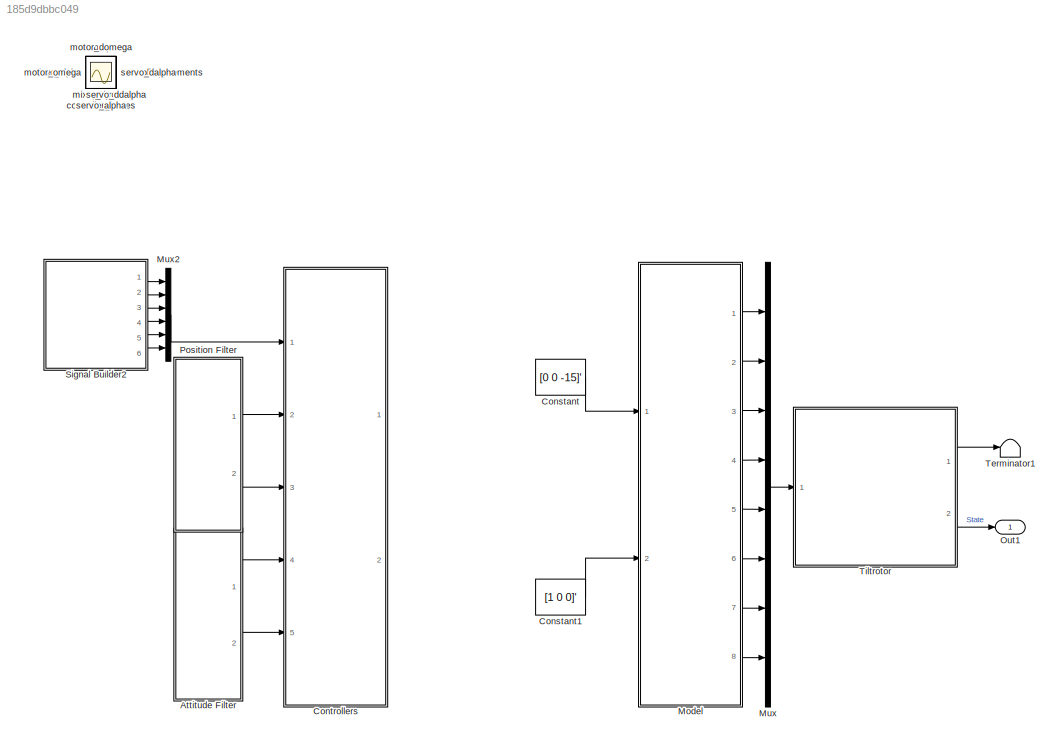
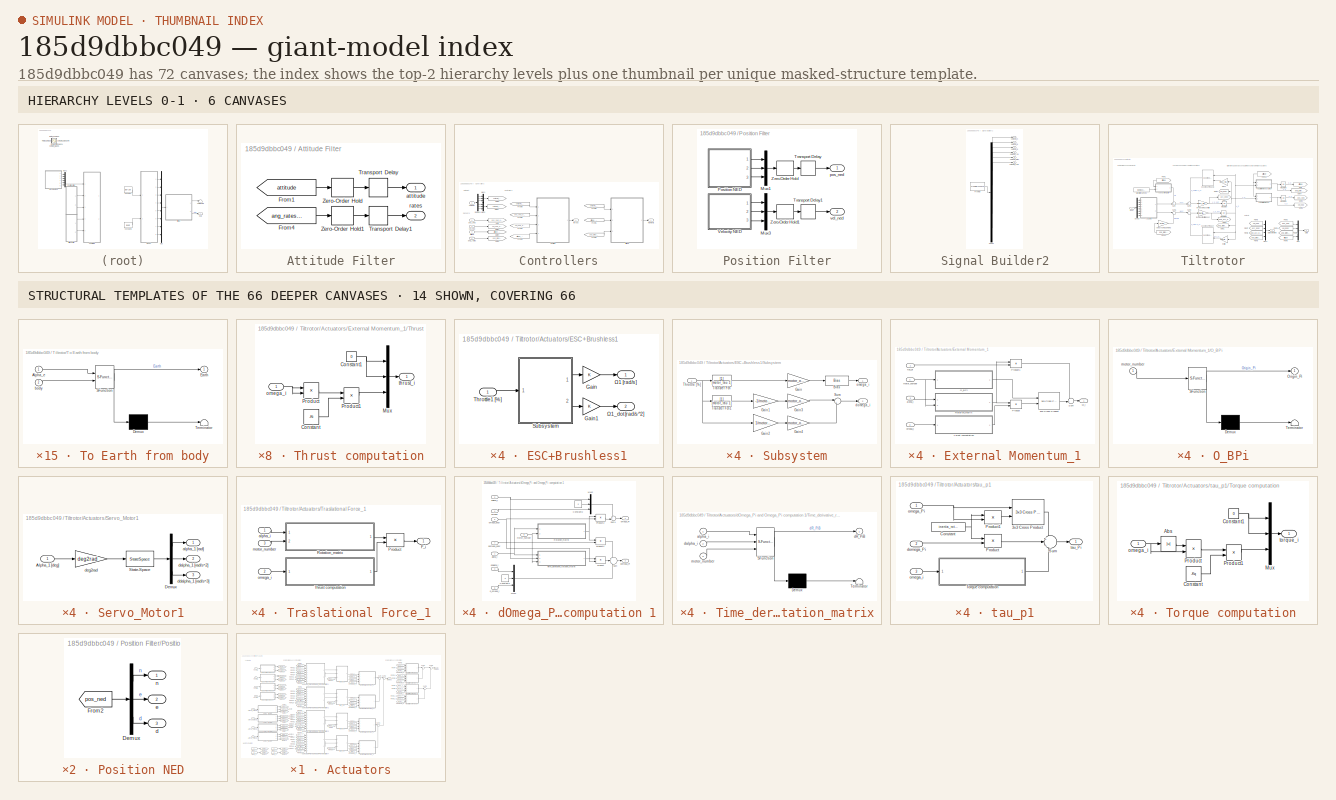
[diagram: thumbnail index - top-2 hierarchy levels (6 canvases) + 14 structural-template representatives of the remaining 66 canvases]
MODEL slx_185d9dbbc049
KIND model
CONFIG AbsTol = auto
CONFIG EnableMultiTasking = on
CONFIG FixedStep = auto
CONFIG InitFcn = Parameters_physical_tiltrotor
CONFIG MaxStep = auto
CONFIG MinStep = auto
CONFIG RelTol = 1e-3
CONFIG SampleTimeConstraint = Unconstrained
CONFIG Solver = ode45
CONFIG SolverName = ode45
CONFIG StartTime = 0.0
CONFIG StopTime = simulation_time
BLOCK [SubSystem] Attitude Filter
  Ports = [0, 2]
  RequestExecContextInheritance = off
  Variant = off
BLOCK [From] Attitude Filter/From1
  GotoTag = attitude
  TagVisibility = global
BLOCK [From] Attitude Filter/From4
  GotoTag = ang_rates_body
  TagVisibility = global
BLOCK [TransportDelay] Attitude Filter/Transport Delay
  DelayTime = delay_attitude * sample_time
  Ports = [1, 1]
BLOCK [TransportDelay] Attitude Filter/Transport Delay1
  DelayTime = delay_attitude * sample_time
  Ports = [1, 1]
BLOCK [ZeroOrderHold] Attitude Filter/Zero-Order Hold
  SampleTime = sample_time
BLOCK [ZeroOrderHold] Attitude Filter/Zero-Order Hold1
  SampleTime = sample_time
BLOCK [Outport] Attitude Filter/attitude
  IconDisplay = Port number
  PortDimensions = 3
BLOCK [Outport] Attitude Filter/rates
  IconDisplay = Port number
  Port = 2
  PortDimensions = 3
BLOCK [Constant] Constant
  Value = [0 0 -15]'
BLOCK [Constant] Constant1
  Value = [1 0 0]'
BLOCK [SubSystem] Controllers
  Ports = [5, 2]
  RequestExecContextInheritance = off
  Variant = off
BLOCK [ModelReference] Controllers/Attitude
  ModelNameDialog = Attitude.slx
  ModelReferenceVersion = 1.169
  Ports = [3, 1]
  Variant = off
BLOCK [Demux] Controllers/Demux1
  DisplayOption = bar
  Outputs = 6
  Ports = [1, 6]
BLOCK [From] Controllers/From1
  GotoTag = attitude_est
BLOCK [From] Controllers/From2
  GotoTag = ang_rates_est
BLOCK [From] Controllers/From3
  GotoTag = attitude_est
BLOCK [From] Controllers/From4
  GotoTag = vel_ned_est
BLOCK [From] Controllers/From5
  GotoTag = pos_ned_est
BLOCK [From] Controllers/From6
  GotoTag = setpoint_attitude
BLOCK [From] Controllers/From9
  GotoTag = setpoint_pos_ned
BLOCK [Goto] Controllers/Goto
  GotoTag = pos_ned_est
BLOCK [Goto] Controllers/Goto1
  GotoTag = vel_ned_est
BLOCK [Goto] Controllers/Goto4
  GotoTag = attitude_est
BLOCK [Goto] Controllers/Goto5
  GotoTag = ang_rates_est
BLOCK [Goto] Controllers/Goto6
  GotoTag = setpoint_pos_ned
BLOCK [Goto] Controllers/Goto7
  GotoTag = setpoint_attitude
BLOCK [Mux] Controllers/Mux1
  DisplayOption = bar
  Inputs = 3
  Ports = [3, 1]
BLOCK [Mux] Controllers/Mux2
  DisplayOption = bar
  Inputs = 3
  Ports = [3, 1]
BLOCK [ModelReference] Controllers/Position
  ModelNameDialog = Position.slx
  ModelReferenceVersion = 1.302
  Ports = [4, 1]
  Variant = off
BLOCK [Inport] Controllers/ang_rates
  IconDisplay = Port number
  Port = 5
  PortDimensions = 3
BLOCK [Inport] Controllers/attitude
  IconDisplay = Port number
  Port = 4
  PortDimensions = 3
BLOCK [Outport] Controllers/forces
  IconDisplay = Port number
BLOCK [Outport] Controllers/moments
  IconDisplay = Port number
  Port = 2
  PortDimensions = 3
BLOCK [Inport] Controllers/pos_ned
  IconDisplay = Port number
  Port = 2
  PortDimensions = 3
BLOCK [Inport] Controllers/setpoint
  IconDisplay = Port number
  PortDimensions = 6
BLOCK [Inport] Controllers/vel_ned
  IconDisplay = Port number
  Port = 3
  PortDimensions = 3
BLOCK [Scope] Fprops
  IOType = viewer
  NumInputPorts = 1
  Ports = []
  ScopeSpecificationString = Simulink.scopes.TimeScopeBlockCfg('CurrentConfiguration', extmgr.ConfigurationSet(extmgr.Configuration('Core','General UI',true),extmgr.Configuration('Core','Source UI',true),extmgr.Configuration('Sources','WiredSimulink',true),extmgr.Configuration('Visuals','Time Domain',true,'SerializedDisplays',{struct('MinYLimReal','-16.875','MaxYLimReal','1.875','YLabelReal','','MinYLimMag','0.00000','MaxYLim...<+1390ch>
BLOCK [ModelReference] Model
  ModelNameDialog = Wheighted_mixer.slx
  ModelReferenceVersion = 1.41
  Ports = [2, 8]
  Variant = off
BLOCK [Scope] Mprops
  IOType = viewer
  NumInputPorts = 1
  Ports = []
  ScopeSpecificationString = Simulink.scopes.TimeScopeBlockCfg('CurrentConfiguration', extmgr.ConfigurationSet(extmgr.Configuration('Core','General UI',true),extmgr.Configuration('Core','Source UI',true),extmgr.Configuration('Sources','WiredSimulink',true,'DataLoggingVariableName','ScopeData1'),extmgr.Configuration('Visuals','Time Domain',true,'SerializedDisplays',{struct('MinYLimReal','-0.14833','MaxYLimReal','1.12711','YLab...<+1450ch>
BLOCK [Mux] Mux
  DisplayOption = bar
  Inputs = 8
  Ports = [8, 1]
BLOCK [Mux] Mux2
  DisplayOption = bar
  Inputs = 6
  Ports = [6, 1]
BLOCK [Outport] Out1
  IconDisplay = Port number
BLOCK [SubSystem] Position Filter
  Ports = [0, 2]
  RequestExecContextInheritance = off
  Variant = off
BLOCK [Mux] Position Filter/Mux1
  DisplayOption = bar
  Inputs = 3
  Ports = [3, 1]
BLOCK [Mux] Position Filter/Mux3
  DisplayOption = bar
  Inputs = 3
  Ports = [3, 1]
BLOCK [SubSystem] Position Filter/Position NED
  Ports = [0, 3]
  RequestExecContextInheritance = off
  Variant = off
BLOCK [Demux] Position Filter/Position NED/Demux
  DisplayOption = bar
  Outputs = 3
  Ports = [1, 3]
BLOCK [From] Position Filter/Position NED/From2
  GotoTag = pos_ned
  TagVisibility = global
BLOCK [Outport] Position Filter/Position NED/d
  IconDisplay = Port number
  Port = 3
BLOCK [Outport] Position Filter/Position NED/e
  IconDisplay = Port number
  Port = 2
BLOCK [Outport] Position Filter/Position NED/n
  IconDisplay = Port number
BLOCK [TransportDelay] Position Filter/Transport Delay
  DelayTime = delay_position * sample_time
  Ports = [1, 1]
BLOCK [TransportDelay] Position Filter/Transport Delay1
  DelayTime = delay_position * sample_time
  Ports = [1, 1]
BLOCK [SubSystem] Position Filter/Velocity NED
  Ports = [0, 3]
  RequestExecContextInheritance = off
  Variant = off
BLOCK [Demux] Position Filter/Velocity NED/Demux
  DisplayOption = bar
  Outputs = 3
  Ports = [1, 3]
BLOCK [From] Position Filter/Velocity NED/From2
  GotoTag = vel_ned
  TagVisibility = global
BLOCK [Outport] Position Filter/Velocity NED/d_vel
  IconDisplay = Port number
  Port = 3
BLOCK [Outport] Position Filter/Velocity NED/e_vel
  IconDisplay = Port number
  Port = 2
BLOCK [Outport] Position Filter/Velocity NED/n_vel
  IconDisplay = Port number
BLOCK [ZeroOrderHold] Position Filter/Zero-Order Hold
  SampleTime = sample_time
BLOCK [ZeroOrderHold] Position Filter/Zero-Order Hold1
  SampleTime = sample_time
BLOCK [Outport] Position Filter/pos_ned
  IconDisplay = Port number
  PortDimensions = 3
BLOCK [Outport] Position Filter/vel_ned
  IconDisplay = Port number
  Port = 2
  PortDimensions = 3
BLOCK [SubSystem] Signal Builder2
  ClipboardFcn = sigbuilder_block('clipboard');
  CloseFcn = sigbuilder_block('close');
  ContinueFcn = sigbuilder_block('continue');
  CopyFcn = sigbuilder_block('copy');
  DeleteFcn = sigbuilder_block('delete');
  LoadFcn = sigbuilder_block('load');
  MaskHideContents = on
  ModelCloseFcn = sigbuilder_block('modelClose');
  NameChangeFcn = sigbuilder_block('namechange');
  OpenFcn = sigbuilder_block('open',[6 30 1012.5 447.75 ]);
  PauseFcn = sigbuilder_block('pause');
  Ports = [0, 6]
  PreSaveFcn = sigbuilder_block('preSave');
  RequestExecContextInheritance = off
  StartFcn = sigbuilder_block('start');
  StopFcn = sigbuilder_block('stop');
  Tag = STV Subsys
  Variant = off
BLOCK [Demux] Signal Builder2/Demux
  Outputs = 6
  Ports = [1, 6]
  Tag = STV Demux
BLOCK [FromWorkspace] Signal Builder2/FromWs
  SampleTime = 0
  Tag = STV FromWs
  VariableName = tuvar
  ZeroCross = on
BLOCK [Outport] Signal Builder2/setpoint_d
  IconDisplay = Port number
  Port = 3
  Tag = STV Outport
BLOCK [Outport] Signal Builder2/setpoint_e
  IconDisplay = Port number
  Port = 2
  Tag = STV Outport
BLOCK [Outport] Signal Builder2/setpoint_n
  IconDisplay = Port number
  Tag = STV Outport
BLOCK [Outport] Signal Builder2/setpoint_pitch
  IconDisplay = Port number
  Port = 5
  Tag = STV Outport
BLOCK [Outport] Signal Builder2/setpoint_roll 
  IconDisplay = Port number
  Port = 4
  Tag = STV Outport
BLOCK [Outport] Signal Builder2/setpoint_yaw
  IconDisplay = Port number
  Port = 6
  Tag = STV Outport
BLOCK [Terminator] Terminator1
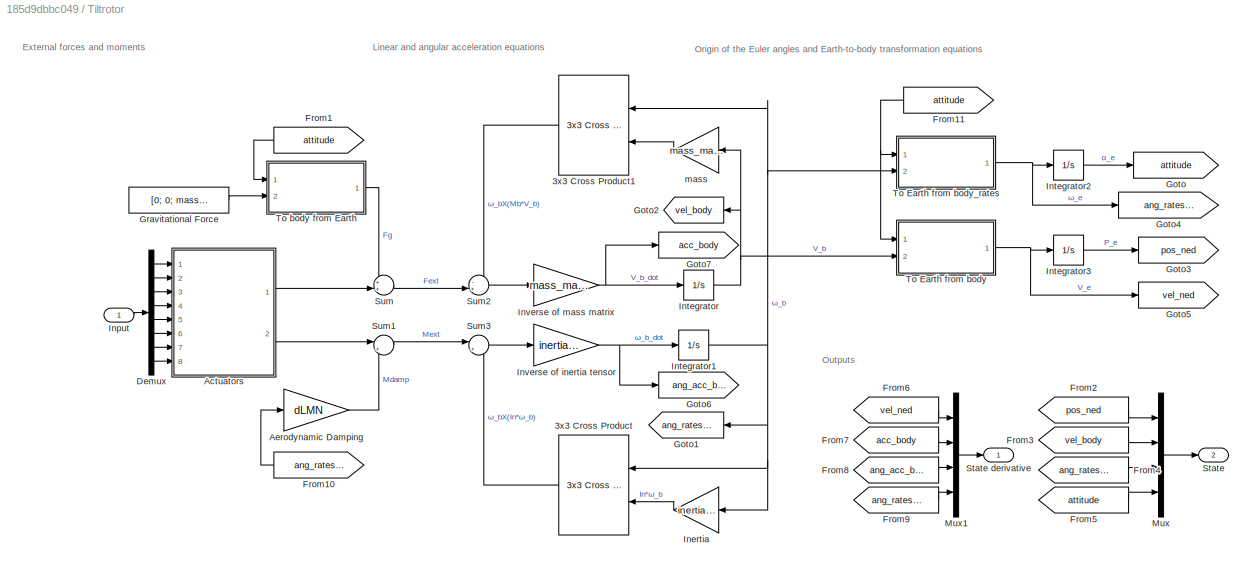
BLOCK [SubSystem] Tiltrotor
  Ports = [1, 2]
  RequestExecContextInheritance = off
  Variant = off
BLOCK [Reference] Tiltrotor/3x3 Cross Product  REF=aerolibutil/3x3 Cross Product
  Ports = [2, 1]
  SourceBlock = aerolibutil/3x3 Cross Product
  SourceType = CrossProduct
BLOCK [Reference] Tiltrotor/3x3 Cross Product1  REF=aerolibutil/3x3 Cross Product
  Ports = [2, 1]
  SourceBlock = aerolibutil/3x3 Cross Product
  SourceType = CrossProduct
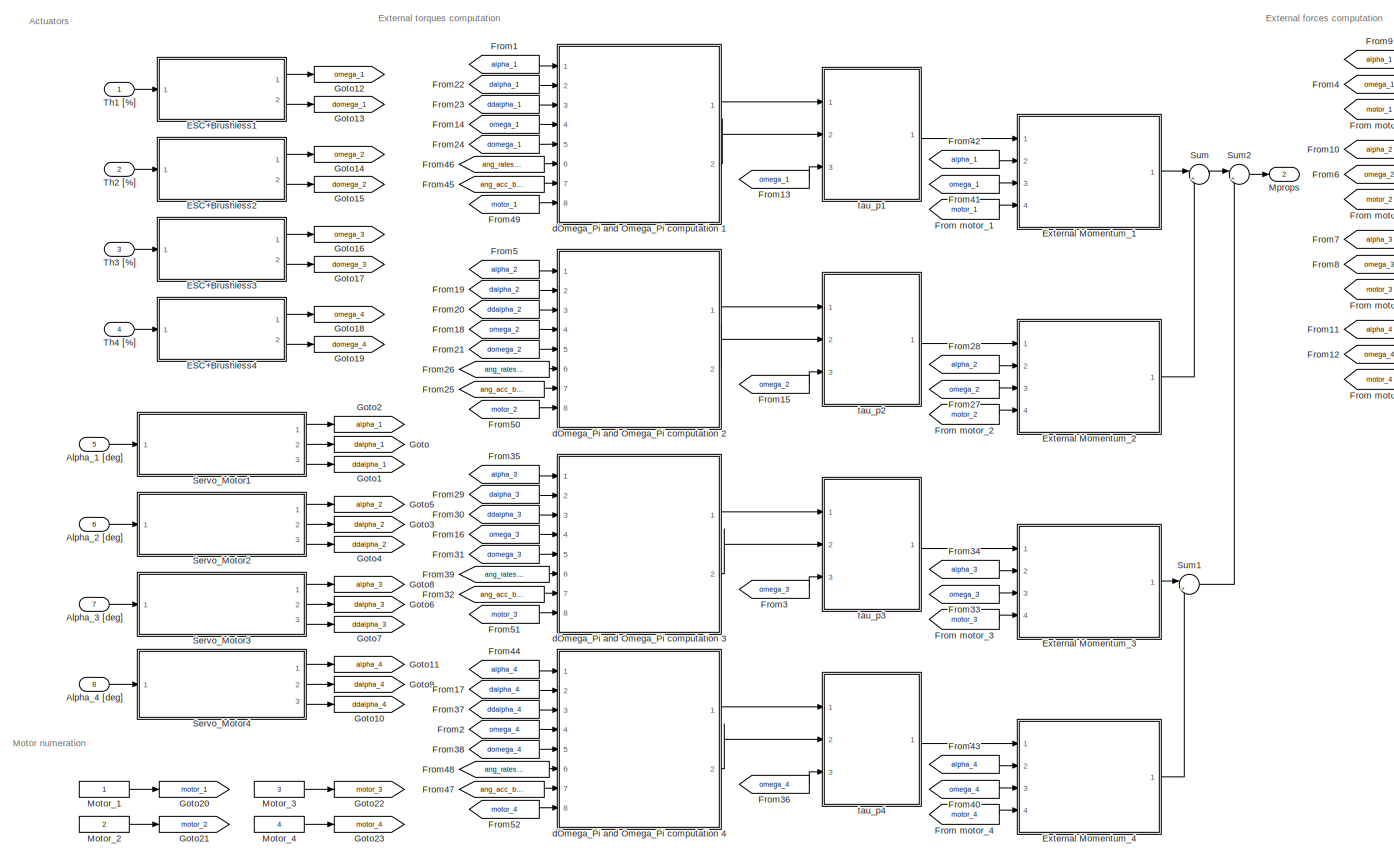
[diagram: Tiltrotor/Actuators - part 1/2, most of the canvas]
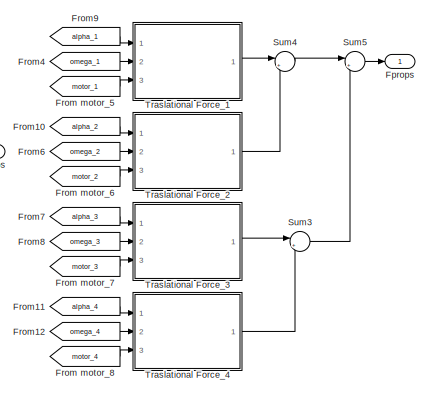
[diagram: Tiltrotor/Actuators - part 2/2, top right region]
BLOCK [SubSystem] Tiltrotor/Actuators
  Ports = [8, 2]
  RequestExecContextInheritance = off
  Variant = off
BLOCK [Inport] Tiltrotor/Actuators/Alpha_1 [deg]
  IconDisplay = Port number
  Port = 5
BLOCK [Inport] Tiltrotor/Actuators/Alpha_2 [deg]
  IconDisplay = Port number
  Port = 6
BLOCK [Inport] Tiltrotor/Actuators/Alpha_3 [deg]
  IconDisplay = Port number
  Port = 7
BLOCK [Inport] Tiltrotor/Actuators/Alpha_4 [deg]
  IconDisplay = Port number
  Port = 8
BLOCK [SubSystem] Tiltrotor/Actuators/ESC+Brushless1
  Ports = [1, 2]
  RequestExecContextInheritance = off
  Variant = off
BLOCK [Gain] Tiltrotor/Actuators/ESC+Brushless1/Gain
  OutDataTypeStr = Inherit: Inherit via internal rule
  ParamDataTypeStr = Inherit: Inherit via internal rule
  SaturateOnIntegerOverflow = off
BLOCK [Gain] Tiltrotor/Actuators/ESC+Brushless1/Gain1
  OutDataTypeStr = Inherit: Inherit via internal rule
  ParamDataTypeStr = Inherit: Inherit via internal rule
  SaturateOnIntegerOverflow = off
BLOCK [SubSystem] Tiltrotor/Actuators/ESC+Brushless1/Subsystem
  Ports = [1, 2]
  RequestExecContextInheritance = off
  Variant = off
BLOCK [Bias] Tiltrotor/Actuators/ESC+Brushless1/Subsystem/Bias
  Bias = motor_ome_vs_throttle(2)
  SaturateOnIntegerOverflow = off
BLOCK [Gain] Tiltrotor/Actuators/ESC+Brushless1/Subsystem/Gain
  Gain = motor_ome_vs_throttle(1)
  OutDataTypeStr = Inherit: Inherit via internal rule
  ParamDataTypeStr = Inherit: Inherit via internal rule
  SaturateOnIntegerOverflow = off
BLOCK [Gain] Tiltrotor/Actuators/ESC+Brushless1/Subsystem/Gain1
  Gain = -1/motor_tau
  OutDataTypeStr = Inherit: Inherit via internal rule
  ParamDataTypeStr = Inherit: Inherit via internal rule
  SaturateOnIntegerOverflow = off
BLOCK [Gain] Tiltrotor/Actuators/ESC+Brushless1/Subsystem/Gain2
  Gain = 1/motor_tau
  OutDataTypeStr = Inherit: Inherit via internal rule
  ParamDataTypeStr = Inherit: Inherit via internal rule
  SaturateOnIntegerOverflow = off
BLOCK [Gain] Tiltrotor/Actuators/ESC+Brushless1/Subsystem/Gain3
  Gain = motor_ome_vs_throttle(1)
  OutDataTypeStr = Inherit: Inherit via internal rule
  ParamDataTypeStr = Inherit: Inherit via internal rule
  SaturateOnIntegerOverflow = off
BLOCK [Gain] Tiltrotor/Actuators/ESC+Brushless1/Subsystem/Gain4
  Gain = motor_ome_vs_throttle(1)
  OutDataTypeStr = Inherit: Inherit via internal rule
  ParamDataTypeStr = Inherit: Inherit via internal rule
  SaturateOnIntegerOverflow = off
BLOCK [Sum] Tiltrotor/Actuators/ESC+Brushless1/Subsystem/Sum
  IconShape = round
  InputSameDT = off
  Inputs = |++
  OutDataTypeStr = Inherit: Inherit via internal rule
  Ports = [2, 1]
  SaturateOnIntegerOverflow = off
BLOCK [Inport] Tiltrotor/Actuators/ESC+Brushless1/Subsystem/Throttle [%]
  IconDisplay = Port number
BLOCK [TransferFcn] Tiltrotor/Actuators/ESC+Brushless1/Subsystem/Transfer Fcn
  Denominator = [motor_tau 1]
BLOCK [TransferFcn] Tiltrotor/Actuators/ESC+Brushless1/Subsystem/Transfer Fcn1
  Denominator = [motor_tau 1]
BLOCK [Outport] Tiltrotor/Actuators/ESC+Brushless1/Subsystem/domega_i
  IconDisplay = Port number
  Port = 2
BLOCK [Outport] Tiltrotor/Actuators/ESC+Brushless1/Subsystem/omega_i
  IconDisplay = Port number
BLOCK [Inport] Tiltrotor/Actuators/ESC+Brushless1/Throttle1 [%]
  IconDisplay = Port number
BLOCK [Outport] Tiltrotor/Actuators/ESC+Brushless1/Ω1 [rad//s]
  IconDisplay = Port number
BLOCK [Outport] Tiltrotor/Actuators/ESC+Brushless1/Ω1_dot [rad//s^2]
  IconDisplay = Port number
  Port = 2
BLOCK [SubSystem] Tiltrotor/Actuators/ESC+Brushless2
  Ports = [1, 2]
  RequestExecContextInheritance = off
  Variant = off
BLOCK [Gain] Tiltrotor/Actuators/ESC+Brushless2/Gain
  Gain = -1
  OutDataTypeStr = Inherit: Inherit via internal rule
  ParamDataTypeStr = Inherit: Inherit via internal rule
  SaturateOnIntegerOverflow = off
BLOCK [Gain] Tiltrotor/Actuators/ESC+Brushless2/Gain1
  Gain = -1
  OutDataTypeStr = Inherit: Inherit via internal rule
  ParamDataTypeStr = Inherit: Inherit via internal rule
  SaturateOnIntegerOverflow = off
BLOCK [SubSystem] Tiltrotor/Actuators/ESC+Brushless2/Subsystem
  Ports = [1, 2]
  RequestExecContextInheritance = off
  Variant = off
BLOCK [Bias] Tiltrotor/Actuators/ESC+Brushless2/Subsystem/Bias
  Bias = motor_ome_vs_throttle(2)
  SaturateOnIntegerOverflow = off
BLOCK [Gain] Tiltrotor/Actuators/ESC+Brushless2/Subsystem/Gain
  Gain = motor_ome_vs_throttle(1)
  OutDataTypeStr = Inherit: Inherit via internal rule
  ParamDataTypeStr = Inherit: Inherit via internal rule
  SaturateOnIntegerOverflow = off
BLOCK [Gain] Tiltrotor/Actuators/ESC+Brushless2/Subsystem/Gain1
  Gain = -1/motor_tau
  OutDataTypeStr = Inherit: Inherit via internal rule
  ParamDataTypeStr = Inherit: Inherit via internal rule
  SaturateOnIntegerOverflow = off
BLOCK [Gain] Tiltrotor/Actuators/ESC+Brushless2/Subsystem/Gain2
  Gain = 1/motor_tau
  OutDataTypeStr = Inherit: Inherit via internal rule
  ParamDataTypeStr = Inherit: Inherit via internal rule
  SaturateOnIntegerOverflow = off
BLOCK [Gain] Tiltrotor/Actuators/ESC+Brushless2/Subsystem/Gain3
  Gain = motor_ome_vs_throttle(1)
  OutDataTypeStr = Inherit: Inherit via internal rule
  ParamDataTypeStr = Inherit: Inherit via internal rule
  SaturateOnIntegerOverflow = off
BLOCK [Gain] Tiltrotor/Actuators/ESC+Brushless2/Subsystem/Gain4
  Gain = motor_ome_vs_throttle(1)
  OutDataTypeStr = Inherit: Inherit via internal rule
  ParamDataTypeStr = Inherit: Inherit via internal rule
  SaturateOnIntegerOverflow = off
BLOCK [Sum] Tiltrotor/Actuators/ESC+Brushless2/Subsystem/Sum
  IconShape = round
  InputSameDT = off
  Inputs = |++
  OutDataTypeStr = Inherit: Inherit via internal rule
  Ports = [2, 1]
  SaturateOnIntegerOverflow = off
BLOCK [Inport] Tiltrotor/Actuators/ESC+Brushless2/Subsystem/Throttle [%]
  IconDisplay = Port number
BLOCK [TransferFcn] Tiltrotor/Actuators/ESC+Brushless2/Subsystem/Transfer Fcn
  Denominator = [motor_tau 1]
BLOCK [TransferFcn] Tiltrotor/Actuators/ESC+Brushless2/Subsystem/Transfer Fcn1
  Denominator = [motor_tau 1]
BLOCK [Outport] Tiltrotor/Actuators/ESC+Brushless2/Subsystem/domega_i
  IconDisplay = Port number
  Port = 2
BLOCK [Outport] Tiltrotor/Actuators/ESC+Brushless2/Subsystem/omega_i
  IconDisplay = Port number
BLOCK [Inport] Tiltrotor/Actuators/ESC+Brushless2/Throttle2 [%]
  IconDisplay = Port number
BLOCK [Outport] Tiltrotor/Actuators/ESC+Brushless2/Ω2 [rad//s]
  IconDisplay = Port number
BLOCK [Outport] Tiltrotor/Actuators/ESC+Brushless2/Ω2_dot [rad//s^2]
  IconDisplay = Port number
  Port = 2
BLOCK [SubSystem] Tiltrotor/Actuators/ESC+Brushless3
  Ports = [1, 2]
  RequestExecContextInheritance = off
  Variant = off
BLOCK [Gain] Tiltrotor/Actuators/ESC+Brushless3/Gain
  OutDataTypeStr = Inherit: Inherit via internal rule
  ParamDataTypeStr = Inherit: Inherit via internal rule
  SaturateOnIntegerOverflow = off
BLOCK [Gain] Tiltrotor/Actuators/ESC+Brushless3/Gain1
  OutDataTypeStr = Inherit: Inherit via internal rule
  ParamDataTypeStr = Inherit: Inherit via internal rule
  SaturateOnIntegerOverflow = off
BLOCK [SubSystem] Tiltrotor/Actuators/ESC+Brushless3/Subsystem
  Ports = [1, 2]
  RequestExecContextInheritance = off
  Variant = off
BLOCK [Bias] Tiltrotor/Actuators/ESC+Brushless3/Subsystem/Bias
  Bias = motor_ome_vs_throttle(2)
  SaturateOnIntegerOverflow = off
BLOCK [Gain] Tiltrotor/Actuators/ESC+Brushless3/Subsystem/Gain
  Gain = motor_ome_vs_throttle(1)
  OutDataTypeStr = Inherit: Inherit via internal rule
  ParamDataTypeStr = Inherit: Inherit via internal rule
  SaturateOnIntegerOverflow = off
BLOCK [Gain] Tiltrotor/Actuators/ESC+Brushless3/Subsystem/Gain1
  Gain = -1/motor_tau
  OutDataTypeStr = Inherit: Inherit via internal rule
  ParamDataTypeStr = Inherit: Inherit via internal rule
  SaturateOnIntegerOverflow = off
BLOCK [Gain] Tiltrotor/Actuators/ESC+Brushless3/Subsystem/Gain2
  Gain = 1/motor_tau
  OutDataTypeStr = Inherit: Inherit via internal rule
  ParamDataTypeStr = Inherit: Inherit via internal rule
  SaturateOnIntegerOverflow = off
BLOCK [Gain] Tiltrotor/Actuators/ESC+Brushless3/Subsystem/Gain3
  Gain = motor_ome_vs_throttle(1)
  OutDataTypeStr = Inherit: Inherit via internal rule
  ParamDataTypeStr = Inherit: Inherit via internal rule
  SaturateOnIntegerOverflow = off
BLOCK [Gain] Tiltrotor/Actuators/ESC+Brushless3/Subsystem/Gain4
  Gain = motor_ome_vs_throttle(1)
  OutDataTypeStr = Inherit: Inherit via internal rule
  ParamDataTypeStr = Inherit: Inherit via internal rule
  SaturateOnIntegerOverflow = off
BLOCK [Sum] Tiltrotor/Actuators/ESC+Brushless3/Subsystem/Sum
  IconShape = round
  InputSameDT = off
  Inputs = |++
  OutDataTypeStr = Inherit: Inherit via internal rule
  Ports = [2, 1]
  SaturateOnIntegerOverflow = off
BLOCK [Inport] Tiltrotor/Actuators/ESC+Brushless3/Subsystem/Throttle [%]
  IconDisplay = Port number
BLOCK [TransferFcn] Tiltrotor/Actuators/ESC+Brushless3/Subsystem/Transfer Fcn
  Denominator = [motor_tau 1]
BLOCK [TransferFcn] Tiltrotor/Actuators/ESC+Brushless3/Subsystem/Transfer Fcn1
  Denominator = [motor_tau 1]
BLOCK [Outport] Tiltrotor/Actuators/ESC+Brushless3/Subsystem/domega_i
  IconDisplay = Port number
  Port = 2
BLOCK [Outport] Tiltrotor/Actuators/ESC+Brushless3/Subsystem/omega_i
  IconDisplay = Port number
BLOCK [Inport] Tiltrotor/Actuators/ESC+Brushless3/Throttle3 [%]
  IconDisplay = Port number
BLOCK [Outport] Tiltrotor/Actuators/ESC+Brushless3/Ω3 [rad//s]
  IconDisplay = Port number
BLOCK [Outport] Tiltrotor/Actuators/ESC+Brushless3/Ω3_dot [rad//s^2]
  IconDisplay = Port number
  Port = 2
BLOCK [SubSystem] Tiltrotor/Actuators/ESC+Brushless4
  Ports = [1, 2]
  RequestExecContextInheritance = off
  Variant = off
BLOCK [Gain] Tiltrotor/Actuators/ESC+Brushless4/Gain
  Gain = -1
  OutDataTypeStr = Inherit: Inherit via internal rule
  ParamDataTypeStr = Inherit: Inherit via internal rule
  SaturateOnIntegerOverflow = off
BLOCK [Gain] Tiltrotor/Actuators/ESC+Brushless4/Gain1
  Gain = -1
  OutDataTypeStr = Inherit: Inherit via internal rule
  ParamDataTypeStr = Inherit: Inherit via internal rule
  SaturateOnIntegerOverflow = off
BLOCK [SubSystem] Tiltrotor/Actuators/ESC+Brushless4/Subsystem
  Ports = [1, 2]
  RequestExecContextInheritance = off
  Variant = off
BLOCK [Bias] Tiltrotor/Actuators/ESC+Brushless4/Subsystem/Bias
  Bias = motor_ome_vs_throttle(2)
  SaturateOnIntegerOverflow = off
BLOCK [Gain] Tiltrotor/Actuators/ESC+Brushless4/Subsystem/Gain
  Gain = motor_ome_vs_throttle(1)
  OutDataTypeStr = Inherit: Inherit via internal rule
  ParamDataTypeStr = Inherit: Inherit via internal rule
  SaturateOnIntegerOverflow = off
BLOCK [Gain] Tiltrotor/Actuators/ESC+Brushless4/Subsystem/Gain1
  Gain = -1/motor_tau
  OutDataTypeStr = Inherit: Inherit via internal rule
  ParamDataTypeStr = Inherit: Inherit via internal rule
  SaturateOnIntegerOverflow = off
BLOCK [Gain] Tiltrotor/Actuators/ESC+Brushless4/Subsystem/Gain2
  Gain = 1/motor_tau
  OutDataTypeStr = Inherit: Inherit via internal rule
  ParamDataTypeStr = Inherit: Inherit via internal rule
  SaturateOnIntegerOverflow = off
BLOCK [Gain] Tiltrotor/Actuators/ESC+Brushless4/Subsystem/Gain3
  Gain = motor_ome_vs_throttle(1)
  OutDataTypeStr = Inherit: Inherit via internal rule
  ParamDataTypeStr = Inherit: Inherit via internal rule
  SaturateOnIntegerOverflow = off
BLOCK [Gain] Tiltrotor/Actuators/ESC+Brushless4/Subsystem/Gain4
  Gain = motor_ome_vs_throttle(1)
  OutDataTypeStr = Inherit: Inherit via internal rule
  ParamDataTypeStr = Inherit: Inherit via internal rule
  SaturateOnIntegerOverflow = off
BLOCK [Sum] Tiltrotor/Actuators/ESC+Brushless4/Subsystem/Sum
  IconShape = round
  InputSameDT = off
  Inputs = |++
  OutDataTypeStr = Inherit: Inherit via internal rule
  Ports = [2, 1]
  SaturateOnIntegerOverflow = off
BLOCK [Inport] Tiltrotor/Actuators/ESC+Brushless4/Subsystem/Throttle [%]
  IconDisplay = Port number
BLOCK [TransferFcn] Tiltrotor/Actuators/ESC+Brushless4/Subsystem/Transfer Fcn
  Denominator = [motor_tau 1]
BLOCK [TransferFcn] Tiltrotor/Actuators/ESC+Brushless4/Subsystem/Transfer Fcn1
  Denominator = [motor_tau 1]
BLOCK [Outport] Tiltrotor/Actuators/ESC+Brushless4/Subsystem/domega_i
  IconDisplay = Port number
  Port = 2
BLOCK [Outport] Tiltrotor/Actuators/ESC+Brushless4/Subsystem/omega_i
  IconDisplay = Port number
BLOCK [Inport] Tiltrotor/Actuators/ESC+Brushless4/Throttle4 [%]
  IconDisplay = Port number
BLOCK [Outport] Tiltrotor/Actuators/ESC+Brushless4/Ω4 [rad//s]
  IconDisplay = Port number
BLOCK [Outport] Tiltrotor/Actuators/ESC+Brushless4/Ω4_dot [rad//s^2]
  IconDisplay = Port number
  Port = 2
BLOCK [SubSystem] Tiltrotor/Actuators/External Momentum_1
  Ports = [4, 1]
  RequestExecContextInheritance = off
  Variant = off
BLOCK [Reference] Tiltrotor/Actuators/External Momentum_1/3x3 Cross Product  REF=aerolibutil/3x3 Cross Product
  Ports = [2, 1]
  SourceBlock = aerolibutil/3x3 Cross Product
  SourceType = CrossProduct
BLOCK [Outport] Tiltrotor/Actuators/External Momentum_1/M_i
  IconDisplay = Port number
BLOCK [SubSystem] Tiltrotor/Actuators/External Momentum_1/O_BPi
  ErrorFcn = Stateflow.Translate.translate
  PermitHierarchicalResolution = ExplicitOnly
  Ports = [1, 1]
  RequestExecContextInheritance = off
  SFBlockType = MATLAB Function
  TreatAsAtomicUnit = on
  Variant = off
BLOCK [Demux] Tiltrotor/Actuators/External Momentum_1/O_BPi/ Demux 
  Outputs = 1
  Ports = [1, 1]
BLOCK [S-Function] Tiltrotor/Actuators/External Momentum_1/O_BPi/ SFunction 
  EnableBusSupport = on
  FunctionName = sf_sfun
  Parameters = arm_length
  PortCounts = [1 2]
  Ports = [1, 2]
  SFcnIsStateOwnerBlock = off
  SFunctionDeploymentMode = off
  Tag = Stateflow S-Function Simulator_tiltrotor 18
BLOCK [Terminator] Tiltrotor/Actuators/External Momentum_1/O_BPi/ Terminator 
BLOCK [Outport] Tiltrotor/Actuators/External Momentum_1/O_BPi/Origin_Pi
  IconDisplay = Port number
BLOCK [Inport] Tiltrotor/Actuators/External Momentum_1/O_BPi/motor_number
  IconDisplay = Port number
BLOCK [Product] Tiltrotor/Actuators/External Momentum_1/Product
  InputSameDT = off
  Multiplication = Matrix(*)
  OutDataTypeStr = Inherit: Inherit via internal rule
  Ports = [2, 1]
  RndMeth = Floor
  SaturateOnIntegerOverflow = off
BLOCK [Product] Tiltrotor/Actuators/External Momentum_1/Product1
  InputSameDT = off
  Multiplication = Matrix(*)
  OutDataTypeStr = Inherit: Inherit via internal rule
  Ports = [2, 1]
  RndMeth = Floor
  SaturateOnIntegerOverflow = off
BLOCK [SubSystem] Tiltrotor/Actuators/External Momentum_1/Rotation_matrix
  ErrorFcn = Stateflow.Translate.translate
  PermitHierarchicalResolution = ExplicitOnly
  Ports = [2, 1]
  RequestExecContextInheritance = off
  SFBlockType = MATLAB Function
  TreatAsAtomicUnit = on
  Variant = off
BLOCK [Demux] Tiltrotor/Actuators/External Momentum_1/Rotation_matrix/ Demux 
  Outputs = 1
  Ports = [1, 1]
BLOCK [S-Function] Tiltrotor/Actuators/External Momentum_1/Rotation_matrix/ SFunction 
  EnableBusSupport = on
  FunctionName = sf_sfun
  PortCounts = [2 2]
  Ports = [2, 2]
  SFcnIsStateOwnerBlock = off
  SFunctionDeploymentMode = off
  Tag = Stateflow S-Function Simulator_tiltrotor 23
BLOCK [Terminator] Tiltrotor/Actuators/External Momentum_1/Rotation_matrix/ Terminator 
BLOCK [Outport] Tiltrotor/Actuators/External Momentum_1/Rotation_matrix/R_BPi
  IconDisplay = Port number
BLOCK [Inport] Tiltrotor/Actuators/External Momentum_1/Rotation_matrix/alpha_i
  IconDisplay = Port number
BLOCK [Inport] Tiltrotor/Actuators/External Momentum_1/Rotation_matrix/motor_number
  IconDisplay = Port number
  Port = 2
BLOCK [Sum] Tiltrotor/Actuators/External Momentum_1/Sum
  IconShape = round
  InputSameDT = off
  Inputs = -+|
  OutDataTypeStr = Inherit: Inherit via internal rule
  Ports = [2, 1]
  SaturateOnIntegerOverflow = off
BLOCK [SubSystem] Tiltrotor/Actuators/External Momentum_1/Thrust computation
  Ports = [1, 1]
  RequestExecContextInheritance = off
  Variant = off
BLOCK [Constant] Tiltrotor/Actuators/External Momentum_1/Thrust computation/Constant
  Value = -Kt
BLOCK [Constant] Tiltrotor/Actuators/External Momentum_1/Thrust computation/Constant1
  Value = 0
BLOCK [Mux] Tiltrotor/Actuators/External Momentum_1/Thrust computation/Mux
  DisplayOption = bar
  Inputs = 3
  Ports = [3, 1]
BLOCK [Product] Tiltrotor/Actuators/External Momentum_1/Thrust computation/Product
  InputSameDT = off
  OutDataTypeStr = Inherit: Inherit via internal rule
  Ports = [2, 1]
  RndMeth = Floor
  SaturateOnIntegerOverflow = off
BLOCK [Product] Tiltrotor/Actuators/External Momentum_1/Thrust computation/Product1
  InputSameDT = off
  OutDataTypeStr = Inherit: Inherit via internal rule
  Ports = [2, 1]
  RndMeth = Floor
  SaturateOnIntegerOverflow = off
BLOCK [Inport] Tiltrotor/Actuators/External Momentum_1/Thrust computation/omega_i
  IconDisplay = Port number
BLOCK [Outport] Tiltrotor/Actuators/External Momentum_1/Thrust computation/thrust_i
  IconDisplay = Port number
BLOCK [Inport] Tiltrotor/Actuators/External Momentum_1/alpha_i
  IconDisplay = Port number
  Port = 2
BLOCK [Inport] Tiltrotor/Actuators/External Momentum_1/motor_number
  IconDisplay = Port number
  Port = 4
BLOCK [Inport] Tiltrotor/Actuators/External Momentum_1/omega_i
  IconDisplay = Port number
  Port = 3
BLOCK [Inport] Tiltrotor/Actuators/External Momentum_1/tau_pi
  IconDisplay = Port number
BLOCK [SubSystem] Tiltrotor/Actuators/External Momentum_2
  Ports = [4, 1]
  RequestExecContextInheritance = off
  Variant = off
BLOCK [Reference] Tiltrotor/Actuators/External Momentum_2/3x3 Cross Product  REF=aerolibutil/3x3 Cross Product
  Ports = [2, 1]
  SourceBlock = aerolibutil/3x3 Cross Product
  SourceType = CrossProduct
BLOCK [Outport] Tiltrotor/Actuators/External Momentum_2/M_i
  IconDisplay = Port number
BLOCK [SubSystem] Tiltrotor/Actuators/External Momentum_2/O_BPi
  ErrorFcn = Stateflow.Translate.translate
  PermitHierarchicalResolution = ExplicitOnly
  Ports = [1, 1]
  RequestExecContextInheritance = off
  SFBlockType = MATLAB Function
  TreatAsAtomicUnit = on
  Variant = off
BLOCK [Demux] Tiltrotor/Actuators/External Momentum_2/O_BPi/ Demux 
  Outputs = 1
  Ports = [1, 1]
BLOCK [S-Function] Tiltrotor/Actuators/External Momentum_2/O_BPi/ SFunction 
  EnableBusSupport = on
  FunctionName = sf_sfun
  Parameters = arm_length
  PortCounts = [1 2]
  Ports = [1, 2]
  SFcnIsStateOwnerBlock = off
  SFunctionDeploymentMode = off
  Tag = Stateflow S-Function Simulator_tiltrotor 5
BLOCK [Terminator] Tiltrotor/Actuators/External Momentum_2/O_BPi/ Terminator 
BLOCK [Outport] Tiltrotor/Actuators/External Momentum_2/O_BPi/Origin_Pi
  IconDisplay = Port number
BLOCK [Inport] Tiltrotor/Actuators/External Momentum_2/O_BPi/motor_number
  IconDisplay = Port number
BLOCK [Product] Tiltrotor/Actuators/External Momentum_2/Product
  InputSameDT = off
  Multiplication = Matrix(*)
  OutDataTypeStr = Inherit: Inherit via internal rule
  Ports = [2, 1]
  RndMeth = Floor
  SaturateOnIntegerOverflow = off
BLOCK [Product] Tiltrotor/Actuators/External Momentum_2/Product1
  InputSameDT = off
  Multiplication = Matrix(*)
  OutDataTypeStr = Inherit: Inherit via internal rule
  Ports = [2, 1]
  RndMeth = Floor
  SaturateOnIntegerOverflow = off
BLOCK [SubSystem] Tiltrotor/Actuators/External Momentum_2/Rotation_matrix
  ErrorFcn = Stateflow.Translate.translate
  PermitHierarchicalResolution = ExplicitOnly
  Ports = [2, 1]
  RequestExecContextInheritance = off
  SFBlockType = MATLAB Function
  TreatAsAtomicUnit = on
  Variant = off
BLOCK [Demux] Tiltrotor/Actuators/External Momentum_2/Rotation_matrix/ Demux 
  Outputs = 1
  Ports = [1, 1]
BLOCK [S-Function] Tiltrotor/Actuators/External Momentum_2/Rotation_matrix/ SFunction 
  EnableBusSupport = on
  FunctionName = sf_sfun
  PortCounts = [2 2]
  Ports = [2, 2]
  SFcnIsStateOwnerBlock = off
  SFunctionDeploymentMode = off
  Tag = Stateflow S-Function Simulator_tiltrotor 6
BLOCK [Terminator] Tiltrotor/Actuators/External Momentum_2/Rotation_matrix/ Terminator 
BLOCK [Outport] Tiltrotor/Actuators/External Momentum_2/Rotation_matrix/R_BPi
  IconDisplay = Port number
BLOCK [Inport] Tiltrotor/Actuators/External Momentum_2/Rotation_matrix/alpha_i
  IconDisplay = Port number
BLOCK [Inport] Tiltrotor/Actuators/External Momentum_2/Rotation_matrix/motor_number
  IconDisplay = Port number
  Port = 2
BLOCK [Sum] Tiltrotor/Actuators/External Momentum_2/Sum
  IconShape = round
  InputSameDT = off
  Inputs = -+|
  OutDataTypeStr = Inherit: Inherit via internal rule
  Ports = [2, 1]
  SaturateOnIntegerOverflow = off
BLOCK [SubSystem] Tiltrotor/Actuators/External Momentum_2/Thrust computation
  Ports = [1, 1]
  RequestExecContextInheritance = off
  Variant = off
BLOCK [Constant] Tiltrotor/Actuators/External Momentum_2/Thrust computation/Constant
  Value = -Kt
BLOCK [Constant] Tiltrotor/Actuators/External Momentum_2/Thrust computation/Constant1
  Value = 0
BLOCK [Mux] Tiltrotor/Actuators/External Momentum_2/Thrust computation/Mux
  DisplayOption = bar
  Inputs = 3
  Ports = [3, 1]
BLOCK [Product] Tiltrotor/Actuators/External Momentum_2/Thrust computation/Product
  InputSameDT = off
  OutDataTypeStr = Inherit: Inherit via internal rule
  Ports = [2, 1]
  RndMeth = Floor
  SaturateOnIntegerOverflow = off
BLOCK [Product] Tiltrotor/Actuators/External Momentum_2/Thrust computation/Product1
  InputSameDT = off
  OutDataTypeStr = Inherit: Inherit via internal rule
  Ports = [2, 1]
  RndMeth = Floor
  SaturateOnIntegerOverflow = off
BLOCK [Inport] Tiltrotor/Actuators/External Momentum_2/Thrust computation/omega_i
  IconDisplay = Port number
BLOCK [Outport] Tiltrotor/Actuators/External Momentum_2/Thrust computation/thrust_i
  IconDisplay = Port number
BLOCK [Inport] Tiltrotor/Actuators/External Momentum_2/alpha_i
  IconDisplay = Port number
  Port = 2
BLOCK [Inport] Tiltrotor/Actuators/External Momentum_2/motor_number
  IconDisplay = Port number
  Port = 4
BLOCK [Inport] Tiltrotor/Actuators/External Momentum_2/omega_i
  IconDisplay = Port number
  Port = 3
BLOCK [Inport] Tiltrotor/Actuators/External Momentum_2/tau_pi
  IconDisplay = Port number
BLOCK [SubSystem] Tiltrotor/Actuators/External Momentum_3
  Ports = [4, 1]
  RequestExecContextInheritance = off
  Variant = off
BLOCK [Reference] Tiltrotor/Actuators/External Momentum_3/3x3 Cross Product  REF=aerolibutil/3x3 Cross Product
  Ports = [2, 1]
  SourceBlock = aerolibutil/3x3 Cross Product
  SourceType = CrossProduct
BLOCK [Outport] Tiltrotor/Actuators/External Momentum_3/M_i
  IconDisplay = Port number
BLOCK [SubSystem] Tiltrotor/Actuators/External Momentum_3/O_BPi
  ErrorFcn = Stateflow.Translate.translate
  PermitHierarchicalResolution = ExplicitOnly
  Ports = [1, 1]
  RequestExecContextInheritance = off
  SFBlockType = MATLAB Function
  TreatAsAtomicUnit = on
  Variant = off
BLOCK [Demux] Tiltrotor/Actuators/External Momentum_3/O_BPi/ Demux 
  Outputs = 1
  Ports = [1, 1]
BLOCK [S-Function] Tiltrotor/Actuators/External Momentum_3/O_BPi/ SFunction 
  EnableBusSupport = on
  FunctionName = sf_sfun
  Parameters = arm_length
  PortCounts = [1 2]
  Ports = [1, 2]
  SFcnIsStateOwnerBlock = off
  SFunctionDeploymentMode = off
  Tag = Stateflow S-Function Simulator_tiltrotor 9
BLOCK [Terminator] Tiltrotor/Actuators/External Momentum_3/O_BPi/ Terminator 
BLOCK [Outport] Tiltrotor/Actuators/External Momentum_3/O_BPi/Origin_Pi
  IconDisplay = Port number
BLOCK [Inport] Tiltrotor/Actuators/External Momentum_3/O_BPi/motor_number
  IconDisplay = Port number
BLOCK [Product] Tiltrotor/Actuators/External Momentum_3/Product
  InputSameDT = off
  Multiplication = Matrix(*)
  OutDataTypeStr = Inherit: Inherit via internal rule
  Ports = [2, 1]
  RndMeth = Floor
  SaturateOnIntegerOverflow = off
BLOCK [Product] Tiltrotor/Actuators/External Momentum_3/Product1
  InputSameDT = off
  Multiplication = Matrix(*)
  OutDataTypeStr = Inherit: Inherit via internal rule
  Ports = [2, 1]
  RndMeth = Floor
  SaturateOnIntegerOverflow = off
BLOCK [SubSystem] Tiltrotor/Actuators/External Momentum_3/Rotation_matrix
  ErrorFcn = Stateflow.Translate.translate
  PermitHierarchicalResolution = ExplicitOnly
  Ports = [2, 1]
  RequestExecContextInheritance = off
  SFBlockType = MATLAB Function
  TreatAsAtomicUnit = on
  Variant = off
BLOCK [Demux] Tiltrotor/Actuators/External Momentum_3/Rotation_matrix/ Demux 
  Outputs = 1
  Ports = [1, 1]
BLOCK [S-Function] Tiltrotor/Actuators/External Momentum_3/Rotation_matrix/ SFunction 
  EnableBusSupport = on
  FunctionName = sf_sfun
  PortCounts = [2 2]
  Ports = [2, 2]
  SFcnIsStateOwnerBlock = off
  SFunctionDeploymentMode = off
  Tag = Stateflow S-Function Simulator_tiltrotor 10
BLOCK [Terminator] Tiltrotor/Actuators/External Momentum_3/Rotation_matrix/ Terminator 
BLOCK [Outport] Tiltrotor/Actuators/External Momentum_3/Rotation_matrix/R_BPi
  IconDisplay = Port number
BLOCK [Inport] Tiltrotor/Actuators/External Momentum_3/Rotation_matrix/alpha_i
  IconDisplay = Port number
BLOCK [Inport] Tiltrotor/Actuators/External Momentum_3/Rotation_matrix/motor_number
  IconDisplay = Port number
  Port = 2
BLOCK [Sum] Tiltrotor/Actuators/External Momentum_3/Sum
  IconShape = round
  InputSameDT = off
  Inputs = -+|
  OutDataTypeStr = Inherit: Inherit via internal rule
  Ports = [2, 1]
  SaturateOnIntegerOverflow = off
BLOCK [SubSystem] Tiltrotor/Actuators/External Momentum_3/Thrust computation
  Ports = [1, 1]
  RequestExecContextInheritance = off
  Variant = off
BLOCK [Constant] Tiltrotor/Actuators/External Momentum_3/Thrust computation/Constant
  Value = -Kt
BLOCK [Constant] Tiltrotor/Actuators/External Momentum_3/Thrust computation/Constant1
  Value = 0
BLOCK [Mux] Tiltrotor/Actuators/External Momentum_3/Thrust computation/Mux
  DisplayOption = bar
  Inputs = 3
  Ports = [3, 1]
BLOCK [Product] Tiltrotor/Actuators/External Momentum_3/Thrust computation/Product
  InputSameDT = off
  OutDataTypeStr = Inherit: Inherit via internal rule
  Ports = [2, 1]
  RndMeth = Floor
  SaturateOnIntegerOverflow = off
BLOCK [Product] Tiltrotor/Actuators/External Momentum_3/Thrust computation/Product1
  InputSameDT = off
  OutDataTypeStr = Inherit: Inherit via internal rule
  Ports = [2, 1]
  RndMeth = Floor
  SaturateOnIntegerOverflow = off
BLOCK [Inport] Tiltrotor/Actuators/External Momentum_3/Thrust computation/omega_i
  IconDisplay = Port number
BLOCK [Outport] Tiltrotor/Actuators/External Momentum_3/Thrust computation/thrust_i
  IconDisplay = Port number
BLOCK [Inport] Tiltrotor/Actuators/External Momentum_3/alpha_i
  IconDisplay = Port number
  Port = 2
BLOCK [Inport] Tiltrotor/Actuators/External Momentum_3/motor_number
  IconDisplay = Port number
  Port = 4
BLOCK [Inport] Tiltrotor/Actuators/External Momentum_3/omega_i
  IconDisplay = Port number
  Port = 3
BLOCK [Inport] Tiltrotor/Actuators/External Momentum_3/tau_pi
  IconDisplay = Port number
BLOCK [SubSystem] Tiltrotor/Actuators/External Momentum_4
  Ports = [4, 1]
  RequestExecContextInheritance = off
  Variant = off
BLOCK [Reference] Tiltrotor/Actuators/External Momentum_4/3x3 Cross Product  REF=aerolibutil/3x3 Cross Product
  Ports = [2, 1]
  SourceBlock = aerolibutil/3x3 Cross Product
  SourceType = CrossProduct
BLOCK [Outport] Tiltrotor/Actuators/External Momentum_4/M_i
  IconDisplay = Port number
BLOCK [SubSystem] Tiltrotor/Actuators/External Momentum_4/O_BPi
  ErrorFcn = Stateflow.Translate.translate
  PermitHierarchicalResolution = ExplicitOnly
  Ports = [1, 1]
  RequestExecContextInheritance = off
  SFBlockType = MATLAB Function
  TreatAsAtomicUnit = on
  Variant = off
BLOCK [Demux] Tiltrotor/Actuators/External Momentum_4/O_BPi/ Demux 
  Outputs = 1
  Ports = [1, 1]
BLOCK [S-Function] Tiltrotor/Actuators/External Momentum_4/O_BPi/ SFunction 
  EnableBusSupport = on
  FunctionName = sf_sfun
  Parameters = arm_length
  PortCounts = [1 2]
  Ports = [1, 2]
  SFcnIsStateOwnerBlock = off
  SFunctionDeploymentMode = off
  Tag = Stateflow S-Function Simulator_tiltrotor 17
BLOCK [Terminator] Tiltrotor/Actuators/External Momentum_4/O_BPi/ Terminator 
BLOCK [Outport] Tiltrotor/Actuators/External Momentum_4/O_BPi/Origin_Pi
  IconDisplay = Port number
BLOCK [Inport] Tiltrotor/Actuators/External Momentum_4/O_BPi/motor_number
  IconDisplay = Port number
BLOCK [Product] Tiltrotor/Actuators/External Momentum_4/Product
  InputSameDT = off
  Multiplication = Matrix(*)
  OutDataTypeStr = Inherit: Inherit via internal rule
  Ports = [2, 1]
  RndMeth = Floor
  SaturateOnIntegerOverflow = off
BLOCK [Product] Tiltrotor/Actuators/External Momentum_4/Product1
  InputSameDT = off
  Multiplication = Matrix(*)
  OutDataTypeStr = Inherit: Inherit via internal rule
  Ports = [2, 1]
  RndMeth = Floor
  SaturateOnIntegerOverflow = off
BLOCK [SubSystem] Tiltrotor/Actuators/External Momentum_4/Rotation_matrix
  ErrorFcn = Stateflow.Translate.translate
  PermitHierarchicalResolution = ExplicitOnly
  Ports = [2, 1]
  RequestExecContextInheritance = off
  SFBlockType = MATLAB Function
  TreatAsAtomicUnit = on
  Variant = off
BLOCK [Demux] Tiltrotor/Actuators/External Momentum_4/Rotation_matrix/ Demux 
  Outputs = 1
  Ports = [1, 1]
BLOCK [S-Function] Tiltrotor/Actuators/External Momentum_4/Rotation_matrix/ SFunction 
  EnableBusSupport = on
  FunctionName = sf_sfun
  PortCounts = [2 2]
  Ports = [2, 2]
  SFcnIsStateOwnerBlock = off
  SFunctionDeploymentMode = off
  Tag = Stateflow S-Function Simulator_tiltrotor 19
BLOCK [Terminator] Tiltrotor/Actuators/External Momentum_4/Rotation_matrix/ Terminator 
BLOCK [Outport] Tiltrotor/Actuators/External Momentum_4/Rotation_matrix/R_BPi
  IconDisplay = Port number
BLOCK [Inport] Tiltrotor/Actuators/External Momentum_4/Rotation_matrix/alpha_i
  IconDisplay = Port number
BLOCK [Inport] Tiltrotor/Actuators/External Momentum_4/Rotation_matrix/motor_number
  IconDisplay = Port number
  Port = 2
BLOCK [Sum] Tiltrotor/Actuators/External Momentum_4/Sum
  IconShape = round
  InputSameDT = off
  Inputs = -+|
  OutDataTypeStr = Inherit: Inherit via internal rule
  Ports = [2, 1]
  SaturateOnIntegerOverflow = off
BLOCK [SubSystem] Tiltrotor/Actuators/External Momentum_4/Thrust computation
  Ports = [1, 1]
  RequestExecContextInheritance = off
  Variant = off
BLOCK [Constant] Tiltrotor/Actuators/External Momentum_4/Thrust computation/Constant
  Value = -Kt
BLOCK [Constant] Tiltrotor/Actuators/External Momentum_4/Thrust computation/Constant1
  Value = 0
BLOCK [Mux] Tiltrotor/Actuators/External Momentum_4/Thrust computation/Mux
  DisplayOption = bar
  Inputs = 3
  Ports = [3, 1]
BLOCK [Product] Tiltrotor/Actuators/External Momentum_4/Thrust computation/Product
  InputSameDT = off
  OutDataTypeStr = Inherit: Inherit via internal rule
  Ports = [2, 1]
  RndMeth = Floor
  SaturateOnIntegerOverflow = off
BLOCK [Product] Tiltrotor/Actuators/External Momentum_4/Thrust computation/Product1
  InputSameDT = off
  OutDataTypeStr = Inherit: Inherit via internal rule
  Ports = [2, 1]
  RndMeth = Floor
  SaturateOnIntegerOverflow = off
BLOCK [Inport] Tiltrotor/Actuators/External Momentum_4/Thrust computation/omega_i
  IconDisplay = Port number
BLOCK [Outport] Tiltrotor/Actuators/External Momentum_4/Thrust computation/thrust_i
  IconDisplay = Port number
BLOCK [Inport] Tiltrotor/Actuators/External Momentum_4/alpha_i
  IconDisplay = Port number
  Port = 2
BLOCK [Inport] Tiltrotor/Actuators/External Momentum_4/motor_number
  IconDisplay = Port number
  Port = 4
BLOCK [Inport] Tiltrotor/Actuators/External Momentum_4/omega_i
  IconDisplay = Port number
  Port = 3
BLOCK [Inport] Tiltrotor/Actuators/External Momentum_4/tau_pi
  IconDisplay = Port number
BLOCK [Outport] Tiltrotor/Actuators/Fprops
  IconDisplay = Port number
BLOCK [From] Tiltrotor/Actuators/From motor_1
  GotoTag = motor_1
BLOCK [From] Tiltrotor/Actuators/From motor_2
  GotoTag = motor_2
BLOCK [From] Tiltrotor/Actuators/From motor_3
  GotoTag = motor_3
BLOCK [From] Tiltrotor/Actuators/From motor_4
  GotoTag = motor_4
BLOCK [From] Tiltrotor/Actuators/From motor_5
  GotoTag = motor_1
BLOCK [From] Tiltrotor/Actuators/From motor_6
  GotoTag = motor_2
BLOCK [From] Tiltrotor/Actuators/From motor_7
  GotoTag = motor_3
BLOCK [From] Tiltrotor/Actuators/From motor_8
  GotoTag = motor_4
BLOCK [From] Tiltrotor/Actuators/From1
  GotoTag = alpha_1
BLOCK [From] Tiltrotor/Actuators/From10
  GotoTag = alpha_2
BLOCK [From] Tiltrotor/Actuators/From11
  GotoTag = alpha_4
BLOCK [From] Tiltrotor/Actuators/From12
  GotoTag = omega_4
BLOCK [From] Tiltrotor/Actuators/From13
  GotoTag = omega_1
BLOCK [From] Tiltrotor/Actuators/From14
  GotoTag = omega_1
BLOCK [From] Tiltrotor/Actuators/From15
  GotoTag = omega_2
BLOCK [From] Tiltrotor/Actuators/From16
  GotoTag = omega_3
BLOCK [From] Tiltrotor/Actuators/From17
  GotoTag = dalpha_4
BLOCK [From] Tiltrotor/Actuators/From18
  GotoTag = omega_2
BLOCK [From] Tiltrotor/Actuators/From19
  GotoTag = dalpha_2
BLOCK [From] Tiltrotor/Actuators/From2
  GotoTag = omega_4
BLOCK [From] Tiltrotor/Actuators/From20
  GotoTag = ddalpha_2
BLOCK [From] Tiltrotor/Actuators/From21
  GotoTag = domega_2
BLOCK [From] Tiltrotor/Actuators/From22
  GotoTag = dalpha_1
BLOCK [From] Tiltrotor/Actuators/From23
  GotoTag = ddalpha_1
BLOCK [From] Tiltrotor/Actuators/From24
  GotoTag = domega_1
BLOCK [From] Tiltrotor/Actuators/From25
  GotoTag = ang_acc_body
  TagVisibility = global
BLOCK [From] Tiltrotor/Actuators/From26
  GotoTag = ang_rates_body
  TagVisibility = global
BLOCK [From] Tiltrotor/Actuators/From27
  GotoTag = omega_2
BLOCK [From] Tiltrotor/Actuators/From28
  GotoTag = alpha_2
BLOCK [From] Tiltrotor/Actuators/From29
  GotoTag = dalpha_3
BLOCK [From] Tiltrotor/Actuators/From3
  GotoTag = omega_3
BLOCK [From] Tiltrotor/Actuators/From30
  GotoTag = ddalpha_3
BLOCK [From] Tiltrotor/Actuators/From31
  GotoTag = domega_3
BLOCK [From] Tiltrotor/Actuators/From32
  GotoTag = ang_acc_body
  TagVisibility = global
BLOCK [From] Tiltrotor/Actuators/From33
  GotoTag = omega_3
BLOCK [From] Tiltrotor/Actuators/From34
  GotoTag = alpha_3
BLOCK [From] Tiltrotor/Actuators/From35
  GotoTag = alpha_3
BLOCK [From] Tiltrotor/Actuators/From36
  GotoTag = omega_4
BLOCK [From] Tiltrotor/Actuators/From37
  GotoTag = ddalpha_4
BLOCK [From] Tiltrotor/Actuators/From38
  GotoTag = domega_4
BLOCK [From] Tiltrotor/Actuators/From39
  GotoTag = ang_rates_body
  TagVisibility = global
BLOCK [From] Tiltrotor/Actuators/From4
  GotoTag = omega_1
BLOCK [From] Tiltrotor/Actuators/From40
  GotoTag = omega_4
BLOCK [From] Tiltrotor/Actuators/From41
  GotoTag = omega_1
BLOCK [From] Tiltrotor/Actuators/From42
  GotoTag = alpha_1
BLOCK [From] Tiltrotor/Actuators/From43
  GotoTag = alpha_4
BLOCK [From] Tiltrotor/Actuators/From44
  GotoTag = alpha_4
BLOCK [From] Tiltrotor/Actuators/From45
  GotoTag = ang_acc_body
  TagVisibility = global
BLOCK [From] Tiltrotor/Actuators/From46
  GotoTag = ang_rates_body
  TagVisibility = global
BLOCK [From] Tiltrotor/Actuators/From47
  GotoTag = ang_acc_body
  TagVisibility = global
BLOCK [From] Tiltrotor/Actuators/From48
  GotoTag = ang_rates_body
  TagVisibility = global
BLOCK [From] Tiltrotor/Actuators/From49
  GotoTag = motor_1
BLOCK [From] Tiltrotor/Actuators/From5
  GotoTag = alpha_2
BLOCK [From] Tiltrotor/Actuators/From50
  GotoTag = motor_2
BLOCK [From] Tiltrotor/Actuators/From51
  GotoTag = motor_3
BLOCK [From] Tiltrotor/Actuators/From52
  GotoTag = motor_4
BLOCK [From] Tiltrotor/Actuators/From6
  GotoTag = omega_2
BLOCK [From] Tiltrotor/Actuators/From7
  GotoTag = alpha_3
BLOCK [From] Tiltrotor/Actuators/From8
  GotoTag = omega_3
BLOCK [From] Tiltrotor/Actuators/From9
  GotoTag = alpha_1
BLOCK [Goto] Tiltrotor/Actuators/Goto
  GotoTag = dalpha_1
BLOCK [Goto] Tiltrotor/Actuators/Goto1
  GotoTag = ddalpha_1
BLOCK [Goto] Tiltrotor/Actuators/Goto10
  GotoTag = ddalpha_4
BLOCK [Goto] Tiltrotor/Actuators/Goto11
  GotoTag = alpha_4
BLOCK [Goto] Tiltrotor/Actuators/Goto12
  GotoTag = omega_1
BLOCK [Goto] Tiltrotor/Actuators/Goto13
  GotoTag = domega_1
BLOCK [Goto] Tiltrotor/Actuators/Goto14
  GotoTag = omega_2
BLOCK [Goto] Tiltrotor/Actuators/Goto15
  GotoTag = domega_2
BLOCK [Goto] Tiltrotor/Actuators/Goto16
  GotoTag = omega_3
BLOCK [Goto] Tiltrotor/Actuators/Goto17
  GotoTag = domega_3
BLOCK [Goto] Tiltrotor/Actuators/Goto18
  GotoTag = omega_4
BLOCK [Goto] Tiltrotor/Actuators/Goto19
  GotoTag = domega_4
BLOCK [Goto] Tiltrotor/Actuators/Goto2
  GotoTag = alpha_1
BLOCK [Goto] Tiltrotor/Actuators/Goto20
  GotoTag = motor_1
BLOCK [Goto] Tiltrotor/Actuators/Goto21
  GotoTag = motor_2
BLOCK [Goto] Tiltrotor/Actuators/Goto22
  GotoTag = motor_3
BLOCK [Goto] Tiltrotor/Actuators/Goto23
  GotoTag = motor_4
BLOCK [Goto] Tiltrotor/Actuators/Goto3
  GotoTag = dalpha_2
BLOCK [Goto] Tiltrotor/Actuators/Goto4
  GotoTag = ddalpha_2
BLOCK [Goto] Tiltrotor/Actuators/Goto5
  GotoTag = alpha_2
BLOCK [Goto] Tiltrotor/Actuators/Goto6
  GotoTag = dalpha_3
BLOCK [Goto] Tiltrotor/Actuators/Goto7
  GotoTag = ddalpha_3
BLOCK [Goto] Tiltrotor/Actuators/Goto8
  GotoTag = alpha_3
BLOCK [Goto] Tiltrotor/Actuators/Goto9
  GotoTag = dalpha_4
BLOCK [Constant] Tiltrotor/Actuators/Motor_1
BLOCK [Constant] Tiltrotor/Actuators/Motor_2
  Value = 2
BLOCK [Constant] Tiltrotor/Actuators/Motor_3
  Value = 3
BLOCK [Constant] Tiltrotor/Actuators/Motor_4
  Value = 4
BLOCK [Outport] Tiltrotor/Actuators/Mprops
  IconDisplay = Port number
  Port = 2
BLOCK [SubSystem] Tiltrotor/Actuators/Servo_Motor1
  Ports = [1, 3]
  RequestExecContextInheritance = off
  Variant = off
BLOCK [Inport] Tiltrotor/Actuators/Servo_Motor1/Alpha_1 [deg]
  IconDisplay = Port number
BLOCK [Demux] Tiltrotor/Actuators/Servo_Motor1/Demux
  DisplayOption = bar
  Outputs = 3
  Ports = [1, 3]
BLOCK [StateSpace] Tiltrotor/Actuators/Servo_Motor1/State-Space
  A = A_Servo
  B = B_Servo
  C = C_Servo
  ContinuousStateAttributes = ['alpha' 'dalpha' 'ddalpha']
  D = [0 0 0]'
  Ports = [1, 1]
  X0 = [0 0 0 ]
BLOCK [Outport] Tiltrotor/Actuators/Servo_Motor1/alpha_1 [rad]
  IconDisplay = Port number
BLOCK [Outport] Tiltrotor/Actuators/Servo_Motor1/dalpha_1 [rad//s^2]
  IconDisplay = Port number
  Port = 2
BLOCK [Outport] Tiltrotor/Actuators/Servo_Motor1/ddalpha_1 [rad//s^3]
  IconDisplay = Port number
  Port = 3
BLOCK [Gain] Tiltrotor/Actuators/Servo_Motor1/deg2rad
  Gain = deg2rad
  OutDataTypeStr = Inherit: Inherit via internal rule
  ParamDataTypeStr = Inherit: Inherit via internal rule
  SaturateOnIntegerOverflow = off
BLOCK [SubSystem] Tiltrotor/Actuators/Servo_Motor2
  Ports = [1, 3]
  RequestExecContextInheritance = off
  Variant = off
BLOCK [Inport] Tiltrotor/Actuators/Servo_Motor2/Alpha_2 [deg]
  IconDisplay = Port number
BLOCK [Demux] Tiltrotor/Actuators/Servo_Motor2/Demux
  DisplayOption = bar
  Outputs = 3
  Ports = [1, 3]
BLOCK [StateSpace] Tiltrotor/Actuators/Servo_Motor2/State-Space
  A = A_Servo
  B = B_Servo
  C = C_Servo
  ContinuousStateAttributes = ['alpha' 'dalpha' 'ddalpha']
  D = [0 0 0]'
  Ports = [1, 1]
  X0 = [0 0 0 ]
BLOCK [Outport] Tiltrotor/Actuators/Servo_Motor2/alpha_2 [rad]
  IconDisplay = Port number
BLOCK [Outport] Tiltrotor/Actuators/Servo_Motor2/dalpha_2 [rad//s^2]
  IconDisplay = Port number
  Port = 2
BLOCK [Outport] Tiltrotor/Actuators/Servo_Motor2/ddalpha_2 [rad//s^3]
  IconDisplay = Port number
  Port = 3
BLOCK [Gain] Tiltrotor/Actuators/Servo_Motor2/deg2rad
  Gain = deg2rad
  OutDataTypeStr = Inherit: Inherit via internal rule
  ParamDataTypeStr = Inherit: Inherit via internal rule
  SaturateOnIntegerOverflow = off
BLOCK [SubSystem] Tiltrotor/Actuators/Servo_Motor3
  Ports = [1, 3]
  RequestExecContextInheritance = off
  Variant = off
BLOCK [Inport] Tiltrotor/Actuators/Servo_Motor3/Alpha_3 [deg]
  IconDisplay = Port number
BLOCK [Demux] Tiltrotor/Actuators/Servo_Motor3/Demux
  DisplayOption = bar
  Outputs = 3
  Ports = [1, 3]
BLOCK [StateSpace] Tiltrotor/Actuators/Servo_Motor3/State-Space
  A = A_Servo
  B = B_Servo
  C = C_Servo
  ContinuousStateAttributes = ['alpha' 'dalpha' 'ddalpha']
  D = [0 0 0]'
  Ports = [1, 1]
  X0 = [0 0 0 ]
BLOCK [Outport] Tiltrotor/Actuators/Servo_Motor3/alpha_3 [rad]
  IconDisplay = Port number
BLOCK [Outport] Tiltrotor/Actuators/Servo_Motor3/dalpha_3 [rad//s^2]
  IconDisplay = Port number
  Port = 2
BLOCK [Outport] Tiltrotor/Actuators/Servo_Motor3/ddalpha_3 [rad//s^3]
  IconDisplay = Port number
  Port = 3
BLOCK [Gain] Tiltrotor/Actuators/Servo_Motor3/deg2rad
  Gain = deg2rad
  OutDataTypeStr = Inherit: Inherit via internal rule
  ParamDataTypeStr = Inherit: Inherit via internal rule
  SaturateOnIntegerOverflow = off
BLOCK [SubSystem] Tiltrotor/Actuators/Servo_Motor4
  Ports = [1, 3]
  RequestExecContextInheritance = off
  Variant = off
BLOCK [Inport] Tiltrotor/Actuators/Servo_Motor4/Alpha_4 [deg]
  IconDisplay = Port number
BLOCK [Demux] Tiltrotor/Actuators/Servo_Motor4/Demux
  DisplayOption = bar
  Outputs = 3
  Ports = [1, 3]
BLOCK [StateSpace] Tiltrotor/Actuators/Servo_Motor4/State-Space
  A = A_Servo
  B = B_Servo
  C = C_Servo
  ContinuousStateAttributes = ['alpha' 'dalpha' 'ddalpha']
  D = [0 0 0]'
  Ports = [1, 1]
  X0 = [0 0 0 ]
BLOCK [Outport] Tiltrotor/Actuators/Servo_Motor4/alpha_4 [rad]
  IconDisplay = Port number
BLOCK [Outport] Tiltrotor/Actuators/Servo_Motor4/dalpha_4 [rad//s^2]
  IconDisplay = Port number
  Port = 2
BLOCK [Outport] Tiltrotor/Actuators/Servo_Motor4/ddalpha_4 [rad//s^3]
  IconDisplay = Port number
  Port = 3
BLOCK [Gain] Tiltrotor/Actuators/Servo_Motor4/deg2rad
  Gain = deg2rad
  OutDataTypeStr = Inherit: Inherit via internal rule
  ParamDataTypeStr = Inherit: Inherit via internal rule
  SaturateOnIntegerOverflow = off
BLOCK [Sum] Tiltrotor/Actuators/Sum
  IconShape = round
  InputSameDT = off
  Inputs = |++
  OutDataTypeStr = Inherit: Inherit via internal rule
  Ports = [2, 1]
  SaturateOnIntegerOverflow = off
BLOCK [Sum] Tiltrotor/Actuators/Sum1
  IconShape = round
  InputSameDT = off
  Inputs = |++
  OutDataTypeStr = Inherit: Inherit via internal rule
  Ports = [2, 1]
  SaturateOnIntegerOverflow = off
BLOCK [Sum] Tiltrotor/Actuators/Sum2
  IconShape = round
  InputSameDT = off
  Inputs = |++
  OutDataTypeStr = Inherit: Inherit via internal rule
  Ports = [2, 1]
  SaturateOnIntegerOverflow = off
BLOCK [Sum] Tiltrotor/Actuators/Sum3
  IconShape = round
  InputSameDT = off
  Inputs = |++
  OutDataTypeStr = Inherit: Inherit via internal rule
  Ports = [2, 1]
  SaturateOnIntegerOverflow = off
BLOCK [Sum] Tiltrotor/Actuators/Sum4
  IconShape = round
  InputSameDT = off
  Inputs = |++
  OutDataTypeStr = Inherit: Inherit via internal rule
  Ports = [2, 1]
  SaturateOnIntegerOverflow = off
BLOCK [Sum] Tiltrotor/Actuators/Sum5
  IconShape = round
  InputSameDT = off
  Inputs = |++
  OutDataTypeStr = Inherit: Inherit via internal rule
  Ports = [2, 1]
  SaturateOnIntegerOverflow = off
BLOCK [Inport] Tiltrotor/Actuators/Th1 [%]
  IconDisplay = Port number
BLOCK [Inport] Tiltrotor/Actuators/Th2 [%]
  IconDisplay = Port number
  Port = 2
BLOCK [Inport] Tiltrotor/Actuators/Th3 [%]
  IconDisplay = Port number
  Port = 3
BLOCK [Inport] Tiltrotor/Actuators/Th4 [%]
  IconDisplay = Port number
  Port = 4
BLOCK [SubSystem] Tiltrotor/Actuators/Traslational Force_1
  Ports = [3, 1]
  RequestExecContextInheritance = off
  Variant = off
BLOCK [Outport] Tiltrotor/Actuators/Traslational Force_1/F_i
  IconDisplay = Port number
BLOCK [Product] Tiltrotor/Actuators/Traslational Force_1/Product
  InputSameDT = off
  Multiplication = Matrix(*)
  OutDataTypeStr = Inherit: Inherit via internal rule
  Ports = [2, 1]
  RndMeth = Floor
  SaturateOnIntegerOverflow = off
BLOCK [SubSystem] Tiltrotor/Actuators/Traslational Force_1/Rotation_matrix
  ErrorFcn = Stateflow.Translate.translate
  PermitHierarchicalResolution = ExplicitOnly
  Ports = [2, 1]
  RequestExecContextInheritance = off
  SFBlockType = MATLAB Function
  TreatAsAtomicUnit = on
  Variant = off
BLOCK [Demux] Tiltrotor/Actuators/Traslational Force_1/Rotation_matrix/ Demux 
  Outputs = 1
  Ports = [1, 1]
BLOCK [S-Function] Tiltrotor/Actuators/Traslational Force_1/Rotation_matrix/ SFunction 
  EnableBusSupport = on
  FunctionName = sf_sfun
  PortCounts = [2 2]
  Ports = [2, 2]
  SFcnIsStateOwnerBlock = off
  SFunctionDeploymentMode = off
  Tag = Stateflow S-Function Simulator_tiltrotor 4
BLOCK [Terminator] Tiltrotor/Actuators/Traslational Force_1/Rotation_matrix/ Terminator 
BLOCK [Outport] Tiltrotor/Actuators/Traslational Force_1/Rotation_matrix/R_BPi
  IconDisplay = Port number
BLOCK [Inport] Tiltrotor/Actuators/Traslational Force_1/Rotation_matrix/alpha_i
  IconDisplay = Port number
BLOCK [Inport] Tiltrotor/Actuators/Traslational Force_1/Rotation_matrix/motor_number
  IconDisplay = Port number
  Port = 2
BLOCK [SubSystem] Tiltrotor/Actuators/Traslational Force_1/Thrust computation
  Ports = [1, 1]
  RequestExecContextInheritance = off
  Variant = off
BLOCK [Constant] Tiltrotor/Actuators/Traslational Force_1/Thrust computation/Constant
  Value = -Kt
BLOCK [Constant] Tiltrotor/Actuators/Traslational Force_1/Thrust computation/Constant1
  Value = 0
BLOCK [Mux] Tiltrotor/Actuators/Traslational Force_1/Thrust computation/Mux
  DisplayOption = bar
  Inputs = 3
  Ports = [3, 1]
BLOCK [Product] Tiltrotor/Actuators/Traslational Force_1/Thrust computation/Product
  InputSameDT = off
  OutDataTypeStr = Inherit: Inherit via internal rule
  Ports = [2, 1]
  RndMeth = Floor
  SaturateOnIntegerOverflow = off
BLOCK [Product] Tiltrotor/Actuators/Traslational Force_1/Thrust computation/Product1
  InputSameDT = off
  OutDataTypeStr = Inherit: Inherit via internal rule
  Ports = [2, 1]
  RndMeth = Floor
  SaturateOnIntegerOverflow = off
BLOCK [Inport] Tiltrotor/Actuators/Traslational Force_1/Thrust computation/omega_i
  IconDisplay = Port number
BLOCK [Outport] Tiltrotor/Actuators/Traslational Force_1/Thrust computation/thrust_i
  IconDisplay = Port number
BLOCK [Inport] Tiltrotor/Actuators/Traslational Force_1/alpha_i
  IconDisplay = Port number
BLOCK [Inport] Tiltrotor/Actuators/Traslational Force_1/motor_number
  IconDisplay = Port number
  Port = 3
BLOCK [Inport] Tiltrotor/Actuators/Traslational Force_1/omega_i
  IconDisplay = Port number
  Port = 2
BLOCK [SubSystem] Tiltrotor/Actuators/Traslational Force_2
  Ports = [3, 1]
  RequestExecContextInheritance = off
  Variant = off
BLOCK [Outport] Tiltrotor/Actuators/Traslational Force_2/F_i
  IconDisplay = Port number
BLOCK [Product] Tiltrotor/Actuators/Traslational Force_2/Product
  InputSameDT = off
  Multiplication = Matrix(*)
  OutDataTypeStr = Inherit: Inherit via internal rule
  Ports = [2, 1]
  RndMeth = Floor
  SaturateOnIntegerOverflow = off
BLOCK [SubSystem] Tiltrotor/Actuators/Traslational Force_2/Rotation_matrix
  ErrorFcn = Stateflow.Translate.translate
  PermitHierarchicalResolution = ExplicitOnly
  Ports = [2, 1]
  RequestExecContextInheritance = off
  SFBlockType = MATLAB Function
  TreatAsAtomicUnit = on
  Variant = off
BLOCK [Demux] Tiltrotor/Actuators/Traslational Force_2/Rotation_matrix/ Demux 
  Outputs = 1
  Ports = [1, 1]
BLOCK [S-Function] Tiltrotor/Actuators/Traslational Force_2/Rotation_matrix/ SFunction 
  EnableBusSupport = on
  FunctionName = sf_sfun
  PortCounts = [2 2]
  Ports = [2, 2]
  SFcnIsStateOwnerBlock = off
  SFunctionDeploymentMode = off
  Tag = Stateflow S-Function Simulator_tiltrotor 14
BLOCK [Terminator] Tiltrotor/Actuators/Traslational Force_2/Rotation_matrix/ Terminator 
BLOCK [Outport] Tiltrotor/Actuators/Traslational Force_2/Rotation_matrix/R_BPi
  IconDisplay = Port number
BLOCK [Inport] Tiltrotor/Actuators/Traslational Force_2/Rotation_matrix/alpha_i
  IconDisplay = Port number
BLOCK [Inport] Tiltrotor/Actuators/Traslational Force_2/Rotation_matrix/motor_number
  IconDisplay = Port number
  Port = 2
BLOCK [SubSystem] Tiltrotor/Actuators/Traslational Force_2/Thrust computation
  Ports = [1, 1]
  RequestExecContextInheritance = off
  Variant = off
BLOCK [Constant] Tiltrotor/Actuators/Traslational Force_2/Thrust computation/Constant
  Value = -Kt
BLOCK [Constant] Tiltrotor/Actuators/Traslational Force_2/Thrust computation/Constant1
  Value = 0
BLOCK [Mux] Tiltrotor/Actuators/Traslational Force_2/Thrust computation/Mux
  DisplayOption = bar
  Inputs = 3
  Ports = [3, 1]
BLOCK [Product] Tiltrotor/Actuators/Traslational Force_2/Thrust computation/Product
  InputSameDT = off
  OutDataTypeStr = Inherit: Inherit via internal rule
  Ports = [2, 1]
  RndMeth = Floor
  SaturateOnIntegerOverflow = off
BLOCK [Product] Tiltrotor/Actuators/Traslational Force_2/Thrust computation/Product1
  InputSameDT = off
  OutDataTypeStr = Inherit: Inherit via internal rule
  Ports = [2, 1]
  RndMeth = Floor
  SaturateOnIntegerOverflow = off
BLOCK [Inport] Tiltrotor/Actuators/Traslational Force_2/Thrust computation/omega_i
  IconDisplay = Port number
BLOCK [Outport] Tiltrotor/Actuators/Traslational Force_2/Thrust computation/thrust_i
  IconDisplay = Port number
BLOCK [Inport] Tiltrotor/Actuators/Traslational Force_2/alpha_i
  IconDisplay = Port number
BLOCK [Inport] Tiltrotor/Actuators/Traslational Force_2/motor_number
  IconDisplay = Port number
  Port = 3
BLOCK [Inport] Tiltrotor/Actuators/Traslational Force_2/omega_i
  IconDisplay = Port number
  Port = 2
BLOCK [SubSystem] Tiltrotor/Actuators/Traslational Force_3
  Ports = [3, 1]
  RequestExecContextInheritance = off
  Variant = off
BLOCK [Outport] Tiltrotor/Actuators/Traslational Force_3/F_i
  IconDisplay = Port number
BLOCK [Product] Tiltrotor/Actuators/Traslational Force_3/Product
  InputSameDT = off
  Multiplication = Matrix(*)
  OutDataTypeStr = Inherit: Inherit via internal rule
  Ports = [2, 1]
  RndMeth = Floor
  SaturateOnIntegerOverflow = off
BLOCK [SubSystem] Tiltrotor/Actuators/Traslational Force_3/Rotation_matrix
  ErrorFcn = Stateflow.Translate.translate
  PermitHierarchicalResolution = ExplicitOnly
  Ports = [2, 1]
  RequestExecContextInheritance = off
  SFBlockType = MATLAB Function
  TreatAsAtomicUnit = on
  Variant = off
BLOCK [Demux] Tiltrotor/Actuators/Traslational Force_3/Rotation_matrix/ Demux 
  Outputs = 1
  Ports = [1, 1]
BLOCK [S-Function] Tiltrotor/Actuators/Traslational Force_3/Rotation_matrix/ SFunction 
  EnableBusSupport = on
  FunctionName = sf_sfun
  PortCounts = [2 2]
  Ports = [2, 2]
  SFcnIsStateOwnerBlock = off
  SFunctionDeploymentMode = off
  Tag = Stateflow S-Function Simulator_tiltrotor 15
BLOCK [Terminator] Tiltrotor/Actuators/Traslational Force_3/Rotation_matrix/ Terminator 
BLOCK [Outport] Tiltrotor/Actuators/Traslational Force_3/Rotation_matrix/R_BPi
  IconDisplay = Port number
BLOCK [Inport] Tiltrotor/Actuators/Traslational Force_3/Rotation_matrix/alpha_i
  IconDisplay = Port number
BLOCK [Inport] Tiltrotor/Actuators/Traslational Force_3/Rotation_matrix/motor_number
  IconDisplay = Port number
  Port = 2
BLOCK [SubSystem] Tiltrotor/Actuators/Traslational Force_3/Thrust computation
  Ports = [1, 1]
  RequestExecContextInheritance = off
  Variant = off
BLOCK [Constant] Tiltrotor/Actuators/Traslational Force_3/Thrust computation/Constant
  Value = -Kt
BLOCK [Constant] Tiltrotor/Actuators/Traslational Force_3/Thrust computation/Constant1
  Value = 0
BLOCK [Mux] Tiltrotor/Actuators/Traslational Force_3/Thrust computation/Mux
  DisplayOption = bar
  Inputs = 3
  Ports = [3, 1]
BLOCK [Product] Tiltrotor/Actuators/Traslational Force_3/Thrust computation/Product
  InputSameDT = off
  OutDataTypeStr = Inherit: Inherit via internal rule
  Ports = [2, 1]
  RndMeth = Floor
  SaturateOnIntegerOverflow = off
BLOCK [Product] Tiltrotor/Actuators/Traslational Force_3/Thrust computation/Product1
  InputSameDT = off
  OutDataTypeStr = Inherit: Inherit via internal rule
  Ports = [2, 1]
  RndMeth = Floor
  SaturateOnIntegerOverflow = off
BLOCK [Inport] Tiltrotor/Actuators/Traslational Force_3/Thrust computation/omega_i
  IconDisplay = Port number
BLOCK [Outport] Tiltrotor/Actuators/Traslational Force_3/Thrust computation/thrust_i
  IconDisplay = Port number
BLOCK [Inport] Tiltrotor/Actuators/Traslational Force_3/alpha_i
  IconDisplay = Port number
BLOCK [Inport] Tiltrotor/Actuators/Traslational Force_3/motor_number
  IconDisplay = Port number
  Port = 3
BLOCK [Inport] Tiltrotor/Actuators/Traslational Force_3/omega_i
  IconDisplay = Port number
  Port = 2
BLOCK [SubSystem] Tiltrotor/Actuators/Traslational Force_4
  Ports = [3, 1]
  RequestExecContextInheritance = off
  Variant = off
BLOCK [Outport] Tiltrotor/Actuators/Traslational Force_4/F_i
  IconDisplay = Port number
BLOCK [Product] Tiltrotor/Actuators/Traslational Force_4/Product
  InputSameDT = off
  Multiplication = Matrix(*)
  OutDataTypeStr = Inherit: Inherit via internal rule
  Ports = [2, 1]
  RndMeth = Floor
  SaturateOnIntegerOverflow = off
BLOCK [SubSystem] Tiltrotor/Actuators/Traslational Force_4/Rotation_matrix
  ErrorFcn = Stateflow.Translate.translate
  PermitHierarchicalResolution = ExplicitOnly
  Ports = [2, 1]
  RequestExecContextInheritance = off
  SFBlockType = MATLAB Function
  TreatAsAtomicUnit = on
  Variant = off
BLOCK [Demux] Tiltrotor/Actuators/Traslational Force_4/Rotation_matrix/ Demux 
  Outputs = 1
  Ports = [1, 1]
BLOCK [S-Function] Tiltrotor/Actuators/Traslational Force_4/Rotation_matrix/ SFunction 
  EnableBusSupport = on
  FunctionName = sf_sfun
  PortCounts = [2 2]
  Ports = [2, 2]
  SFcnIsStateOwnerBlock = off
  SFunctionDeploymentMode = off
  Tag = Stateflow S-Function Simulator_tiltrotor 16
BLOCK [Terminator] Tiltrotor/Actuators/Traslational Force_4/Rotation_matrix/ Terminator 
BLOCK [Outport] Tiltrotor/Actuators/Traslational Force_4/Rotation_matrix/R_BPi
  IconDisplay = Port number
BLOCK [Inport] Tiltrotor/Actuators/Traslational Force_4/Rotation_matrix/alpha_i
  IconDisplay = Port number
BLOCK [Inport] Tiltrotor/Actuators/Traslational Force_4/Rotation_matrix/motor_number
  IconDisplay = Port number
  Port = 2
BLOCK [SubSystem] Tiltrotor/Actuators/Traslational Force_4/Thrust computation
  Ports = [1, 1]
  RequestExecContextInheritance = off
  Variant = off
BLOCK [Constant] Tiltrotor/Actuators/Traslational Force_4/Thrust computation/Constant
  Value = -Kt
BLOCK [Constant] Tiltrotor/Actuators/Traslational Force_4/Thrust computation/Constant1
  Value = 0
BLOCK [Mux] Tiltrotor/Actuators/Traslational Force_4/Thrust computation/Mux
  DisplayOption = bar
  Inputs = 3
  Ports = [3, 1]
BLOCK [Product] Tiltrotor/Actuators/Traslational Force_4/Thrust computation/Product
  InputSameDT = off
  OutDataTypeStr = Inherit: Inherit via internal rule
  Ports = [2, 1]
  RndMeth = Floor
  SaturateOnIntegerOverflow = off
BLOCK [Product] Tiltrotor/Actuators/Traslational Force_4/Thrust computation/Product1
  InputSameDT = off
  OutDataTypeStr = Inherit: Inherit via internal rule
  Ports = [2, 1]
  RndMeth = Floor
  SaturateOnIntegerOverflow = off
BLOCK [Inport] Tiltrotor/Actuators/Traslational Force_4/Thrust computation/omega_i
  IconDisplay = Port number
BLOCK [Outport] Tiltrotor/Actuators/Traslational Force_4/Thrust computation/thrust_i
  IconDisplay = Port number
BLOCK [Inport] Tiltrotor/Actuators/Traslational Force_4/alpha_i
  IconDisplay = Port number
BLOCK [Inport] Tiltrotor/Actuators/Traslational Force_4/motor_number
  IconDisplay = Port number
  Port = 3
BLOCK [Inport] Tiltrotor/Actuators/Traslational Force_4/omega_i
  IconDisplay = Port number
  Port = 2
BLOCK [SubSystem] Tiltrotor/Actuators/dOmega_Pi and Omega_Pi computation 1
  Ports = [8, 2]
  RequestExecContextInheritance = off
  Variant = off
BLOCK [Constant] Tiltrotor/Actuators/dOmega_Pi and Omega_Pi computation 1/Constant1
  Value = 0
BLOCK [Constant] Tiltrotor/Actuators/dOmega_Pi and Omega_Pi computation 1/Constant2
  Value = 0
BLOCK [Mux] Tiltrotor/Actuators/dOmega_Pi and Omega_Pi computation 1/Mux1
  DisplayOption = bar
  Inputs = 3
  Ports = [3, 1]
BLOCK [Mux] Tiltrotor/Actuators/dOmega_Pi and Omega_Pi computation 1/Mux2
  DisplayOption = bar
  Inputs = 3
  Ports = [3, 1]
BLOCK [Product] Tiltrotor/Actuators/dOmega_Pi and Omega_Pi computation 1/Product
  InputSameDT = off
  Multiplication = Matrix(*)
  OutDataTypeStr = Inherit: Inherit via internal rule
  Ports = [2, 1]
  RndMeth = Floor
  SaturateOnIntegerOverflow = off
BLOCK [Product] Tiltrotor/Actuators/dOmega_Pi and Omega_Pi computation 1/Product1
  InputSameDT = off
  Multiplication = Matrix(*)
  OutDataTypeStr = Inherit: Inherit via internal rule
  Ports = [2, 1]
  RndMeth = Floor
  SaturateOnIntegerOverflow = off
BLOCK [Product] Tiltrotor/Actuators/dOmega_Pi and Omega_Pi computation 1/Product2
  InputSameDT = off
  Multiplication = Matrix(*)
  OutDataTypeStr = Inherit: Inherit via internal rule
  Ports = [2, 1]
  RndMeth = Floor
  SaturateOnIntegerOverflow = off
BLOCK [SubSystem] Tiltrotor/Actuators/dOmega_Pi and Omega_Pi computation 1/Rotation_matrix
  ErrorFcn = Stateflow.Translate.translate
  PermitHierarchicalResolution = ExplicitOnly
  Ports = [2, 1]
  RequestExecContextInheritance = off
  SFBlockType = MATLAB Function
  TreatAsAtomicUnit = on
  Variant = off
BLOCK [Demux] Tiltrotor/Actuators/dOmega_Pi and Omega_Pi computation 1/Rotation_matrix/ Demux 
  Outputs = 1
  Ports = [1, 1]
BLOCK [S-Function] Tiltrotor/Actuators/dOmega_Pi and Omega_Pi computation 1/Rotation_matrix/ SFunction 
  EnableBusSupport = on
  FunctionName = sf_sfun
  PortCounts = [2 2]
  Ports = [2, 2]
  SFcnIsStateOwnerBlock = off
  SFunctionDeploymentMode = off
  Tag = Stateflow S-Function Simulator_tiltrotor 20
BLOCK [Terminator] Tiltrotor/Actuators/dOmega_Pi and Omega_Pi computation 1/Rotation_matrix/ Terminator 
BLOCK [Outport] Tiltrotor/Actuators/dOmega_Pi and Omega_Pi computation 1/Rotation_matrix/R_PiB
  IconDisplay = Port number
BLOCK [Inport] Tiltrotor/Actuators/dOmega_Pi and Omega_Pi computation 1/Rotation_matrix/alpha_i
  IconDisplay = Port number
BLOCK [Inport] Tiltrotor/Actuators/dOmega_Pi and Omega_Pi computation 1/Rotation_matrix/motor_number
  IconDisplay = Port number
  Port = 2
BLOCK [Sum] Tiltrotor/Actuators/dOmega_Pi and Omega_Pi computation 1/Sum
  IconShape = round
  InputSameDT = off
  Inputs = +|+|+
  OutDataTypeStr = Inherit: Inherit via internal rule
  Ports = [3, 1]
  SaturateOnIntegerOverflow = off
BLOCK [Sum] Tiltrotor/Actuators/dOmega_Pi and Omega_Pi computation 1/Sum1
  IconShape = round
  InputSameDT = off
  Inputs = ++|
  OutDataTypeStr = Inherit: Inherit via internal rule
  Ports = [2, 1]
  SaturateOnIntegerOverflow = off
BLOCK [SubSystem] Tiltrotor/Actuators/dOmega_Pi and Omega_Pi computation 1/Time_derivative_rotation_matrix
  ErrorFcn = Stateflow.Translate.translate
  PermitHierarchicalResolution = ExplicitOnly
  Ports = [3, 1]
  RequestExecContextInheritance = off
  SFBlockType = MATLAB Function
  TreatAsAtomicUnit = on
  Variant = off
BLOCK [Demux] Tiltrotor/Actuators/dOmega_Pi and Omega_Pi computation 1/Time_derivative_rotation_matrix/ Demux 
  Outputs = 1
  Ports = [1, 1]
BLOCK [S-Function] Tiltrotor/Actuators/dOmega_Pi and Omega_Pi computation 1/Time_derivative_rotation_matrix/ SFunction 
  EnableBusSupport = on
  FunctionName = sf_sfun
  PortCounts = [3 2]
  Ports = [3, 2]
  SFcnIsStateOwnerBlock = off
  SFunctionDeploymentMode = off
  Tag = Stateflow S-Function Simulator_tiltrotor 11
BLOCK [Terminator] Tiltrotor/Actuators/dOmega_Pi and Omega_Pi computation 1/Time_derivative_rotation_matrix/ Terminator 
BLOCK [Inport] Tiltrotor/Actuators/dOmega_Pi and Omega_Pi computation 1/Time_derivative_rotation_matrix/alpha_i
  IconDisplay = Port number
BLOCK [Outport] Tiltrotor/Actuators/dOmega_Pi and Omega_Pi computation 1/Time_derivative_rotation_matrix/dR_PiB
  IconDisplay = Port number
BLOCK [Inport] Tiltrotor/Actuators/dOmega_Pi and Omega_Pi computation 1/Time_derivative_rotation_matrix/dalpha_i
  IconDisplay = Port number
  Port = 2
BLOCK [Inport] Tiltrotor/Actuators/dOmega_Pi and Omega_Pi computation 1/Time_derivative_rotation_matrix/motor_number
  IconDisplay = Port number
  Port = 3
BLOCK [Inport] Tiltrotor/Actuators/dOmega_Pi and Omega_Pi computation 1/alpha_i
  IconDisplay = Port number
BLOCK [Inport] Tiltrotor/Actuators/dOmega_Pi and Omega_Pi computation 1/d_omega_i
  IconDisplay = Port number
  Port = 5
BLOCK [Inport] Tiltrotor/Actuators/dOmega_Pi and Omega_Pi computation 1/dalpha_i
  IconDisplay = Port number
  Port = 2
BLOCK [Inport] Tiltrotor/Actuators/dOmega_Pi and Omega_Pi computation 1/ddalpha_i
  IconDisplay = Port number
  Port = 3
BLOCK [Outport] Tiltrotor/Actuators/dOmega_Pi and Omega_Pi computation 1/domega_Pi
  IconDisplay = Port number
  Port = 2
BLOCK [Inport] Tiltrotor/Actuators/dOmega_Pi and Omega_Pi computation 1/domega_body
  IconDisplay = Port number
  Port = 7
BLOCK [Inport] Tiltrotor/Actuators/dOmega_Pi and Omega_Pi computation 1/motor_number
  IconDisplay = Port number
  Port = 8
BLOCK [Inport] Tiltrotor/Actuators/dOmega_Pi and Omega_Pi computation 1/omega
  IconDisplay = Port number
  Port = 4
BLOCK [Outport] Tiltrotor/Actuators/dOmega_Pi and Omega_Pi computation 1/omega_Pi
  IconDisplay = Port number
BLOCK [Inport] Tiltrotor/Actuators/dOmega_Pi and Omega_Pi computation 1/omega_body
  IconDisplay = Port number
  Port = 6
BLOCK [SubSystem] Tiltrotor/Actuators/dOmega_Pi and Omega_Pi computation 2
  Ports = [8, 2]
  RequestExecContextInheritance = off
  Variant = off
BLOCK [Constant] Tiltrotor/Actuators/dOmega_Pi and Omega_Pi computation 2/Constant1
  Value = 0
BLOCK [Constant] Tiltrotor/Actuators/dOmega_Pi and Omega_Pi computation 2/Constant2
  Value = 0
BLOCK [Mux] Tiltrotor/Actuators/dOmega_Pi and Omega_Pi computation 2/Mux1
  DisplayOption = bar
  Inputs = 3
  Ports = [3, 1]
BLOCK [Mux] Tiltrotor/Actuators/dOmega_Pi and Omega_Pi computation 2/Mux2
  DisplayOption = bar
  Inputs = 3
  Ports = [3, 1]
BLOCK [Product] Tiltrotor/Actuators/dOmega_Pi and Omega_Pi computation 2/Product
  InputSameDT = off
  Multiplication = Matrix(*)
  OutDataTypeStr = Inherit: Inherit via internal rule
  Ports = [2, 1]
  RndMeth = Floor
  SaturateOnIntegerOverflow = off
BLOCK [Product] Tiltrotor/Actuators/dOmega_Pi and Omega_Pi computation 2/Product1
  InputSameDT = off
  Multiplication = Matrix(*)
  OutDataTypeStr = Inherit: Inherit via internal rule
  Ports = [2, 1]
  RndMeth = Floor
  SaturateOnIntegerOverflow = off
BLOCK [Product] Tiltrotor/Actuators/dOmega_Pi and Omega_Pi computation 2/Product2
  InputSameDT = off
  Multiplication = Matrix(*)
  OutDataTypeStr = Inherit: Inherit via internal rule
  Ports = [2, 1]
  RndMeth = Floor
  SaturateOnIntegerOverflow = off
BLOCK [SubSystem] Tiltrotor/Actuators/dOmega_Pi and Omega_Pi computation 2/Rotation_matrix
  ErrorFcn = Stateflow.Translate.translate
  PermitHierarchicalResolution = ExplicitOnly
  Ports = [2, 1]
  RequestExecContextInheritance = off
  SFBlockType = MATLAB Function
  TreatAsAtomicUnit = on
  Variant = off
BLOCK [Demux] Tiltrotor/Actuators/dOmega_Pi and Omega_Pi computation 2/Rotation_matrix/ Demux 
  Outputs = 1
  Ports = [1, 1]
BLOCK [S-Function] Tiltrotor/Actuators/dOmega_Pi and Omega_Pi computation 2/Rotation_matrix/ SFunction 
  EnableBusSupport = on
  FunctionName = sf_sfun
  PortCounts = [2 2]
  Ports = [2, 2]
  SFcnIsStateOwnerBlock = off
  SFunctionDeploymentMode = off
  Tag = Stateflow S-Function Simulator_tiltrotor 7
BLOCK [Terminator] Tiltrotor/Actuators/dOmega_Pi and Omega_Pi computation 2/Rotation_matrix/ Terminator 
BLOCK [Outport] Tiltrotor/Actuators/dOmega_Pi and Omega_Pi computation 2/Rotation_matrix/R_PiB
  IconDisplay = Port number
BLOCK [Inport] Tiltrotor/Actuators/dOmega_Pi and Omega_Pi computation 2/Rotation_matrix/alpha_i
  IconDisplay = Port number
BLOCK [Inport] Tiltrotor/Actuators/dOmega_Pi and Omega_Pi computation 2/Rotation_matrix/motor_number
  IconDisplay = Port number
  Port = 2
BLOCK [Sum] Tiltrotor/Actuators/dOmega_Pi and Omega_Pi computation 2/Sum
  IconShape = round
  InputSameDT = off
  Inputs = +|+|+
  OutDataTypeStr = Inherit: Inherit via internal rule
  Ports = [3, 1]
  SaturateOnIntegerOverflow = off
BLOCK [Sum] Tiltrotor/Actuators/dOmega_Pi and Omega_Pi computation 2/Sum1
  IconShape = round
  InputSameDT = off
  Inputs = ++|
  OutDataTypeStr = Inherit: Inherit via internal rule
  Ports = [2, 1]
  SaturateOnIntegerOverflow = off
BLOCK [SubSystem] Tiltrotor/Actuators/dOmega_Pi and Omega_Pi computation 2/Time_derivative_rotation_matrix
  ErrorFcn = Stateflow.Translate.translate
  PermitHierarchicalResolution = ExplicitOnly
  Ports = [3, 1]
  RequestExecContextInheritance = off
  SFBlockType = MATLAB Function
  TreatAsAtomicUnit = on
  Variant = off
BLOCK [Demux] Tiltrotor/Actuators/dOmega_Pi and Omega_Pi computation 2/Time_derivative_rotation_matrix/ Demux 
  Outputs = 1
  Ports = [1, 1]
BLOCK [S-Function] Tiltrotor/Actuators/dOmega_Pi and Omega_Pi computation 2/Time_derivative_rotation_matrix/ SFunction 
  EnableBusSupport = on
  FunctionName = sf_sfun
  PortCounts = [3 2]
  Ports = [3, 2]
  SFcnIsStateOwnerBlock = off
  SFunctionDeploymentMode = off
  Tag = Stateflow S-Function Simulator_tiltrotor 8
BLOCK [Terminator] Tiltrotor/Actuators/dOmega_Pi and Omega_Pi computation 2/Time_derivative_rotation_matrix/ Terminator 
BLOCK [Inport] Tiltrotor/Actuators/dOmega_Pi and Omega_Pi computation 2/Time_derivative_rotation_matrix/alpha_i
  IconDisplay = Port number
BLOCK [Outport] Tiltrotor/Actuators/dOmega_Pi and Omega_Pi computation 2/Time_derivative_rotation_matrix/dR_PiB
  IconDisplay = Port number
BLOCK [Inport] Tiltrotor/Actuators/dOmega_Pi and Omega_Pi computation 2/Time_derivative_rotation_matrix/dalpha_i
  IconDisplay = Port number
  Port = 2
BLOCK [Inport] Tiltrotor/Actuators/dOmega_Pi and Omega_Pi computation 2/Time_derivative_rotation_matrix/motor_number
  IconDisplay = Port number
  Port = 3
BLOCK [Inport] Tiltrotor/Actuators/dOmega_Pi and Omega_Pi computation 2/alpha_i
  IconDisplay = Port number
BLOCK [Inport] Tiltrotor/Actuators/dOmega_Pi and Omega_Pi computation 2/d_omega_i
  IconDisplay = Port number
  Port = 5
BLOCK [Inport] Tiltrotor/Actuators/dOmega_Pi and Omega_Pi computation 2/dalpha_i
  IconDisplay = Port number
  Port = 2
BLOCK [Inport] Tiltrotor/Actuators/dOmega_Pi and Omega_Pi computation 2/ddalpha_i
  IconDisplay = Port number
  Port = 3
BLOCK [Outport] Tiltrotor/Actuators/dOmega_Pi and Omega_Pi computation 2/domega_Pi
  IconDisplay = Port number
  Port = 2
BLOCK [Inport] Tiltrotor/Actuators/dOmega_Pi and Omega_Pi computation 2/domega_body
  IconDisplay = Port number
  Port = 7
BLOCK [Inport] Tiltrotor/Actuators/dOmega_Pi and Omega_Pi computation 2/motor_number
  IconDisplay = Port number
  Port = 8
BLOCK [Inport] Tiltrotor/Actuators/dOmega_Pi and Omega_Pi computation 2/omega
  IconDisplay = Port number
  Port = 4
BLOCK [Outport] Tiltrotor/Actuators/dOmega_Pi and Omega_Pi computation 2/omega_Pi
  IconDisplay = Port number
BLOCK [Inport] Tiltrotor/Actuators/dOmega_Pi and Omega_Pi computation 2/omega_body
  IconDisplay = Port number
  Port = 6
BLOCK [SubSystem] Tiltrotor/Actuators/dOmega_Pi and Omega_Pi computation 3
  Ports = [8, 2]
  RequestExecContextInheritance = off
  Variant = off
BLOCK [Constant] Tiltrotor/Actuators/dOmega_Pi and Omega_Pi computation 3/Constant1
  Value = 0
BLOCK [Constant] Tiltrotor/Actuators/dOmega_Pi and Omega_Pi computation 3/Constant2
  Value = 0
BLOCK [Mux] Tiltrotor/Actuators/dOmega_Pi and Omega_Pi computation 3/Mux1
  DisplayOption = bar
  Inputs = 3
  Ports = [3, 1]
BLOCK [Mux] Tiltrotor/Actuators/dOmega_Pi and Omega_Pi computation 3/Mux2
  DisplayOption = bar
  Inputs = 3
  Ports = [3, 1]
BLOCK [Product] Tiltrotor/Actuators/dOmega_Pi and Omega_Pi computation 3/Product
  InputSameDT = off
  Multiplication = Matrix(*)
  OutDataTypeStr = Inherit: Inherit via internal rule
  Ports = [2, 1]
  RndMeth = Floor
  SaturateOnIntegerOverflow = off
BLOCK [Product] Tiltrotor/Actuators/dOmega_Pi and Omega_Pi computation 3/Product1
  InputSameDT = off
  Multiplication = Matrix(*)
  OutDataTypeStr = Inherit: Inherit via internal rule
  Ports = [2, 1]
  RndMeth = Floor
  SaturateOnIntegerOverflow = off
BLOCK [Product] Tiltrotor/Actuators/dOmega_Pi and Omega_Pi computation 3/Product2
  InputSameDT = off
  Multiplication = Matrix(*)
  OutDataTypeStr = Inherit: Inherit via internal rule
  Ports = [2, 1]
  RndMeth = Floor
  SaturateOnIntegerOverflow = off
BLOCK [SubSystem] Tiltrotor/Actuators/dOmega_Pi and Omega_Pi computation 3/Rotation_matrix
  ErrorFcn = Stateflow.Translate.translate
  PermitHierarchicalResolution = ExplicitOnly
  Ports = [2, 1]
  RequestExecContextInheritance = off
  SFBlockType = MATLAB Function
  TreatAsAtomicUnit = on
  Variant = off
BLOCK [Demux] Tiltrotor/Actuators/dOmega_Pi and Omega_Pi computation 3/Rotation_matrix/ Demux 
  Outputs = 1
  Ports = [1, 1]
BLOCK [S-Function] Tiltrotor/Actuators/dOmega_Pi and Omega_Pi computation 3/Rotation_matrix/ SFunction 
  EnableBusSupport = on
  FunctionName = sf_sfun
  PortCounts = [2 2]
  Ports = [2, 2]
  SFcnIsStateOwnerBlock = off
  SFunctionDeploymentMode = off
  Tag = Stateflow S-Function Simulator_tiltrotor 12
BLOCK [Terminator] Tiltrotor/Actuators/dOmega_Pi and Omega_Pi computation 3/Rotation_matrix/ Terminator 
BLOCK [Outport] Tiltrotor/Actuators/dOmega_Pi and Omega_Pi computation 3/Rotation_matrix/R_PiB
  IconDisplay = Port number
BLOCK [Inport] Tiltrotor/Actuators/dOmega_Pi and Omega_Pi computation 3/Rotation_matrix/alpha_i
  IconDisplay = Port number
BLOCK [Inport] Tiltrotor/Actuators/dOmega_Pi and Omega_Pi computation 3/Rotation_matrix/motor_number
  IconDisplay = Port number
  Port = 2
BLOCK [Sum] Tiltrotor/Actuators/dOmega_Pi and Omega_Pi computation 3/Sum
  IconShape = round
  InputSameDT = off
  Inputs = +|+|+
  OutDataTypeStr = Inherit: Inherit via internal rule
  Ports = [3, 1]
  SaturateOnIntegerOverflow = off
BLOCK [Sum] Tiltrotor/Actuators/dOmega_Pi and Omega_Pi computation 3/Sum1
  IconShape = round
  InputSameDT = off
  Inputs = ++|
  OutDataTypeStr = Inherit: Inherit via internal rule
  Ports = [2, 1]
  SaturateOnIntegerOverflow = off
BLOCK [SubSystem] Tiltrotor/Actuators/dOmega_Pi and Omega_Pi computation 3/Time_derivative_rotation_matrix
  ErrorFcn = Stateflow.Translate.translate
  PermitHierarchicalResolution = ExplicitOnly
  Ports = [3, 1]
  RequestExecContextInheritance = off
  SFBlockType = MATLAB Function
  TreatAsAtomicUnit = on
  Variant = off
BLOCK [Demux] Tiltrotor/Actuators/dOmega_Pi and Omega_Pi computation 3/Time_derivative_rotation_matrix/ Demux 
  Outputs = 1
  Ports = [1, 1]
BLOCK [S-Function] Tiltrotor/Actuators/dOmega_Pi and Omega_Pi computation 3/Time_derivative_rotation_matrix/ SFunction 
  EnableBusSupport = on
  FunctionName = sf_sfun
  PortCounts = [3 2]
  Ports = [3, 2]
  SFcnIsStateOwnerBlock = off
  SFunctionDeploymentMode = off
  Tag = Stateflow S-Function Simulator_tiltrotor 13
BLOCK [Terminator] Tiltrotor/Actuators/dOmega_Pi and Omega_Pi computation 3/Time_derivative_rotation_matrix/ Terminator 
BLOCK [Inport] Tiltrotor/Actuators/dOmega_Pi and Omega_Pi computation 3/Time_derivative_rotation_matrix/alpha_i
  IconDisplay = Port number
BLOCK [Outport] Tiltrotor/Actuators/dOmega_Pi and Omega_Pi computation 3/Time_derivative_rotation_matrix/dR_PiB
  IconDisplay = Port number
BLOCK [Inport] Tiltrotor/Actuators/dOmega_Pi and Omega_Pi computation 3/Time_derivative_rotation_matrix/dalpha_i
  IconDisplay = Port number
  Port = 2
BLOCK [Inport] Tiltrotor/Actuators/dOmega_Pi and Omega_Pi computation 3/Time_derivative_rotation_matrix/motor_number
  IconDisplay = Port number
  Port = 3
BLOCK [Inport] Tiltrotor/Actuators/dOmega_Pi and Omega_Pi computation 3/alpha_i
  IconDisplay = Port number
BLOCK [Inport] Tiltrotor/Actuators/dOmega_Pi and Omega_Pi computation 3/d_omega_i
  IconDisplay = Port number
  Port = 5
BLOCK [Inport] Tiltrotor/Actuators/dOmega_Pi and Omega_Pi computation 3/dalpha_i
  IconDisplay = Port number
  Port = 2
BLOCK [Inport] Tiltrotor/Actuators/dOmega_Pi and Omega_Pi computation 3/ddalpha_i
  IconDisplay = Port number
  Port = 3
BLOCK [Outport] Tiltrotor/Actuators/dOmega_Pi and Omega_Pi computation 3/domega_Pi
  IconDisplay = Port number
  Port = 2
BLOCK [Inport] Tiltrotor/Actuators/dOmega_Pi and Omega_Pi computation 3/domega_body
  IconDisplay = Port number
  Port = 7
BLOCK [Inport] Tiltrotor/Actuators/dOmega_Pi and Omega_Pi computation 3/motor_number
  IconDisplay = Port number
  Port = 8
BLOCK [Inport] Tiltrotor/Actuators/dOmega_Pi and Omega_Pi computation 3/omega
  IconDisplay = Port number
  Port = 4
BLOCK [Outport] Tiltrotor/Actuators/dOmega_Pi and Omega_Pi computation 3/omega_Pi
  IconDisplay = Port number
BLOCK [Inport] Tiltrotor/Actuators/dOmega_Pi and Omega_Pi computation 3/omega_body
  IconDisplay = Port number
  Port = 6
BLOCK [SubSystem] Tiltrotor/Actuators/dOmega_Pi and Omega_Pi computation 4
  Ports = [8, 2]
  RequestExecContextInheritance = off
  Variant = off
BLOCK [Constant] Tiltrotor/Actuators/dOmega_Pi and Omega_Pi computation 4/Constant1
  Value = 0
BLOCK [Constant] Tiltrotor/Actuators/dOmega_Pi and Omega_Pi computation 4/Constant2
  Value = 0
BLOCK [Mux] Tiltrotor/Actuators/dOmega_Pi and Omega_Pi computation 4/Mux1
  DisplayOption = bar
  Inputs = 3
  Ports = [3, 1]
BLOCK [Mux] Tiltrotor/Actuators/dOmega_Pi and Omega_Pi computation 4/Mux2
  DisplayOption = bar
  Inputs = 3
  Ports = [3, 1]
BLOCK [Product] Tiltrotor/Actuators/dOmega_Pi and Omega_Pi computation 4/Product
  InputSameDT = off
  Multiplication = Matrix(*)
  OutDataTypeStr = Inherit: Inherit via internal rule
  Ports = [2, 1]
  RndMeth = Floor
  SaturateOnIntegerOverflow = off
BLOCK [Product] Tiltrotor/Actuators/dOmega_Pi and Omega_Pi computation 4/Product1
  InputSameDT = off
  Multiplication = Matrix(*)
  OutDataTypeStr = Inherit: Inherit via internal rule
  Ports = [2, 1]
  RndMeth = Floor
  SaturateOnIntegerOverflow = off
BLOCK [Product] Tiltrotor/Actuators/dOmega_Pi and Omega_Pi computation 4/Product2
  InputSameDT = off
  Multiplication = Matrix(*)
  OutDataTypeStr = Inherit: Inherit via internal rule
  Ports = [2, 1]
  RndMeth = Floor
  SaturateOnIntegerOverflow = off
BLOCK [SubSystem] Tiltrotor/Actuators/dOmega_Pi and Omega_Pi computation 4/Rotation_matrix
  ErrorFcn = Stateflow.Translate.translate
  PermitHierarchicalResolution = ExplicitOnly
  Ports = [2, 1]
  RequestExecContextInheritance = off
  SFBlockType = MATLAB Function
  TreatAsAtomicUnit = on
  Variant = off
BLOCK [Demux] Tiltrotor/Actuators/dOmega_Pi and Omega_Pi computation 4/Rotation_matrix/ Demux 
  Outputs = 1
  Ports = [1, 1]
BLOCK [S-Function] Tiltrotor/Actuators/dOmega_Pi and Omega_Pi computation 4/Rotation_matrix/ SFunction 
  EnableBusSupport = on
  FunctionName = sf_sfun
  PortCounts = [2 2]
  Ports = [2, 2]
  SFcnIsStateOwnerBlock = off
  SFunctionDeploymentMode = off
  Tag = Stateflow S-Function Simulator_tiltrotor 21
BLOCK [Terminator] Tiltrotor/Actuators/dOmega_Pi and Omega_Pi computation 4/Rotation_matrix/ Terminator 
BLOCK [Outport] Tiltrotor/Actuators/dOmega_Pi and Omega_Pi computation 4/Rotation_matrix/R_PiB
  IconDisplay = Port number
BLOCK [Inport] Tiltrotor/Actuators/dOmega_Pi and Omega_Pi computation 4/Rotation_matrix/alpha_i
  IconDisplay = Port number
BLOCK [Inport] Tiltrotor/Actuators/dOmega_Pi and Omega_Pi computation 4/Rotation_matrix/motor_number
  IconDisplay = Port number
  Port = 2
BLOCK [Sum] Tiltrotor/Actuators/dOmega_Pi and Omega_Pi computation 4/Sum
  IconShape = round
  InputSameDT = off
  Inputs = +|+|+
  OutDataTypeStr = Inherit: Inherit via internal rule
  Ports = [3, 1]
  SaturateOnIntegerOverflow = off
BLOCK [Sum] Tiltrotor/Actuators/dOmega_Pi and Omega_Pi computation 4/Sum1
  IconShape = round
  InputSameDT = off
  Inputs = ++|
  OutDataTypeStr = Inherit: Inherit via internal rule
  Ports = [2, 1]
  SaturateOnIntegerOverflow = off
BLOCK [SubSystem] Tiltrotor/Actuators/dOmega_Pi and Omega_Pi computation 4/Time_derivative_rotation_matrix
  ErrorFcn = Stateflow.Translate.translate
  PermitHierarchicalResolution = ExplicitOnly
  Ports = [3, 1]
  RequestExecContextInheritance = off
  SFBlockType = MATLAB Function
  TreatAsAtomicUnit = on
  Variant = off
BLOCK [Demux] Tiltrotor/Actuators/dOmega_Pi and Omega_Pi computation 4/Time_derivative_rotation_matrix/ Demux 
  Outputs = 1
  Ports = [1, 1]
BLOCK [S-Function] Tiltrotor/Actuators/dOmega_Pi and Omega_Pi computation 4/Time_derivative_rotation_matrix/ SFunction 
  EnableBusSupport = on
  FunctionName = sf_sfun
  PortCounts = [3 2]
  Ports = [3, 2]
  SFcnIsStateOwnerBlock = off
  SFunctionDeploymentMode = off
  Tag = Stateflow S-Function Simulator_tiltrotor 22
BLOCK [Terminator] Tiltrotor/Actuators/dOmega_Pi and Omega_Pi computation 4/Time_derivative_rotation_matrix/ Terminator 
BLOCK [Inport] Tiltrotor/Actuators/dOmega_Pi and Omega_Pi computation 4/Time_derivative_rotation_matrix/alpha_i
  IconDisplay = Port number
BLOCK [Outport] Tiltrotor/Actuators/dOmega_Pi and Omega_Pi computation 4/Time_derivative_rotation_matrix/dR_PiB
  IconDisplay = Port number
BLOCK [Inport] Tiltrotor/Actuators/dOmega_Pi and Omega_Pi computation 4/Time_derivative_rotation_matrix/dalpha_i
  IconDisplay = Port number
  Port = 2
BLOCK [Inport] Tiltrotor/Actuators/dOmega_Pi and Omega_Pi computation 4/Time_derivative_rotation_matrix/motor_number
  IconDisplay = Port number
  Port = 3
BLOCK [Inport] Tiltrotor/Actuators/dOmega_Pi and Omega_Pi computation 4/alpha_i
  IconDisplay = Port number
BLOCK [Inport] Tiltrotor/Actuators/dOmega_Pi and Omega_Pi computation 4/d_omega_i
  IconDisplay = Port number
  Port = 5
BLOCK [Inport] Tiltrotor/Actuators/dOmega_Pi and Omega_Pi computation 4/dalpha_i
  IconDisplay = Port number
  Port = 2
BLOCK [Inport] Tiltrotor/Actuators/dOmega_Pi and Omega_Pi computation 4/ddalpha_i
  IconDisplay = Port number
  Port = 3
BLOCK [Outport] Tiltrotor/Actuators/dOmega_Pi and Omega_Pi computation 4/domega_Pi
  IconDisplay = Port number
  Port = 2
BLOCK [Inport] Tiltrotor/Actuators/dOmega_Pi and Omega_Pi computation 4/domega_body
  IconDisplay = Port number
  Port = 7
BLOCK [Inport] Tiltrotor/Actuators/dOmega_Pi and Omega_Pi computation 4/motor_number
  IconDisplay = Port number
  Port = 8
BLOCK [Inport] Tiltrotor/Actuators/dOmega_Pi and Omega_Pi computation 4/omega
  IconDisplay = Port number
  Port = 4
BLOCK [Outport] Tiltrotor/Actuators/dOmega_Pi and Omega_Pi computation 4/omega_Pi
  IconDisplay = Port number
BLOCK [Inport] Tiltrotor/Actuators/dOmega_Pi and Omega_Pi computation 4/omega_body
  IconDisplay = Port number
  Port = 6
BLOCK [SubSystem] Tiltrotor/Actuators/tau_p1
  Ports = [3, 1]
  RequestExecContextInheritance = off
  Variant = off
BLOCK [Reference] Tiltrotor/Actuators/tau_p1/3x3 Cross Product  REF=aerolibutil/3x3 Cross Product
  Ports = [2, 1]
  SourceBlock = aerolibutil/3x3 Cross Product
  SourceType = CrossProduct
BLOCK [Constant] Tiltrotor/Actuators/tau_p1/Constant
  Value = inertia_rotor_hub
BLOCK [Product] Tiltrotor/Actuators/tau_p1/Product
  InputSameDT = off
  Multiplication = Matrix(*)
  OutDataTypeStr = Inherit: Inherit via internal rule
  Ports = [2, 1]
  RndMeth = Floor
  SaturateOnIntegerOverflow = off
BLOCK [Product] Tiltrotor/Actuators/tau_p1/Product1
  InputSameDT = off
  Multiplication = Matrix(*)
  OutDataTypeStr = Inherit: Inherit via internal rule
  Ports = [2, 1]
  RndMeth = Floor
  SaturateOnIntegerOverflow = off
BLOCK [Sum] Tiltrotor/Actuators/tau_p1/Sum
  IconShape = round
  InputSameDT = off
  Inputs = +|+|-
  OutDataTypeStr = Inherit: Inherit via internal rule
  Ports = [3, 1]
  SaturateOnIntegerOverflow = off
BLOCK [SubSystem] Tiltrotor/Actuators/tau_p1/Torque computation
  Ports = [1, 1]
  RequestExecContextInheritance = off
  Variant = off
BLOCK [Abs] Tiltrotor/Actuators/tau_p1/Torque computation/Abs
  SaturateOnIntegerOverflow = off
BLOCK [Constant] Tiltrotor/Actuators/tau_p1/Torque computation/Constant
  Value = -Kq
BLOCK [Constant] Tiltrotor/Actuators/tau_p1/Torque computation/Constant1
  Value = 0
BLOCK [Mux] Tiltrotor/Actuators/tau_p1/Torque computation/Mux
  DisplayOption = bar
  Inputs = 3
  Ports = [3, 1]
BLOCK [Product] Tiltrotor/Actuators/tau_p1/Torque computation/Product
  InputSameDT = off
  OutDataTypeStr = Inherit: Inherit via internal rule
  Ports = [2, 1]
  RndMeth = Floor
  SaturateOnIntegerOverflow = off
BLOCK [Product] Tiltrotor/Actuators/tau_p1/Torque computation/Product1
  InputSameDT = off
  OutDataTypeStr = Inherit: Inherit via internal rule
  Ports = [2, 1]
  RndMeth = Floor
  SaturateOnIntegerOverflow = off
BLOCK [Inport] Tiltrotor/Actuators/tau_p1/Torque computation/omega_i
  IconDisplay = Port number
BLOCK [Outport] Tiltrotor/Actuators/tau_p1/Torque computation/torque_i
  IconDisplay = Port number
BLOCK [Inport] Tiltrotor/Actuators/tau_p1/domega_Pi
  IconDisplay = Port number
  Port = 2
BLOCK [Inport] Tiltrotor/Actuators/tau_p1/omega_Pi
  IconDisplay = Port number
BLOCK [Inport] Tiltrotor/Actuators/tau_p1/omega_i
  IconDisplay = Port number
  Port = 3
BLOCK [Outport] Tiltrotor/Actuators/tau_p1/tau_Pi
  IconDisplay = Port number
BLOCK [SubSystem] Tiltrotor/Actuators/tau_p2
  Ports = [3, 1]
  RequestExecContextInheritance = off
  Variant = off
BLOCK [Reference] Tiltrotor/Actuators/tau_p2/3x3 Cross Product  REF=aerolibutil/3x3 Cross Product
  Ports = [2, 1]
  SourceBlock = aerolibutil/3x3 Cross Product
  SourceType = CrossProduct
BLOCK [Constant] Tiltrotor/Actuators/tau_p2/Constant
  Value = inertia_rotor_hub
BLOCK [Product] Tiltrotor/Actuators/tau_p2/Product
  InputSameDT = off
  Multiplication = Matrix(*)
  OutDataTypeStr = Inherit: Inherit via internal rule
  Ports = [2, 1]
  RndMeth = Floor
  SaturateOnIntegerOverflow = off
BLOCK [Product] Tiltrotor/Actuators/tau_p2/Product1
  InputSameDT = off
  Multiplication = Matrix(*)
  OutDataTypeStr = Inherit: Inherit via internal rule
  Ports = [2, 1]
  RndMeth = Floor
  SaturateOnIntegerOverflow = off
BLOCK [Sum] Tiltrotor/Actuators/tau_p2/Sum
  IconShape = round
  InputSameDT = off
  Inputs = +|+|-
  OutDataTypeStr = Inherit: Inherit via internal rule
  Ports = [3, 1]
  SaturateOnIntegerOverflow = off
BLOCK [SubSystem] Tiltrotor/Actuators/tau_p2/Torque computation
  Ports = [1, 1]
  RequestExecContextInheritance = off
  Variant = off
BLOCK [Abs] Tiltrotor/Actuators/tau_p2/Torque computation/Abs
  SaturateOnIntegerOverflow = off
BLOCK [Constant] Tiltrotor/Actuators/tau_p2/Torque computation/Constant
  Value = -Kq
BLOCK [Constant] Tiltrotor/Actuators/tau_p2/Torque computation/Constant1
  Value = 0
BLOCK [Mux] Tiltrotor/Actuators/tau_p2/Torque computation/Mux
  DisplayOption = bar
  Inputs = 3
  Ports = [3, 1]
BLOCK [Product] Tiltrotor/Actuators/tau_p2/Torque computation/Product
  InputSameDT = off
  OutDataTypeStr = Inherit: Inherit via internal rule
  Ports = [2, 1]
  RndMeth = Floor
  SaturateOnIntegerOverflow = off
BLOCK [Product] Tiltrotor/Actuators/tau_p2/Torque computation/Product1
  InputSameDT = off
  OutDataTypeStr = Inherit: Inherit via internal rule
  Ports = [2, 1]
  RndMeth = Floor
  SaturateOnIntegerOverflow = off
BLOCK [Inport] Tiltrotor/Actuators/tau_p2/Torque computation/omega_i
  IconDisplay = Port number
BLOCK [Outport] Tiltrotor/Actuators/tau_p2/Torque computation/torque_i
  IconDisplay = Port number
BLOCK [Inport] Tiltrotor/Actuators/tau_p2/domega_Pi
  IconDisplay = Port number
  Port = 2
BLOCK [Inport] Tiltrotor/Actuators/tau_p2/omega_Pi
  IconDisplay = Port number
BLOCK [Inport] Tiltrotor/Actuators/tau_p2/omega_i
  IconDisplay = Port number
  Port = 3
BLOCK [Outport] Tiltrotor/Actuators/tau_p2/tau_Pi
  IconDisplay = Port number
BLOCK [SubSystem] Tiltrotor/Actuators/tau_p3
  Ports = [3, 1]
  RequestExecContextInheritance = off
  Variant = off
BLOCK [Reference] Tiltrotor/Actuators/tau_p3/3x3 Cross Product  REF=aerolibutil/3x3 Cross Product
  Ports = [2, 1]
  SourceBlock = aerolibutil/3x3 Cross Product
  SourceType = CrossProduct
BLOCK [Constant] Tiltrotor/Actuators/tau_p3/Constant
  Value = inertia_rotor_hub
BLOCK [Product] Tiltrotor/Actuators/tau_p3/Product
  InputSameDT = off
  Multiplication = Matrix(*)
  OutDataTypeStr = Inherit: Inherit via internal rule
  Ports = [2, 1]
  RndMeth = Floor
  SaturateOnIntegerOverflow = off
BLOCK [Product] Tiltrotor/Actuators/tau_p3/Product1
  InputSameDT = off
  Multiplication = Matrix(*)
  OutDataTypeStr = Inherit: Inherit via internal rule
  Ports = [2, 1]
  RndMeth = Floor
  SaturateOnIntegerOverflow = off
BLOCK [Sum] Tiltrotor/Actuators/tau_p3/Sum
  IconShape = round
  InputSameDT = off
  Inputs = +|+|-
  OutDataTypeStr = Inherit: Inherit via internal rule
  Ports = [3, 1]
  SaturateOnIntegerOverflow = off
BLOCK [SubSystem] Tiltrotor/Actuators/tau_p3/Torque computation
  Ports = [1, 1]
  RequestExecContextInheritance = off
  Variant = off
BLOCK [Abs] Tiltrotor/Actuators/tau_p3/Torque computation/Abs
  SaturateOnIntegerOverflow = off
BLOCK [Constant] Tiltrotor/Actuators/tau_p3/Torque computation/Constant
  Value = -Kq
BLOCK [Constant] Tiltrotor/Actuators/tau_p3/Torque computation/Constant1
  Value = 0
BLOCK [Mux] Tiltrotor/Actuators/tau_p3/Torque computation/Mux
  DisplayOption = bar
  Inputs = 3
  Ports = [3, 1]
BLOCK [Product] Tiltrotor/Actuators/tau_p3/Torque computation/Product
  InputSameDT = off
  OutDataTypeStr = Inherit: Inherit via internal rule
  Ports = [2, 1]
  RndMeth = Floor
  SaturateOnIntegerOverflow = off
BLOCK [Product] Tiltrotor/Actuators/tau_p3/Torque computation/Product1
  InputSameDT = off
  OutDataTypeStr = Inherit: Inherit via internal rule
  Ports = [2, 1]
  RndMeth = Floor
  SaturateOnIntegerOverflow = off
BLOCK [Inport] Tiltrotor/Actuators/tau_p3/Torque computation/omega_i
  IconDisplay = Port number
BLOCK [Outport] Tiltrotor/Actuators/tau_p3/Torque computation/torque_i
  IconDisplay = Port number
BLOCK [Inport] Tiltrotor/Actuators/tau_p3/domega_Pi
  IconDisplay = Port number
  Port = 2
BLOCK [Inport] Tiltrotor/Actuators/tau_p3/omega_Pi
  IconDisplay = Port number
BLOCK [Inport] Tiltrotor/Actuators/tau_p3/omega_i
  IconDisplay = Port number
  Port = 3
BLOCK [Outport] Tiltrotor/Actuators/tau_p3/tau_Pi
  IconDisplay = Port number
BLOCK [SubSystem] Tiltrotor/Actuators/tau_p4
  Ports = [3, 1]
  RequestExecContextInheritance = off
  Variant = off
BLOCK [Reference] Tiltrotor/Actuators/tau_p4/3x3 Cross Product  REF=aerolibutil/3x3 Cross Product
  Ports = [2, 1]
  SourceBlock = aerolibutil/3x3 Cross Product
  SourceType = CrossProduct
BLOCK [Constant] Tiltrotor/Actuators/tau_p4/Constant
  Value = inertia_rotor_hub
BLOCK [Product] Tiltrotor/Actuators/tau_p4/Product
  InputSameDT = off
  Multiplication = Matrix(*)
  OutDataTypeStr = Inherit: Inherit via internal rule
  Ports = [2, 1]
  RndMeth = Floor
  SaturateOnIntegerOverflow = off
BLOCK [Product] Tiltrotor/Actuators/tau_p4/Product1
  InputSameDT = off
  Multiplication = Matrix(*)
  OutDataTypeStr = Inherit: Inherit via internal rule
  Ports = [2, 1]
  RndMeth = Floor
  SaturateOnIntegerOverflow = off
BLOCK [Sum] Tiltrotor/Actuators/tau_p4/Sum
  IconShape = round
  InputSameDT = off
  Inputs = +|+|-
  OutDataTypeStr = Inherit: Inherit via internal rule
  Ports = [3, 1]
  SaturateOnIntegerOverflow = off
BLOCK [SubSystem] Tiltrotor/Actuators/tau_p4/Torque computation
  Ports = [1, 1]
  RequestExecContextInheritance = off
  Variant = off
BLOCK [Abs] Tiltrotor/Actuators/tau_p4/Torque computation/Abs
  SaturateOnIntegerOverflow = off
BLOCK [Constant] Tiltrotor/Actuators/tau_p4/Torque computation/Constant
  Value = -Kq
BLOCK [Constant] Tiltrotor/Actuators/tau_p4/Torque computation/Constant1
  Value = 0
BLOCK [Mux] Tiltrotor/Actuators/tau_p4/Torque computation/Mux
  DisplayOption = bar
  Inputs = 3
  Ports = [3, 1]
BLOCK [Product] Tiltrotor/Actuators/tau_p4/Torque computation/Product
  InputSameDT = off
  OutDataTypeStr = Inherit: Inherit via internal rule
  Ports = [2, 1]
  RndMeth = Floor
  SaturateOnIntegerOverflow = off
BLOCK [Product] Tiltrotor/Actuators/tau_p4/Torque computation/Product1
  InputSameDT = off
  OutDataTypeStr = Inherit: Inherit via internal rule
  Ports = [2, 1]
  RndMeth = Floor
  SaturateOnIntegerOverflow = off
BLOCK [Inport] Tiltrotor/Actuators/tau_p4/Torque computation/omega_i
  IconDisplay = Port number
BLOCK [Outport] Tiltrotor/Actuators/tau_p4/Torque computation/torque_i
  IconDisplay = Port number
BLOCK [Inport] Tiltrotor/Actuators/tau_p4/domega_Pi
  IconDisplay = Port number
  Port = 2
BLOCK [Inport] Tiltrotor/Actuators/tau_p4/omega_Pi
  IconDisplay = Port number
BLOCK [Inport] Tiltrotor/Actuators/tau_p4/omega_i
  IconDisplay = Port number
  Port = 3
BLOCK [Outport] Tiltrotor/Actuators/tau_p4/tau_Pi
  IconDisplay = Port number
BLOCK [Gain] Tiltrotor/Aerodynamic Damping
  Gain = dLMN
  Multiplication = Matrix(K*u)
  OutDataTypeStr = Inherit: Inherit via internal rule
  ParamDataTypeStr = Inherit: Inherit via internal rule
  SaturateOnIntegerOverflow = off
BLOCK [Demux] Tiltrotor/Demux
  DisplayOption = bar
  Outputs = 8
  Ports = [1, 8]
BLOCK [From] Tiltrotor/From1
  GotoTag = attitude
  TagVisibility = global
BLOCK [From] Tiltrotor/From10
  GotoTag = ang_rates_body
  TagVisibility = global
BLOCK [From] Tiltrotor/From11
  GotoTag = attitude
  TagVisibility = global
BLOCK [From] Tiltrotor/From2
  GotoTag = pos_ned
  TagVisibility = global
BLOCK [From] Tiltrotor/From3
  GotoTag = vel_body
  TagVisibility = global
BLOCK [From] Tiltrotor/From4
  GotoTag = ang_rates_body
  TagVisibility = global
BLOCK [From] Tiltrotor/From5
  GotoTag = attitude
  TagVisibility = global
BLOCK [From] Tiltrotor/From6
  GotoTag = vel_ned
  TagVisibility = global
BLOCK [From] Tiltrotor/From7
  GotoTag = acc_body
  TagVisibility = global
BLOCK [From] Tiltrotor/From8
  GotoTag = ang_acc_body
  TagVisibility = global
BLOCK [From] Tiltrotor/From9
  GotoTag = ang_rates_ned
  TagVisibility = global
BLOCK [Goto] Tiltrotor/Goto
  GotoTag = attitude
  TagVisibility = global
BLOCK [Goto] Tiltrotor/Goto1
  GotoTag = ang_rates_body
  TagVisibility = global
BLOCK [Goto] Tiltrotor/Goto2
  GotoTag = vel_body
  TagVisibility = global
BLOCK [Goto] Tiltrotor/Goto3
  GotoTag = pos_ned
  TagVisibility = global
BLOCK [Goto] Tiltrotor/Goto4
  GotoTag = ang_rates_ned
  TagVisibility = global
BLOCK [Goto] Tiltrotor/Goto5
  GotoTag = vel_ned
  TagVisibility = global
BLOCK [Goto] Tiltrotor/Goto6
  GotoTag = ang_acc_body
  TagVisibility = global
BLOCK [Goto] Tiltrotor/Goto7
  GotoTag = acc_body
  TagVisibility = global
BLOCK [Constant] Tiltrotor/Gravitational Force
  Value = [0; 0; mass*gravity]
BLOCK [Gain] Tiltrotor/Inertia
  Gain = inertia_tensor
  Multiplication = Matrix(K*u)
  OutDataTypeStr = Inherit: Inherit via internal rule
  ParamDataTypeStr = Inherit: Inherit via internal rule
  SaturateOnIntegerOverflow = off
BLOCK [Inport] Tiltrotor/Input
  IconDisplay = Port number
BLOCK [Integrator] Tiltrotor/Integrator
  InitialCondition = [0; 0; 0]
  Ports = [1, 1]
BLOCK [Integrator] Tiltrotor/Integrator1
  InitialCondition = [0; 0; 0]
  Ports = [1, 1]
BLOCK [Integrator] Tiltrotor/Integrator2
  InitialCondition = [0; 0; 0]
  Ports = [1, 1]
BLOCK [Integrator] Tiltrotor/Integrator3
  InitialCondition = [0; 0; 0]
  Ports = [1, 1]
BLOCK [Gain] Tiltrotor/Inverse of inertia tensor
  Gain = inertia_tensor_inv
  Multiplication = Matrix(K*u)
  OutDataTypeStr = Inherit: Inherit via internal rule
  ParamDataTypeStr = Inherit: Inherit via internal rule
  SaturateOnIntegerOverflow = off
BLOCK [Gain] Tiltrotor/Inverse of mass matrix
  Gain = mass_matrix_inv
  Multiplication = Matrix(K*u)
  OutDataTypeStr = Inherit: Inherit via internal rule
  ParamDataTypeStr = Inherit: Inherit via internal rule
  SaturateOnIntegerOverflow = off
BLOCK [Mux] Tiltrotor/Mux
  DisplayOption = bar
  Ports = [4, 1]
BLOCK [Mux] Tiltrotor/Mux1
  DisplayOption = bar
  Ports = [4, 1]
BLOCK [Outport] Tiltrotor/State
  IconDisplay = Port number
  Port = 2
BLOCK [Outport] Tiltrotor/State derivative
  IconDisplay = Port number
BLOCK [Sum] Tiltrotor/Sum
  IconShape = round
  InputSameDT = off
  Inputs = ++|
  OutDataTypeStr = Inherit: Inherit via internal rule
  Ports = [2, 1]
  SaturateOnIntegerOverflow = off
BLOCK [Sum] Tiltrotor/Sum1
  IconShape = round
  InputSameDT = off
  Inputs = |++
  OutDataTypeStr = Inherit: Inherit via internal rule
  Ports = [2, 1]
  SaturateOnIntegerOverflow = off
BLOCK [Sum] Tiltrotor/Sum2
  IconShape = round
  InputSameDT = off
  Inputs = -+|
  OutDataTypeStr = Inherit: Inherit via internal rule
  Ports = [2, 1]
  SaturateOnIntegerOverflow = off
BLOCK [Sum] Tiltrotor/Sum3
  IconShape = round
  InputSameDT = off
  Inputs = |+-
  OutDataTypeStr = Inherit: Inherit via internal rule
  Ports = [2, 1]
  SaturateOnIntegerOverflow = off
BLOCK [SubSystem] Tiltrotor/To Earth from body
  ErrorFcn = Stateflow.Translate.translate
  PermitHierarchicalResolution = ExplicitOnly
  Ports = [2, 1]
  RequestExecContextInheritance = off
  SFBlockType = MATLAB Function
  TreatAsAtomicUnit = on
  Variant = off
BLOCK [Demux] Tiltrotor/To Earth from body/ Demux 
  Outputs = 1
  Ports = [1, 1]
BLOCK [S-Function] Tiltrotor/To Earth from body/ SFunction 
  EnableBusSupport = on
  FunctionName = sf_sfun
  PortCounts = [2 2]
  Ports = [2, 2]
  SFcnIsStateOwnerBlock = off
  SFunctionDeploymentMode = off
  Tag = Stateflow S-Function Simulator_tiltrotor 2
BLOCK [Terminator] Tiltrotor/To Earth from body/ Terminator 
BLOCK [Inport] Tiltrotor/To Earth from body/Alpha_e
  IconDisplay = Port number
BLOCK [Outport] Tiltrotor/To Earth from body/Earth
  IconDisplay = Port number
BLOCK [Inport] Tiltrotor/To Earth from body/body
  IconDisplay = Port number
  Port = 2
BLOCK [SubSystem] Tiltrotor/To Earth from body_rates
  ErrorFcn = Stateflow.Translate.translate
  PermitHierarchicalResolution = ExplicitOnly
  Ports = [2, 1]
  RequestExecContextInheritance = off
  SFBlockType = MATLAB Function
  TreatAsAtomicUnit = on
  Variant = off
BLOCK [Demux] Tiltrotor/To Earth from body_rates/ Demux 
  Outputs = 1
  Ports = [1, 1]
BLOCK [S-Function] Tiltrotor/To Earth from body_rates/ SFunction 
  EnableBusSupport = on
  FunctionName = sf_sfun
  PortCounts = [2 2]
  Ports = [2, 2]
  SFcnIsStateOwnerBlock = off
  SFunctionDeploymentMode = off
  Tag = Stateflow S-Function Simulator_tiltrotor 3
BLOCK [Terminator] Tiltrotor/To Earth from body_rates/ Terminator 
BLOCK [Inport] Tiltrotor/To Earth from body_rates/Alpha_e
  IconDisplay = Port number
BLOCK [Inport] Tiltrotor/To Earth from body_rates/Rates_B
  IconDisplay = Port number
  Port = 2
BLOCK [Outport] Tiltrotor/To Earth from body_rates/Rates_E
  IconDisplay = Port number
BLOCK [SubSystem] Tiltrotor/To body from Earth
  ErrorFcn = Stateflow.Translate.translate
  PermitHierarchicalResolution = ExplicitOnly
  Ports = [2, 1]
  RequestExecContextInheritance = off
  SFBlockType = MATLAB Function
  TreatAsAtomicUnit = on
  Variant = off
BLOCK [Demux] Tiltrotor/To body from Earth/ Demux 
  Outputs = 1
  Ports = [1, 1]
BLOCK [S-Function] Tiltrotor/To body from Earth/ SFunction 
  EnableBusSupport = on
  FunctionName = sf_sfun
  PortCounts = [2 2]
  Ports = [2, 2]
  SFcnIsStateOwnerBlock = off
  SFunctionDeploymentMode = off
  Tag = Stateflow S-Function Simulator_tiltrotor 1
BLOCK [Terminator] Tiltrotor/To body from Earth/ Terminator 
BLOCK [Inport] Tiltrotor/To body from Earth/Alpha_e
  IconDisplay = Port number
BLOCK [Inport] Tiltrotor/To body from Earth/Earth
  IconDisplay = Port number
  Port = 2
BLOCK [Outport] Tiltrotor/To body from Earth/body
  IconDisplay = Port number
BLOCK [Gain] Tiltrotor/mass
  Gain = mass_matrix
  Multiplication = Matrix(K*u)
  OutDataTypeStr = Inherit: Inherit via internal rule
  ParamDataTypeStr = Inherit: Inherit via internal rule
  SaturateOnIntegerOverflow = off
BLOCK [Scope] controller_forces
  IOType = viewer
  NumInputPorts = 1
  Ports = []
  ScopeSpecificationString = Simulink.scopes.TimeScopeBlockCfg('CurrentConfiguration', extmgr.ConfigurationSet(extmgr.Configuration('Core','General UI',true),extmgr.Configuration('Core','Source UI',true),extmgr.Configuration('Sources','WiredSimulink',true,'DataLoggingVariableName','ScopeData2'),extmgr.Configuration('Visuals','Time Domain',true,'SerializedDisplays',{struct('MinYLimReal','-28.96888','MaxYLimReal','4.32987','YLa...<+1414ch>
BLOCK [Scope] controller_moments
  IOType = viewer
  NumInputPorts = 1
  Ports = []
  ScopeSpecificationString = Simulink.scopes.TimeScopeBlockCfg('CurrentConfiguration', extmgr.ConfigurationSet(extmgr.Configuration('Core','General UI',true),extmgr.Configuration('Core','Source UI',true),extmgr.Configuration('Sources','WiredSimulink',true,'DataLoggingVariableName','ScopeData1'),extmgr.Configuration('Visuals','Time Domain',true,'SerializedDisplays',{struct('MinYLimReal','-1.875','MaxYLimReal','1.875','YLabelRe...<+1365ch>
BLOCK [Scope] mixer_alpha
  IOType = viewer
  NumInputPorts = 1
  Ports = []
  ScopeSpecificationString = Simulink.scopes.TimeScopeBlockCfg('CurrentConfiguration', extmgr.ConfigurationSet(extmgr.Configuration('Core','General UI',true),extmgr.Configuration('Core','Source UI',true),extmgr.Configuration('Sources','WiredSimulink',true,'DataLoggingVariableName','ScopeData3'),extmgr.Configuration('Visuals','Time Domain',true,'SerializedDisplays',{struct('MinYLimReal','-0.00000000000000049','MaxYLimReal','0....<+1548ch>
BLOCK [Scope] mixer_throttle
  IOType = viewer
  NumInputPorts = 1
  Ports = []
  ScopeSpecificationString = Simulink.scopes.TimeScopeBlockCfg('CurrentConfiguration', extmgr.ConfigurationSet(extmgr.Configuration('Core','General UI',true),extmgr.Configuration('Core','Source UI',true),extmgr.Configuration('Sources','WiredSimulink',true,'DataLoggingVariableName','ScopeData2'),extmgr.Configuration('Visuals','Time Domain',true,'SerializedDisplays',{struct('MinYLimReal','-12.5','MaxYLimReal','112.5','YLabelRea...<+1433ch>
BLOCK [Scope] motor_domega
  IOType = viewer
  NumInputPorts = 1
  Ports = []
  ScopeSpecificationString = Simulink.scopes.TimeScopeBlockCfg('CurrentConfiguration', extmgr.ConfigurationSet(extmgr.Configuration('Core','General UI',true),extmgr.Configuration('Core','Source UI',true),extmgr.Configuration('Sources','WiredSimulink',true,'DataLoggingVariableName','ScopeData5'),extmgr.Configuration('Visuals','Time Domain',true,'SerializedDisplays',{struct('MinYLimReal','-8744.60571','MaxYLimReal','7201.02459'...<+1455ch>
BLOCK [Scope] motor_omega
  IOType = viewer
  NumInputPorts = 1
  Ports = []
  ScopeSpecificationString = Simulink.scopes.TimeScopeBlockCfg('CurrentConfiguration', extmgr.ConfigurationSet(extmgr.Configuration('Core','General UI',true),extmgr.Configuration('Core','Source UI',true),extmgr.Configuration('Sources','WiredSimulink',true,'DataLoggingVariableName','ScopeData4'),extmgr.Configuration('Visuals','Time Domain',true,'SerializedDisplays',{struct('MinYLimReal','-583.80805','MaxYLimReal','498.51439','...<+1468ch>
BLOCK [Scope] servo_alpha
  IOType = viewer
  NumInputPorts = 1
  Ports = []
  ScopeSpecificationString = Simulink.scopes.TimeScopeBlockCfg('CurrentConfiguration', extmgr.ConfigurationSet(extmgr.Configuration('Core','General UI',true),extmgr.Configuration('Core','Source UI',true),extmgr.Configuration('Sources','WiredSimulink',true,'DataLoggingVariableName','ScopeData6'),extmgr.Configuration('Visuals','Time Domain',true,'SerializedDisplays',{struct('MinYLimReal','-3.80295','MaxYLimReal','9.53039','YLab...<+1444ch>
BLOCK [Scope] servo_dalpha
  IOType = viewer
  NumInputPorts = 1
  Ports = []
  ScopeSpecificationString = Simulink.scopes.TimeScopeBlockCfg('CurrentConfiguration', extmgr.ConfigurationSet(extmgr.Configuration('Core','General UI',true),extmgr.Configuration('Core','Source UI',true),extmgr.Configuration('Sources','WiredSimulink',true,'DataLoggingVariableName','ScopeData7'),extmgr.Configuration('Visuals','Time Domain',true,'SerializedDisplays',{struct('MinYLimReal','-0.00000000000000006','MaxYLimReal','0....<+1529ch>
BLOCK [Scope] servo_ddalpha
  IOType = viewer
  NumInputPorts = 1
  Ports = []
  ScopeSpecificationString = Simulink.scopes.TimeScopeBlockCfg('CurrentConfiguration', extmgr.ConfigurationSet(extmgr.Configuration('Core','General UI',true),extmgr.Configuration('Core','Source UI',true),extmgr.Configuration('Sources','WiredSimulink',true,'DataLoggingVariableName','ScopeData8'),extmgr.Configuration('Visuals','Time Domain',true,'SerializedDisplays',{struct('MinYLimReal','-0.0000000000000008','MaxYLimReal','0.0...<+1529ch>
ANNOTATION Controllers: Controllers
ANNOTATION Controllers: Sensors
ANNOTATION Controllers: Setpoint
ANNOTATION Tiltrotor: External forces and moments
ANNOTATION Tiltrotor: Linear and angular acceleration equations
ANNOTATION Tiltrotor: Origin of the Euler angles and Earth-to-body transformation equations
ANNOTATION Tiltrotor: Outputs
ANNOTATION Tiltrotor/Actuators: Actuators
ANNOTATION Tiltrotor/Actuators: External forces computation
ANNOTATION Tiltrotor/Actuators: External torques computation
ANNOTATION Tiltrotor/Actuators: Motor numeration
LINE Attitude Filter/From1:1 -> Attitude Filter/Zero-Order Hold:1
LINE Attitude Filter/From4:1 -> Attitude Filter/Zero-Order Hold1:1
LINE Attitude Filter/Transport Delay1:1 -> Attitude Filter/rates:1
LINE Attitude Filter/Transport Delay:1 -> Attitude Filter/attitude:1
LINE Attitude Filter/Zero-Order Hold1:1 -> Attitude Filter/Transport Delay1:1
LINE Attitude Filter/Zero-Order Hold:1 -> Attitude Filter/Transport Delay:1
LINE Attitude Filter:1 -> Controllers:4
LINE Attitude Filter:2 -> Controllers:5
LINE Constant1:1 -> Model:2
LINE Constant:1 -> Model:1
LINE Controllers/Attitude:1 -> Controllers/moments:1
LINE Controllers/Demux1:1 -> Controllers/Mux1:1
LINE Controllers/Demux1:2 -> Controllers/Mux1:2
LINE Controllers/Demux1:3 -> Controllers/Mux1:3
LINE Controllers/Demux1:4 -> Controllers/Mux2:1
LINE Controllers/Demux1:5 -> Controllers/Mux2:2
LINE Controllers/Demux1:6 -> Controllers/Mux2:3
LINE Controllers/From1:1 -> Controllers/Attitude:2
LINE Controllers/From2:1 -> Controllers/Attitude:3
LINE Controllers/From3:1 -> Controllers/Position:4
LINE Controllers/From4:1 -> Controllers/Position:3
LINE Controllers/From5:1 -> Controllers/Position:2
LINE Controllers/From6:1 -> Controllers/Attitude:1
LINE Controllers/From9:1 -> Controllers/Position:1
LINE Controllers/Mux1:1 -> Controllers/Goto6:1
LINE Controllers/Mux2:1 -> Controllers/Goto7:1
LINE Controllers/Position:1 -> Controllers/forces:1
LINE Controllers/ang_rates:1 -> Controllers/Goto5:1
LINE Controllers/attitude:1 -> Controllers/Goto4:1
LINE Controllers/pos_ned:1 -> Controllers/Goto:1
LINE Controllers/setpoint:1 -> Controllers/Demux1:1
LINE Controllers/vel_ned:1 -> Controllers/Goto1:1
LINE Model:1 -> Mux:1
LINE Model:2 -> Mux:2
LINE Model:3 -> Mux:3
LINE Model:4 -> Mux:4
LINE Model:5 -> Mux:5
LINE Model:6 -> Mux:6
LINE Model:7 -> Mux:7
LINE Model:8 -> Mux:8
LINE Mux2:1 -> Controllers:1
LINE Mux:1 -> Tiltrotor:1
LINE Position Filter/Mux1:1 -> Position Filter/Zero-Order Hold:1
LINE Position Filter/Mux3:1 -> Position Filter/Zero-Order Hold1:1
LINE Position Filter/Position NED/Demux:1 -> Position Filter/Position NED/n:1
LINE Position Filter/Position NED/Demux:2 -> Position Filter/Position NED/e:1
LINE Position Filter/Position NED/Demux:3 -> Position Filter/Position NED/d:1
LINE Position Filter/Position NED/From2:1 -> Position Filter/Position NED/Demux:1
LINE Position Filter/Position NED:1 -> Position Filter/Mux1:1
LINE Position Filter/Position NED:2 -> Position Filter/Mux1:2
LINE Position Filter/Position NED:3 -> Position Filter/Mux1:3
LINE Position Filter/Transport Delay1:1 -> Position Filter/vel_ned:1
LINE Position Filter/Transport Delay:1 -> Position Filter/pos_ned:1
LINE Position Filter/Velocity NED/Demux:1 -> Position Filter/Velocity NED/n_vel:1
LINE Position Filter/Velocity NED/Demux:2 -> Position Filter/Velocity NED/e_vel:1
LINE Position Filter/Velocity NED/Demux:3 -> Position Filter/Velocity NED/d_vel:1
LINE Position Filter/Velocity NED/From2:1 -> Position Filter/Velocity NED/Demux:1
LINE Position Filter/Velocity NED:1 -> Position Filter/Mux3:1
LINE Position Filter/Velocity NED:2 -> Position Filter/Mux3:2
LINE Position Filter/Velocity NED:3 -> Position Filter/Mux3:3
LINE Position Filter/Zero-Order Hold1:1 -> Position Filter/Transport Delay1:1
LINE Position Filter/Zero-Order Hold:1 -> Position Filter/Transport Delay:1
LINE Position Filter:1 -> Controllers:2
LINE Position Filter:2 -> Controllers:3
LINE Signal Builder2:1 -> Mux2:1
LINE Signal Builder2:2 -> Mux2:2
LINE Signal Builder2:3 -> Mux2:3
LINE Signal Builder2:4 -> Mux2:4
LINE Signal Builder2:5 -> Mux2:5
LINE Signal Builder2:6 -> Mux2:6
LINE Tiltrotor/3x3 Cross Product1:1 -> Tiltrotor/Sum2:1
LINE Tiltrotor/3x3 Cross Product:1 -> Tiltrotor/Sum3:2
LINE Tiltrotor/Actuators/Alpha_1 [deg]:1 -> Tiltrotor/Actuators/Servo_Motor1:1
LINE Tiltrotor/Actuators/Alpha_2 [deg]:1 -> Tiltrotor/Actuators/Servo_Motor2:1
LINE Tiltrotor/Actuators/Alpha_3 [deg]:1 -> Tiltrotor/Actuators/Servo_Motor3:1
LINE Tiltrotor/Actuators/Alpha_4 [deg]:1 -> Tiltrotor/Actuators/Servo_Motor4:1
LINE Tiltrotor/Actuators/ESC+Brushless1/Gain1:1 -> Tiltrotor/Actuators/ESC+Brushless1/Ω1_dot [rad//s^2]:1
LINE Tiltrotor/Actuators/ESC+Brushless1/Gain:1 -> Tiltrotor/Actuators/ESC+Brushless1/Ω1 [rad//s]:1
LINE Tiltrotor/Actuators/ESC+Brushless1/Subsystem/Bias:1 -> Tiltrotor/Actuators/ESC+Brushless1/Subsystem/omega_i:1
LINE Tiltrotor/Actuators/ESC+Brushless1/Subsystem/Gain1:1 -> Tiltrotor/Actuators/ESC+Brushless1/Subsystem/Gain3:1
LINE Tiltrotor/Actuators/ESC+Brushless1/Subsystem/Gain2:1 -> Tiltrotor/Actuators/ESC+Brushless1/Subsystem/Gain4:1
LINE Tiltrotor/Actuators/ESC+Brushless1/Subsystem/Gain3:1 -> Tiltrotor/Actuators/ESC+Brushless1/Subsystem/Sum:1
LINE Tiltrotor/Actuators/ESC+Brushless1/Subsystem/Gain4:1 -> Tiltrotor/Actuators/ESC+Brushless1/Subsystem/Sum:2
LINE Tiltrotor/Actuators/ESC+Brushless1/Subsystem/Gain:1 -> Tiltrotor/Actuators/ESC+Brushless1/Subsystem/Bias:1
LINE Tiltrotor/Actuators/ESC+Brushless1/Subsystem/Sum:1 -> Tiltrotor/Actuators/ESC+Brushless1/Subsystem/domega_i:1
NET Tiltrotor/Actuators/ESC+Brushless1/Subsystem/Throttle [%]:1 -> Tiltrotor/Actuators/ESC+Brushless1/Subsystem/Gain2:1, Tiltrotor/Actuators/ESC+Brushless1/Subsystem/Transfer Fcn1:1, Tiltrotor/Actuators/ESC+Brushless1/Subsystem/Transfer Fcn:1
LINE Tiltrotor/Actuators/ESC+Brushless1/Subsystem/Transfer Fcn1:1 -> Tiltrotor/Actuators/ESC+Brushless1/Subsystem/Gain1:1
LINE Tiltrotor/Actuators/ESC+Brushless1/Subsystem/Transfer Fcn:1 -> Tiltrotor/Actuators/ESC+Brushless1/Subsystem/Gain:1
LINE Tiltrotor/Actuators/ESC+Brushless1/Subsystem:1 -> Tiltrotor/Actuators/ESC+Brushless1/Gain:1
LINE Tiltrotor/Actuators/ESC+Brushless1/Subsystem:2 -> Tiltrotor/Actuators/ESC+Brushless1/Gain1:1
LINE Tiltrotor/Actuators/ESC+Brushless1/Throttle1 [%]:1 -> Tiltrotor/Actuators/ESC+Brushless1/Subsystem:1
LINE Tiltrotor/Actuators/ESC+Brushless1:1 -> Tiltrotor/Actuators/Goto12:1
LINE Tiltrotor/Actuators/ESC+Brushless1:2 -> Tiltrotor/Actuators/Goto13:1
LINE Tiltrotor/Actuators/ESC+Brushless2/Gain1:1 -> Tiltrotor/Actuators/ESC+Brushless2/Ω2_dot [rad//s^2]:1
LINE Tiltrotor/Actuators/ESC+Brushless2/Gain:1 -> Tiltrotor/Actuators/ESC+Brushless2/Ω2 [rad//s]:1
LINE Tiltrotor/Actuators/ESC+Brushless2/Subsystem/Bias:1 -> Tiltrotor/Actuators/ESC+Brushless2/Subsystem/omega_i:1
LINE Tiltrotor/Actuators/ESC+Brushless2/Subsystem/Gain1:1 -> Tiltrotor/Actuators/ESC+Brushless2/Subsystem/Gain3:1
LINE Tiltrotor/Actuators/ESC+Brushless2/Subsystem/Gain2:1 -> Tiltrotor/Actuators/ESC+Brushless2/Subsystem/Gain4:1
LINE Tiltrotor/Actuators/ESC+Brushless2/Subsystem/Gain3:1 -> Tiltrotor/Actuators/ESC+Brushless2/Subsystem/Sum:1
LINE Tiltrotor/Actuators/ESC+Brushless2/Subsystem/Gain4:1 -> Tiltrotor/Actuators/ESC+Brushless2/Subsystem/Sum:2
LINE Tiltrotor/Actuators/ESC+Brushless2/Subsystem/Gain:1 -> Tiltrotor/Actuators/ESC+Brushless2/Subsystem/Bias:1
LINE Tiltrotor/Actuators/ESC+Brushless2/Subsystem/Sum:1 -> Tiltrotor/Actuators/ESC+Brushless2/Subsystem/domega_i:1
NET Tiltrotor/Actuators/ESC+Brushless2/Subsystem/Throttle [%]:1 -> Tiltrotor/Actuators/ESC+Brushless2/Subsystem/Gain2:1, Tiltrotor/Actuators/ESC+Brushless2/Subsystem/Transfer Fcn1:1, Tiltrotor/Actuators/ESC+Brushless2/Subsystem/Transfer Fcn:1
LINE Tiltrotor/Actuators/ESC+Brushless2/Subsystem/Transfer Fcn1:1 -> Tiltrotor/Actuators/ESC+Brushless2/Subsystem/Gain1:1
LINE Tiltrotor/Actuators/ESC+Brushless2/Subsystem/Transfer Fcn:1 -> Tiltrotor/Actuators/ESC+Brushless2/Subsystem/Gain:1
LINE Tiltrotor/Actuators/ESC+Brushless2/Subsystem:1 -> Tiltrotor/Actuators/ESC+Brushless2/Gain:1
LINE Tiltrotor/Actuators/ESC+Brushless2/Subsystem:2 -> Tiltrotor/Actuators/ESC+Brushless2/Gain1:1
LINE Tiltrotor/Actuators/ESC+Brushless2/Throttle2 [%]:1 -> Tiltrotor/Actuators/ESC+Brushless2/Subsystem:1
LINE Tiltrotor/Actuators/ESC+Brushless2:1 -> Tiltrotor/Actuators/Goto14:1
LINE Tiltrotor/Actuators/ESC+Brushless2:2 -> Tiltrotor/Actuators/Goto15:1
LINE Tiltrotor/Actuators/ESC+Brushless3/Gain1:1 -> Tiltrotor/Actuators/ESC+Brushless3/Ω3_dot [rad//s^2]:1
LINE Tiltrotor/Actuators/ESC+Brushless3/Gain:1 -> Tiltrotor/Actuators/ESC+Brushless3/Ω3 [rad//s]:1
LINE Tiltrotor/Actuators/ESC+Brushless3/Subsystem/Bias:1 -> Tiltrotor/Actuators/ESC+Brushless3/Subsystem/omega_i:1
LINE Tiltrotor/Actuators/ESC+Brushless3/Subsystem/Gain1:1 -> Tiltrotor/Actuators/ESC+Brushless3/Subsystem/Gain3:1
LINE Tiltrotor/Actuators/ESC+Brushless3/Subsystem/Gain2:1 -> Tiltrotor/Actuators/ESC+Brushless3/Subsystem/Gain4:1
LINE Tiltrotor/Actuators/ESC+Brushless3/Subsystem/Gain3:1 -> Tiltrotor/Actuators/ESC+Brushless3/Subsystem/Sum:1
LINE Tiltrotor/Actuators/ESC+Brushless3/Subsystem/Gain4:1 -> Tiltrotor/Actuators/ESC+Brushless3/Subsystem/Sum:2
LINE Tiltrotor/Actuators/ESC+Brushless3/Subsystem/Gain:1 -> Tiltrotor/Actuators/ESC+Brushless3/Subsystem/Bias:1
LINE Tiltrotor/Actuators/ESC+Brushless3/Subsystem/Sum:1 -> Tiltrotor/Actuators/ESC+Brushless3/Subsystem/domega_i:1
NET Tiltrotor/Actuators/ESC+Brushless3/Subsystem/Throttle [%]:1 -> Tiltrotor/Actuators/ESC+Brushless3/Subsystem/Gain2:1, Tiltrotor/Actuators/ESC+Brushless3/Subsystem/Transfer Fcn1:1, Tiltrotor/Actuators/ESC+Brushless3/Subsystem/Transfer Fcn:1
LINE Tiltrotor/Actuators/ESC+Brushless3/Subsystem/Transfer Fcn1:1 -> Tiltrotor/Actuators/ESC+Brushless3/Subsystem/Gain1:1
LINE Tiltrotor/Actuators/ESC+Brushless3/Subsystem/Transfer Fcn:1 -> Tiltrotor/Actuators/ESC+Brushless3/Subsystem/Gain:1
LINE Tiltrotor/Actuators/ESC+Brushless3/Subsystem:1 -> Tiltrotor/Actuators/ESC+Brushless3/Gain:1
LINE Tiltrotor/Actuators/ESC+Brushless3/Subsystem:2 -> Tiltrotor/Actuators/ESC+Brushless3/Gain1:1
LINE Tiltrotor/Actuators/ESC+Brushless3/Throttle3 [%]:1 -> Tiltrotor/Actuators/ESC+Brushless3/Subsystem:1
LINE Tiltrotor/Actuators/ESC+Brushless3:1 -> Tiltrotor/Actuators/Goto16:1
LINE Tiltrotor/Actuators/ESC+Brushless3:2 -> Tiltrotor/Actuators/Goto17:1
LINE Tiltrotor/Actuators/ESC+Brushless4/Gain1:1 -> Tiltrotor/Actuators/ESC+Brushless4/Ω4_dot [rad//s^2]:1
LINE Tiltrotor/Actuators/ESC+Brushless4/Gain:1 -> Tiltrotor/Actuators/ESC+Brushless4/Ω4 [rad//s]:1
LINE Tiltrotor/Actuators/ESC+Brushless4/Subsystem/Bias:1 -> Tiltrotor/Actuators/ESC+Brushless4/Subsystem/omega_i:1
LINE Tiltrotor/Actuators/ESC+Brushless4/Subsystem/Gain1:1 -> Tiltrotor/Actuators/ESC+Brushless4/Subsystem/Gain3:1
LINE Tiltrotor/Actuators/ESC+Brushless4/Subsystem/Gain2:1 -> Tiltrotor/Actuators/ESC+Brushless4/Subsystem/Gain4:1
LINE Tiltrotor/Actuators/ESC+Brushless4/Subsystem/Gain3:1 -> Tiltrotor/Actuators/ESC+Brushless4/Subsystem/Sum:1
LINE Tiltrotor/Actuators/ESC+Brushless4/Subsystem/Gain4:1 -> Tiltrotor/Actuators/ESC+Brushless4/Subsystem/Sum:2
LINE Tiltrotor/Actuators/ESC+Brushless4/Subsystem/Gain:1 -> Tiltrotor/Actuators/ESC+Brushless4/Subsystem/Bias:1
LINE Tiltrotor/Actuators/ESC+Brushless4/Subsystem/Sum:1 -> Tiltrotor/Actuators/ESC+Brushless4/Subsystem/domega_i:1
NET Tiltrotor/Actuators/ESC+Brushless4/Subsystem/Throttle [%]:1 -> Tiltrotor/Actuators/ESC+Brushless4/Subsystem/Gain2:1, Tiltrotor/Actuators/ESC+Brushless4/Subsystem/Transfer Fcn1:1, Tiltrotor/Actuators/ESC+Brushless4/Subsystem/Transfer Fcn:1
LINE Tiltrotor/Actuators/ESC+Brushless4/Subsystem/Transfer Fcn1:1 -> Tiltrotor/Actuators/ESC+Brushless4/Subsystem/Gain1:1
LINE Tiltrotor/Actuators/ESC+Brushless4/Subsystem/Transfer Fcn:1 -> Tiltrotor/Actuators/ESC+Brushless4/Subsystem/Gain:1
LINE Tiltrotor/Actuators/ESC+Brushless4/Subsystem:1 -> Tiltrotor/Actuators/ESC+Brushless4/Gain:1
LINE Tiltrotor/Actuators/ESC+Brushless4/Subsystem:2 -> Tiltrotor/Actuators/ESC+Brushless4/Gain1:1
LINE Tiltrotor/Actuators/ESC+Brushless4/Throttle4 [%]:1 -> Tiltrotor/Actuators/ESC+Brushless4/Subsystem:1
LINE Tiltrotor/Actuators/ESC+Brushless4:1 -> Tiltrotor/Actuators/Goto18:1
LINE Tiltrotor/Actuators/ESC+Brushless4:2 -> Tiltrotor/Actuators/Goto19:1
LINE Tiltrotor/Actuators/External Momentum_1/3x3 Cross Product:1 -> Tiltrotor/Actuators/External Momentum_1/Sum:2
LINE Tiltrotor/Actuators/External Momentum_1/O_BPi:1 -> Tiltrotor/Actuators/External Momentum_1/3x3 Cross Product:1
LINE Tiltrotor/Actuators/External Momentum_1/Product1:1 -> Tiltrotor/Actuators/External Momentum_1/Sum:1
LINE Tiltrotor/Actuators/External Momentum_1/Product:1 -> Tiltrotor/Actuators/External Momentum_1/3x3 Cross Product:2
NET Tiltrotor/Actuators/External Momentum_1/Rotation_matrix:1 -> Tiltrotor/Actuators/External Momentum_1/Product1:1, Tiltrotor/Actuators/External Momentum_1/Product:1
LINE Tiltrotor/Actuators/External Momentum_1/Sum:1 -> Tiltrotor/Actuators/External Momentum_1/M_i:1
NET Tiltrotor/Actuators/External Momentum_1/Thrust computation/Constant1:1 -> Tiltrotor/Actuators/External Momentum_1/Thrust computation/Mux:1, Tiltrotor/Actuators/External Momentum_1/Thrust computation/Mux:2
LINE Tiltrotor/Actuators/External Momentum_1/Thrust computation/Constant:1 -> Tiltrotor/Actuators/External Momentum_1/Thrust computation/Product1:2
LINE Tiltrotor/Actuators/External Momentum_1/Thrust computation/Mux:1 -> Tiltrotor/Actuators/External Momentum_1/Thrust computation/thrust_i:1
LINE Tiltrotor/Actuators/External Momentum_1/Thrust computation/Product1:1 -> Tiltrotor/Actuators/External Momentum_1/Thrust computation/Mux:3
LINE Tiltrotor/Actuators/External Momentum_1/Thrust computation/Product:1 -> Tiltrotor/Actuators/External Momentum_1/Thrust computation/Product1:1
NET Tiltrotor/Actuators/External Momentum_1/Thrust computation/omega_i:1 -> Tiltrotor/Actuators/External Momentum_1/Thrust computation/Product:1, Tiltrotor/Actuators/External Momentum_1/Thrust computation/Product:2
LINE Tiltrotor/Actuators/External Momentum_1/Thrust computation:1 -> Tiltrotor/Actuators/External Momentum_1/Product:2
LINE Tiltrotor/Actuators/External Momentum_1/alpha_i:1 -> Tiltrotor/Actuators/External Momentum_1/Rotation_matrix:1
NET Tiltrotor/Actuators/External Momentum_1/motor_number:1 -> Tiltrotor/Actuators/External Momentum_1/O_BPi:1, Tiltrotor/Actuators/External Momentum_1/Rotation_matrix:2
LINE Tiltrotor/Actuators/External Momentum_1/omega_i:1 -> Tiltrotor/Actuators/External Momentum_1/Thrust computation:1
LINE Tiltrotor/Actuators/External Momentum_1/tau_pi:1 -> Tiltrotor/Actuators/External Momentum_1/Product1:2
LINE Tiltrotor/Actuators/External Momentum_1:1 -> Tiltrotor/Actuators/Sum:1
LINE Tiltrotor/Actuators/External Momentum_2/3x3 Cross Product:1 -> Tiltrotor/Actuators/External Momentum_2/Sum:2
LINE Tiltrotor/Actuators/External Momentum_2/O_BPi:1 -> Tiltrotor/Actuators/External Momentum_2/3x3 Cross Product:1
LINE Tiltrotor/Actuators/External Momentum_2/Product1:1 -> Tiltrotor/Actuators/External Momentum_2/Sum:1
LINE Tiltrotor/Actuators/External Momentum_2/Product:1 -> Tiltrotor/Actuators/External Momentum_2/3x3 Cross Product:2
NET Tiltrotor/Actuators/External Momentum_2/Rotation_matrix:1 -> Tiltrotor/Actuators/External Momentum_2/Product1:1, Tiltrotor/Actuators/External Momentum_2/Product:1
LINE Tiltrotor/Actuators/External Momentum_2/Sum:1 -> Tiltrotor/Actuators/External Momentum_2/M_i:1
NET Tiltrotor/Actuators/External Momentum_2/Thrust computation/Constant1:1 -> Tiltrotor/Actuators/External Momentum_2/Thrust computation/Mux:1, Tiltrotor/Actuators/External Momentum_2/Thrust computation/Mux:2
LINE Tiltrotor/Actuators/External Momentum_2/Thrust computation/Constant:1 -> Tiltrotor/Actuators/External Momentum_2/Thrust computation/Product1:2
LINE Tiltrotor/Actuators/External Momentum_2/Thrust computation/Mux:1 -> Tiltrotor/Actuators/External Momentum_2/Thrust computation/thrust_i:1
LINE Tiltrotor/Actuators/External Momentum_2/Thrust computation/Product1:1 -> Tiltrotor/Actuators/External Momentum_2/Thrust computation/Mux:3
LINE Tiltrotor/Actuators/External Momentum_2/Thrust computation/Product:1 -> Tiltrotor/Actuators/External Momentum_2/Thrust computation/Product1:1
NET Tiltrotor/Actuators/External Momentum_2/Thrust computation/omega_i:1 -> Tiltrotor/Actuators/External Momentum_2/Thrust computation/Product:1, Tiltrotor/Actuators/External Momentum_2/Thrust computation/Product:2
LINE Tiltrotor/Actuators/External Momentum_2/Thrust computation:1 -> Tiltrotor/Actuators/External Momentum_2/Product:2
LINE Tiltrotor/Actuators/External Momentum_2/alpha_i:1 -> Tiltrotor/Actuators/External Momentum_2/Rotation_matrix:1
NET Tiltrotor/Actuators/External Momentum_2/motor_number:1 -> Tiltrotor/Actuators/External Momentum_2/O_BPi:1, Tiltrotor/Actuators/External Momentum_2/Rotation_matrix:2
LINE Tiltrotor/Actuators/External Momentum_2/omega_i:1 -> Tiltrotor/Actuators/External Momentum_2/Thrust computation:1
LINE Tiltrotor/Actuators/External Momentum_2/tau_pi:1 -> Tiltrotor/Actuators/External Momentum_2/Product1:2
LINE Tiltrotor/Actuators/External Momentum_2:1 -> Tiltrotor/Actuators/Sum:2
LINE Tiltrotor/Actuators/External Momentum_3/3x3 Cross Product:1 -> Tiltrotor/Actuators/External Momentum_3/Sum:2
LINE Tiltrotor/Actuators/External Momentum_3/O_BPi:1 -> Tiltrotor/Actuators/External Momentum_3/3x3 Cross Product:1
LINE Tiltrotor/Actuators/External Momentum_3/Product1:1 -> Tiltrotor/Actuators/External Momentum_3/Sum:1
LINE Tiltrotor/Actuators/External Momentum_3/Product:1 -> Tiltrotor/Actuators/External Momentum_3/3x3 Cross Product:2
NET Tiltrotor/Actuators/External Momentum_3/Rotation_matrix:1 -> Tiltrotor/Actuators/External Momentum_3/Product1:1, Tiltrotor/Actuators/External Momentum_3/Product:1
LINE Tiltrotor/Actuators/External Momentum_3/Sum:1 -> Tiltrotor/Actuators/External Momentum_3/M_i:1
NET Tiltrotor/Actuators/External Momentum_3/Thrust computation/Constant1:1 -> Tiltrotor/Actuators/External Momentum_3/Thrust computation/Mux:1, Tiltrotor/Actuators/External Momentum_3/Thrust computation/Mux:2
LINE Tiltrotor/Actuators/External Momentum_3/Thrust computation/Constant:1 -> Tiltrotor/Actuators/External Momentum_3/Thrust computation/Product1:2
LINE Tiltrotor/Actuators/External Momentum_3/Thrust computation/Mux:1 -> Tiltrotor/Actuators/External Momentum_3/Thrust computation/thrust_i:1
LINE Tiltrotor/Actuators/External Momentum_3/Thrust computation/Product1:1 -> Tiltrotor/Actuators/External Momentum_3/Thrust computation/Mux:3
LINE Tiltrotor/Actuators/External Momentum_3/Thrust computation/Product:1 -> Tiltrotor/Actuators/External Momentum_3/Thrust computation/Product1:1
NET Tiltrotor/Actuators/External Momentum_3/Thrust computation/omega_i:1 -> Tiltrotor/Actuators/External Momentum_3/Thrust computation/Product:1, Tiltrotor/Actuators/External Momentum_3/Thrust computation/Product:2
LINE Tiltrotor/Actuators/External Momentum_3/Thrust computation:1 -> Tiltrotor/Actuators/External Momentum_3/Product:2
LINE Tiltrotor/Actuators/External Momentum_3/alpha_i:1 -> Tiltrotor/Actuators/External Momentum_3/Rotation_matrix:1
NET Tiltrotor/Actuators/External Momentum_3/motor_number:1 -> Tiltrotor/Actuators/External Momentum_3/O_BPi:1, Tiltrotor/Actuators/External Momentum_3/Rotation_matrix:2
LINE Tiltrotor/Actuators/External Momentum_3/omega_i:1 -> Tiltrotor/Actuators/External Momentum_3/Thrust computation:1
LINE Tiltrotor/Actuators/External Momentum_3/tau_pi:1 -> Tiltrotor/Actuators/External Momentum_3/Product1:2
LINE Tiltrotor/Actuators/External Momentum_3:1 -> Tiltrotor/Actuators/Sum1:1
LINE Tiltrotor/Actuators/External Momentum_4/3x3 Cross Product:1 -> Tiltrotor/Actuators/External Momentum_4/Sum:2
LINE Tiltrotor/Actuators/External Momentum_4/O_BPi:1 -> Tiltrotor/Actuators/External Momentum_4/3x3 Cross Product:1
LINE Tiltrotor/Actuators/External Momentum_4/Product1:1 -> Tiltrotor/Actuators/External Momentum_4/Sum:1
LINE Tiltrotor/Actuators/External Momentum_4/Product:1 -> Tiltrotor/Actuators/External Momentum_4/3x3 Cross Product:2
NET Tiltrotor/Actuators/External Momentum_4/Rotation_matrix:1 -> Tiltrotor/Actuators/External Momentum_4/Product1:1, Tiltrotor/Actuators/External Momentum_4/Product:1
LINE Tiltrotor/Actuators/External Momentum_4/Sum:1 -> Tiltrotor/Actuators/External Momentum_4/M_i:1
NET Tiltrotor/Actuators/External Momentum_4/Thrust computation/Constant1:1 -> Tiltrotor/Actuators/External Momentum_4/Thrust computation/Mux:1, Tiltrotor/Actuators/External Momentum_4/Thrust computation/Mux:2
LINE Tiltrotor/Actuators/External Momentum_4/Thrust computation/Constant:1 -> Tiltrotor/Actuators/External Momentum_4/Thrust computation/Product1:2
LINE Tiltrotor/Actuators/External Momentum_4/Thrust computation/Mux:1 -> Tiltrotor/Actuators/External Momentum_4/Thrust computation/thrust_i:1
LINE Tiltrotor/Actuators/External Momentum_4/Thrust computation/Product1:1 -> Tiltrotor/Actuators/External Momentum_4/Thrust computation/Mux:3
LINE Tiltrotor/Actuators/External Momentum_4/Thrust computation/Product:1 -> Tiltrotor/Actuators/External Momentum_4/Thrust computation/Product1:1
NET Tiltrotor/Actuators/External Momentum_4/Thrust computation/omega_i:1 -> Tiltrotor/Actuators/External Momentum_4/Thrust computation/Product:1, Tiltrotor/Actuators/External Momentum_4/Thrust computation/Product:2
LINE Tiltrotor/Actuators/External Momentum_4/Thrust computation:1 -> Tiltrotor/Actuators/External Momentum_4/Product:2
LINE Tiltrotor/Actuators/External Momentum_4/alpha_i:1 -> Tiltrotor/Actuators/External Momentum_4/Rotation_matrix:1
NET Tiltrotor/Actuators/External Momentum_4/motor_number:1 -> Tiltrotor/Actuators/External Momentum_4/O_BPi:1, Tiltrotor/Actuators/External Momentum_4/Rotation_matrix:2
LINE Tiltrotor/Actuators/External Momentum_4/omega_i:1 -> Tiltrotor/Actuators/External Momentum_4/Thrust computation:1
LINE Tiltrotor/Actuators/External Momentum_4/tau_pi:1 -> Tiltrotor/Actuators/External Momentum_4/Product1:2
LINE Tiltrotor/Actuators/External Momentum_4:1 -> Tiltrotor/Actuators/Sum1:2
LINE Tiltrotor/Actuators/From motor_1:1 -> Tiltrotor/Actuators/External Momentum_1:4
LINE Tiltrotor/Actuators/From motor_2:1 -> Tiltrotor/Actuators/External Momentum_2:4
LINE Tiltrotor/Actuators/From motor_3:1 -> Tiltrotor/Actuators/External Momentum_3:4
LINE Tiltrotor/Actuators/From motor_4:1 -> Tiltrotor/Actuators/External Momentum_4:4
LINE Tiltrotor/Actuators/From motor_5:1 -> Tiltrotor/Actuators/Traslational Force_1:3
LINE Tiltrotor/Actuators/From motor_6:1 -> Tiltrotor/Actuators/Traslational Force_2:3
LINE Tiltrotor/Actuators/From motor_7:1 -> Tiltrotor/Actuators/Traslational Force_3:3
LINE Tiltrotor/Actuators/From motor_8:1 -> Tiltrotor/Actuators/Traslational Force_4:3
LINE Tiltrotor/Actuators/From10:1 -> Tiltrotor/Actuators/Traslational Force_2:1
LINE Tiltrotor/Actuators/From11:1 -> Tiltrotor/Actuators/Traslational Force_4:1
LINE Tiltrotor/Actuators/From12:1 -> Tiltrotor/Actuators/Traslational Force_4:2
LINE Tiltrotor/Actuators/From13:1 -> Tiltrotor/Actuators/tau_p1:3
LINE Tiltrotor/Actuators/From14:1 -> Tiltrotor/Actuators/dOmega_Pi and Omega_Pi computation 1:4
LINE Tiltrotor/Actuators/From15:1 -> Tiltrotor/Actuators/tau_p2:3
LINE Tiltrotor/Actuators/From16:1 -> Tiltrotor/Actuators/dOmega_Pi and Omega_Pi computation 3:4
LINE Tiltrotor/Actuators/From17:1 -> Tiltrotor/Actuators/dOmega_Pi and Omega_Pi computation 4:2
LINE Tiltrotor/Actuators/From18:1 -> Tiltrotor/Actuators/dOmega_Pi and Omega_Pi computation 2:4
LINE Tiltrotor/Actuators/From19:1 -> Tiltrotor/Actuators/dOmega_Pi and Omega_Pi computation 2:2
LINE Tiltrotor/Actuators/From1:1 -> Tiltrotor/Actuators/dOmega_Pi and Omega_Pi computation 1:1
LINE Tiltrotor/Actuators/From20:1 -> Tiltrotor/Actuators/dOmega_Pi and Omega_Pi computation 2:3
LINE Tiltrotor/Actuators/From21:1 -> Tiltrotor/Actuators/dOmega_Pi and Omega_Pi computation 2:5
LINE Tiltrotor/Actuators/From22:1 -> Tiltrotor/Actuators/dOmega_Pi and Omega_Pi computation 1:2
LINE Tiltrotor/Actuators/From23:1 -> Tiltrotor/Actuators/dOmega_Pi and Omega_Pi computation 1:3
LINE Tiltrotor/Actuators/From24:1 -> Tiltrotor/Actuators/dOmega_Pi and Omega_Pi computation 1:5
LINE Tiltrotor/Actuators/From25:1 -> Tiltrotor/Actuators/dOmega_Pi and Omega_Pi computation 2:7
LINE Tiltrotor/Actuators/From26:1 -> Tiltrotor/Actuators/dOmega_Pi and Omega_Pi computation 2:6
LINE Tiltrotor/Actuators/From27:1 -> Tiltrotor/Actuators/External Momentum_2:3
LINE Tiltrotor/Actuators/From28:1 -> Tiltrotor/Actuators/External Momentum_2:2
LINE Tiltrotor/Actuators/From29:1 -> Tiltrotor/Actuators/dOmega_Pi and Omega_Pi computation 3:2
LINE Tiltrotor/Actuators/From2:1 -> Tiltrotor/Actuators/dOmega_Pi and Omega_Pi computation 4:4
LINE Tiltrotor/Actuators/From30:1 -> Tiltrotor/Actuators/dOmega_Pi and Omega_Pi computation 3:3
LINE Tiltrotor/Actuators/From31:1 -> Tiltrotor/Actuators/dOmega_Pi and Omega_Pi computation 3:5
LINE Tiltrotor/Actuators/From32:1 -> Tiltrotor/Actuators/dOmega_Pi and Omega_Pi computation 3:7
LINE Tiltrotor/Actuators/From33:1 -> Tiltrotor/Actuators/External Momentum_3:3
LINE Tiltrotor/Actuators/From34:1 -> Tiltrotor/Actuators/External Momentum_3:2
LINE Tiltrotor/Actuators/From35:1 -> Tiltrotor/Actuators/dOmega_Pi and Omega_Pi computation 3:1
LINE Tiltrotor/Actuators/From36:1 -> Tiltrotor/Actuators/tau_p4:3
LINE Tiltrotor/Actuators/From37:1 -> Tiltrotor/Actuators/dOmega_Pi and Omega_Pi computation 4:3
LINE Tiltrotor/Actuators/From38:1 -> Tiltrotor/Actuators/dOmega_Pi and Omega_Pi computation 4:5
LINE Tiltrotor/Actuators/From39:1 -> Tiltrotor/Actuators/dOmega_Pi and Omega_Pi computation 3:6
LINE Tiltrotor/Actuators/From3:1 -> Tiltrotor/Actuators/tau_p3:3
LINE Tiltrotor/Actuators/From40:1 -> Tiltrotor/Actuators/External Momentum_4:3
LINE Tiltrotor/Actuators/From41:1 -> Tiltrotor/Actuators/External Momentum_1:3
LINE Tiltrotor/Actuators/From42:1 -> Tiltrotor/Actuators/External Momentum_1:2
LINE Tiltrotor/Actuators/From43:1 -> Tiltrotor/Actuators/External Momentum_4:2
LINE Tiltrotor/Actuators/From44:1 -> Tiltrotor/Actuators/dOmega_Pi and Omega_Pi computation 4:1
LINE Tiltrotor/Actuators/From45:1 -> Tiltrotor/Actuators/dOmega_Pi and Omega_Pi computation 1:7
LINE Tiltrotor/Actuators/From46:1 -> Tiltrotor/Actuators/dOmega_Pi and Omega_Pi computation 1:6
LINE Tiltrotor/Actuators/From47:1 -> Tiltrotor/Actuators/dOmega_Pi and Omega_Pi computation 4:7
LINE Tiltrotor/Actuators/From48:1 -> Tiltrotor/Actuators/dOmega_Pi and Omega_Pi computation 4:6
LINE Tiltrotor/Actuators/From49:1 -> Tiltrotor/Actuators/dOmega_Pi and Omega_Pi computation 1:8
LINE Tiltrotor/Actuators/From4:1 -> Tiltrotor/Actuators/Traslational Force_1:2
LINE Tiltrotor/Actuators/From50:1 -> Tiltrotor/Actuators/dOmega_Pi and Omega_Pi computation 2:8
LINE Tiltrotor/Actuators/From51:1 -> Tiltrotor/Actuators/dOmega_Pi and Omega_Pi computation 3:8
LINE Tiltrotor/Actuators/From52:1 -> Tiltrotor/Actuators/dOmega_Pi and Omega_Pi computation 4:8
LINE Tiltrotor/Actuators/From5:1 -> Tiltrotor/Actuators/dOmega_Pi and Omega_Pi computation 2:1
LINE Tiltrotor/Actuators/From6:1 -> Tiltrotor/Actuators/Traslational Force_2:2
LINE Tiltrotor/Actuators/From7:1 -> Tiltrotor/Actuators/Traslational Force_3:1
LINE Tiltrotor/Actuators/From8:1 -> Tiltrotor/Actuators/Traslational Force_3:2
LINE Tiltrotor/Actuators/From9:1 -> Tiltrotor/Actuators/Traslational Force_1:1
LINE Tiltrotor/Actuators/Motor_1:1 -> Tiltrotor/Actuators/Goto20:1
LINE Tiltrotor/Actuators/Motor_2:1 -> Tiltrotor/Actuators/Goto21:1
LINE Tiltrotor/Actuators/Motor_3:1 -> Tiltrotor/Actuators/Goto22:1
LINE Tiltrotor/Actuators/Motor_4:1 -> Tiltrotor/Actuators/Goto23:1
LINE Tiltrotor/Actuators/Servo_Motor1/Alpha_1 [deg]:1 -> Tiltrotor/Actuators/Servo_Motor1/deg2rad:1
LINE Tiltrotor/Actuators/Servo_Motor1/Demux:1 -> Tiltrotor/Actuators/Servo_Motor1/alpha_1 [rad]:1
LINE Tiltrotor/Actuators/Servo_Motor1/Demux:2 -> Tiltrotor/Actuators/Servo_Motor1/dalpha_1 [rad//s^2]:1
LINE Tiltrotor/Actuators/Servo_Motor1/Demux:3 -> Tiltrotor/Actuators/Servo_Motor1/ddalpha_1 [rad//s^3]:1
LINE Tiltrotor/Actuators/Servo_Motor1/State-Space:1 -> Tiltrotor/Actuators/Servo_Motor1/Demux:1
LINE Tiltrotor/Actuators/Servo_Motor1/deg2rad:1 -> Tiltrotor/Actuators/Servo_Motor1/State-Space:1
LINE Tiltrotor/Actuators/Servo_Motor1:1 -> Tiltrotor/Actuators/Goto2:1
LINE Tiltrotor/Actuators/Servo_Motor1:2 -> Tiltrotor/Actuators/Goto:1
LINE Tiltrotor/Actuators/Servo_Motor1:3 -> Tiltrotor/Actuators/Goto1:1
LINE Tiltrotor/Actuators/Servo_Motor2/Alpha_2 [deg]:1 -> Tiltrotor/Actuators/Servo_Motor2/deg2rad:1
LINE Tiltrotor/Actuators/Servo_Motor2/Demux:1 -> Tiltrotor/Actuators/Servo_Motor2/alpha_2 [rad]:1
LINE Tiltrotor/Actuators/Servo_Motor2/Demux:2 -> Tiltrotor/Actuators/Servo_Motor2/dalpha_2 [rad//s^2]:1
LINE Tiltrotor/Actuators/Servo_Motor2/Demux:3 -> Tiltrotor/Actuators/Servo_Motor2/ddalpha_2 [rad//s^3]:1
LINE Tiltrotor/Actuators/Servo_Motor2/State-Space:1 -> Tiltrotor/Actuators/Servo_Motor2/Demux:1
LINE Tiltrotor/Actuators/Servo_Motor2/deg2rad:1 -> Tiltrotor/Actuators/Servo_Motor2/State-Space:1
LINE Tiltrotor/Actuators/Servo_Motor2:1 -> Tiltrotor/Actuators/Goto5:1
LINE Tiltrotor/Actuators/Servo_Motor2:2 -> Tiltrotor/Actuators/Goto3:1
LINE Tiltrotor/Actuators/Servo_Motor2:3 -> Tiltrotor/Actuators/Goto4:1
LINE Tiltrotor/Actuators/Servo_Motor3/Alpha_3 [deg]:1 -> Tiltrotor/Actuators/Servo_Motor3/deg2rad:1
LINE Tiltrotor/Actuators/Servo_Motor3/Demux:1 -> Tiltrotor/Actuators/Servo_Motor3/alpha_3 [rad]:1
LINE Tiltrotor/Actuators/Servo_Motor3/Demux:2 -> Tiltrotor/Actuators/Servo_Motor3/dalpha_3 [rad//s^2]:1
LINE Tiltrotor/Actuators/Servo_Motor3/Demux:3 -> Tiltrotor/Actuators/Servo_Motor3/ddalpha_3 [rad//s^3]:1
LINE Tiltrotor/Actuators/Servo_Motor3/State-Space:1 -> Tiltrotor/Actuators/Servo_Motor3/Demux:1
LINE Tiltrotor/Actuators/Servo_Motor3/deg2rad:1 -> Tiltrotor/Actuators/Servo_Motor3/State-Space:1
LINE Tiltrotor/Actuators/Servo_Motor3:1 -> Tiltrotor/Actuators/Goto8:1
LINE Tiltrotor/Actuators/Servo_Motor3:2 -> Tiltrotor/Actuators/Goto6:1
LINE Tiltrotor/Actuators/Servo_Motor3:3 -> Tiltrotor/Actuators/Goto7:1
LINE Tiltrotor/Actuators/Servo_Motor4/Alpha_4 [deg]:1 -> Tiltrotor/Actuators/Servo_Motor4/deg2rad:1
LINE Tiltrotor/Actuators/Servo_Motor4/Demux:1 -> Tiltrotor/Actuators/Servo_Motor4/alpha_4 [rad]:1
LINE Tiltrotor/Actuators/Servo_Motor4/Demux:2 -> Tiltrotor/Actuators/Servo_Motor4/dalpha_4 [rad//s^2]:1
LINE Tiltrotor/Actuators/Servo_Motor4/Demux:3 -> Tiltrotor/Actuators/Servo_Motor4/ddalpha_4 [rad//s^3]:1
LINE Tiltrotor/Actuators/Servo_Motor4/State-Space:1 -> Tiltrotor/Actuators/Servo_Motor4/Demux:1
LINE Tiltrotor/Actuators/Servo_Motor4/deg2rad:1 -> Tiltrotor/Actuators/Servo_Motor4/State-Space:1
LINE Tiltrotor/Actuators/Servo_Motor4:1 -> Tiltrotor/Actuators/Goto11:1
LINE Tiltrotor/Actuators/Servo_Motor4:2 -> Tiltrotor/Actuators/Goto9:1
LINE Tiltrotor/Actuators/Servo_Motor4:3 -> Tiltrotor/Actuators/Goto10:1
LINE Tiltrotor/Actuators/Sum1:1 -> Tiltrotor/Actuators/Sum2:2
LINE Tiltrotor/Actuators/Sum2:1 -> Tiltrotor/Actuators/Mprops:1
LINE Tiltrotor/Actuators/Sum3:1 -> Tiltrotor/Actuators/Sum5:2
LINE Tiltrotor/Actuators/Sum4:1 -> Tiltrotor/Actuators/Sum5:1
LINE Tiltrotor/Actuators/Sum5:1 -> Tiltrotor/Actuators/Fprops:1
LINE Tiltrotor/Actuators/Sum:1 -> Tiltrotor/Actuators/Sum2:1
LINE Tiltrotor/Actuators/Th1 [%]:1 -> Tiltrotor/Actuators/ESC+Brushless1:1
LINE Tiltrotor/Actuators/Th2 [%]:1 -> Tiltrotor/Actuators/ESC+Brushless2:1
LINE Tiltrotor/Actuators/Th3 [%]:1 -> Tiltrotor/Actuators/ESC+Brushless3:1
LINE Tiltrotor/Actuators/Th4 [%]:1 -> Tiltrotor/Actuators/ESC+Brushless4:1
LINE Tiltrotor/Actuators/Traslational Force_1/Product:1 -> Tiltrotor/Actuators/Traslational Force_1/F_i:1
LINE Tiltrotor/Actuators/Traslational Force_1/Rotation_matrix:1 -> Tiltrotor/Actuators/Traslational Force_1/Product:1
NET Tiltrotor/Actuators/Traslational Force_1/Thrust computation/Constant1:1 -> Tiltrotor/Actuators/Traslational Force_1/Thrust computation/Mux:1, Tiltrotor/Actuators/Traslational Force_1/Thrust computation/Mux:2
LINE Tiltrotor/Actuators/Traslational Force_1/Thrust computation/Constant:1 -> Tiltrotor/Actuators/Traslational Force_1/Thrust computation/Product1:2
LINE Tiltrotor/Actuators/Traslational Force_1/Thrust computation/Mux:1 -> Tiltrotor/Actuators/Traslational Force_1/Thrust computation/thrust_i:1
LINE Tiltrotor/Actuators/Traslational Force_1/Thrust computation/Product1:1 -> Tiltrotor/Actuators/Traslational Force_1/Thrust computation/Mux:3
LINE Tiltrotor/Actuators/Traslational Force_1/Thrust computation/Product:1 -> Tiltrotor/Actuators/Traslational Force_1/Thrust computation/Product1:1
NET Tiltrotor/Actuators/Traslational Force_1/Thrust computation/omega_i:1 -> Tiltrotor/Actuators/Traslational Force_1/Thrust computation/Product:1, Tiltrotor/Actuators/Traslational Force_1/Thrust computation/Product:2
LINE Tiltrotor/Actuators/Traslational Force_1/Thrust computation:1 -> Tiltrotor/Actuators/Traslational Force_1/Product:2
LINE Tiltrotor/Actuators/Traslational Force_1/alpha_i:1 -> Tiltrotor/Actuators/Traslational Force_1/Rotation_matrix:1
LINE Tiltrotor/Actuators/Traslational Force_1/motor_number:1 -> Tiltrotor/Actuators/Traslational Force_1/Rotation_matrix:2
LINE Tiltrotor/Actuators/Traslational Force_1/omega_i:1 -> Tiltrotor/Actuators/Traslational Force_1/Thrust computation:1
LINE Tiltrotor/Actuators/Traslational Force_1:1 -> Tiltrotor/Actuators/Sum4:1
LINE Tiltrotor/Actuators/Traslational Force_2/Product:1 -> Tiltrotor/Actuators/Traslational Force_2/F_i:1
LINE Tiltrotor/Actuators/Traslational Force_2/Rotation_matrix:1 -> Tiltrotor/Actuators/Traslational Force_2/Product:1
NET Tiltrotor/Actuators/Traslational Force_2/Thrust computation/Constant1:1 -> Tiltrotor/Actuators/Traslational Force_2/Thrust computation/Mux:1, Tiltrotor/Actuators/Traslational Force_2/Thrust computation/Mux:2
LINE Tiltrotor/Actuators/Traslational Force_2/Thrust computation/Constant:1 -> Tiltrotor/Actuators/Traslational Force_2/Thrust computation/Product1:2
LINE Tiltrotor/Actuators/Traslational Force_2/Thrust computation/Mux:1 -> Tiltrotor/Actuators/Traslational Force_2/Thrust computation/thrust_i:1
LINE Tiltrotor/Actuators/Traslational Force_2/Thrust computation/Product1:1 -> Tiltrotor/Actuators/Traslational Force_2/Thrust computation/Mux:3
LINE Tiltrotor/Actuators/Traslational Force_2/Thrust computation/Product:1 -> Tiltrotor/Actuators/Traslational Force_2/Thrust computation/Product1:1
NET Tiltrotor/Actuators/Traslational Force_2/Thrust computation/omega_i:1 -> Tiltrotor/Actuators/Traslational Force_2/Thrust computation/Product:1, Tiltrotor/Actuators/Traslational Force_2/Thrust computation/Product:2
LINE Tiltrotor/Actuators/Traslational Force_2/Thrust computation:1 -> Tiltrotor/Actuators/Traslational Force_2/Product:2
LINE Tiltrotor/Actuators/Traslational Force_2/alpha_i:1 -> Tiltrotor/Actuators/Traslational Force_2/Rotation_matrix:1
LINE Tiltrotor/Actuators/Traslational Force_2/motor_number:1 -> Tiltrotor/Actuators/Traslational Force_2/Rotation_matrix:2
LINE Tiltrotor/Actuators/Traslational Force_2/omega_i:1 -> Tiltrotor/Actuators/Traslational Force_2/Thrust computation:1
LINE Tiltrotor/Actuators/Traslational Force_2:1 -> Tiltrotor/Actuators/Sum4:2
LINE Tiltrotor/Actuators/Traslational Force_3/Product:1 -> Tiltrotor/Actuators/Traslational Force_3/F_i:1
LINE Tiltrotor/Actuators/Traslational Force_3/Rotation_matrix:1 -> Tiltrotor/Actuators/Traslational Force_3/Product:1
NET Tiltrotor/Actuators/Traslational Force_3/Thrust computation/Constant1:1 -> Tiltrotor/Actuators/Traslational Force_3/Thrust computation/Mux:1, Tiltrotor/Actuators/Traslational Force_3/Thrust computation/Mux:2
LINE Tiltrotor/Actuators/Traslational Force_3/Thrust computation/Constant:1 -> Tiltrotor/Actuators/Traslational Force_3/Thrust computation/Product1:2
LINE Tiltrotor/Actuators/Traslational Force_3/Thrust computation/Mux:1 -> Tiltrotor/Actuators/Traslational Force_3/Thrust computation/thrust_i:1
LINE Tiltrotor/Actuators/Traslational Force_3/Thrust computation/Product1:1 -> Tiltrotor/Actuators/Traslational Force_3/Thrust computation/Mux:3
LINE Tiltrotor/Actuators/Traslational Force_3/Thrust computation/Product:1 -> Tiltrotor/Actuators/Traslational Force_3/Thrust computation/Product1:1
NET Tiltrotor/Actuators/Traslational Force_3/Thrust computation/omega_i:1 -> Tiltrotor/Actuators/Traslational Force_3/Thrust computation/Product:1, Tiltrotor/Actuators/Traslational Force_3/Thrust computation/Product:2
LINE Tiltrotor/Actuators/Traslational Force_3/Thrust computation:1 -> Tiltrotor/Actuators/Traslational Force_3/Product:2
LINE Tiltrotor/Actuators/Traslational Force_3/alpha_i:1 -> Tiltrotor/Actuators/Traslational Force_3/Rotation_matrix:1
LINE Tiltrotor/Actuators/Traslational Force_3/motor_number:1 -> Tiltrotor/Actuators/Traslational Force_3/Rotation_matrix:2
LINE Tiltrotor/Actuators/Traslational Force_3/omega_i:1 -> Tiltrotor/Actuators/Traslational Force_3/Thrust computation:1
LINE Tiltrotor/Actuators/Traslational Force_3:1 -> Tiltrotor/Actuators/Sum3:1
LINE Tiltrotor/Actuators/Traslational Force_4/Product:1 -> Tiltrotor/Actuators/Traslational Force_4/F_i:1
LINE Tiltrotor/Actuators/Traslational Force_4/Rotation_matrix:1 -> Tiltrotor/Actuators/Traslational Force_4/Product:1
NET Tiltrotor/Actuators/Traslational Force_4/Thrust computation/Constant1:1 -> Tiltrotor/Actuators/Traslational Force_4/Thrust computation/Mux:1, Tiltrotor/Actuators/Traslational Force_4/Thrust computation/Mux:2
LINE Tiltrotor/Actuators/Traslational Force_4/Thrust computation/Constant:1 -> Tiltrotor/Actuators/Traslational Force_4/Thrust computation/Product1:2
LINE Tiltrotor/Actuators/Traslational Force_4/Thrust computation/Mux:1 -> Tiltrotor/Actuators/Traslational Force_4/Thrust computation/thrust_i:1
LINE Tiltrotor/Actuators/Traslational Force_4/Thrust computation/Product1:1 -> Tiltrotor/Actuators/Traslational Force_4/Thrust computation/Mux:3
LINE Tiltrotor/Actuators/Traslational Force_4/Thrust computation/Product:1 -> Tiltrotor/Actuators/Traslational Force_4/Thrust computation/Product1:1
NET Tiltrotor/Actuators/Traslational Force_4/Thrust computation/omega_i:1 -> Tiltrotor/Actuators/Traslational Force_4/Thrust computation/Product:1, Tiltrotor/Actuators/Traslational Force_4/Thrust computation/Product:2
LINE Tiltrotor/Actuators/Traslational Force_4/Thrust computation:1 -> Tiltrotor/Actuators/Traslational Force_4/Product:2
LINE Tiltrotor/Actuators/Traslational Force_4/alpha_i:1 -> Tiltrotor/Actuators/Traslational Force_4/Rotation_matrix:1
LINE Tiltrotor/Actuators/Traslational Force_4/motor_number:1 -> Tiltrotor/Actuators/Traslational Force_4/Rotation_matrix:2
LINE Tiltrotor/Actuators/Traslational Force_4/omega_i:1 -> Tiltrotor/Actuators/Traslational Force_4/Thrust computation:1
LINE Tiltrotor/Actuators/Traslational Force_4:1 -> Tiltrotor/Actuators/Sum3:2
LINE Tiltrotor/Actuators/dOmega_Pi and Omega_Pi computation 1/Constant1:1 -> Tiltrotor/Actuators/dOmega_Pi and Omega_Pi computation 1/Mux1:2
LINE Tiltrotor/Actuators/dOmega_Pi and Omega_Pi computation 1/Constant2:1 -> Tiltrotor/Actuators/dOmega_Pi and Omega_Pi computation 1/Mux2:2
LINE Tiltrotor/Actuators/dOmega_Pi and Omega_Pi computation 1/Mux1:1 -> Tiltrotor/Actuators/dOmega_Pi and Omega_Pi computation 1/Sum:3
LINE Tiltrotor/Actuators/dOmega_Pi and Omega_Pi computation 1/Mux2:1 -> Tiltrotor/Actuators/dOmega_Pi and Omega_Pi computation 1/Sum1:1
LINE Tiltrotor/Actuators/dOmega_Pi and Omega_Pi computation 1/Product1:1 -> Tiltrotor/Actuators/dOmega_Pi and Omega_Pi computation 1/Sum:1
LINE Tiltrotor/Actuators/dOmega_Pi and Omega_Pi computation 1/Product2:1 -> Tiltrotor/Actuators/dOmega_Pi and Omega_Pi computation 1/Sum1:2
LINE Tiltrotor/Actuators/dOmega_Pi and Omega_Pi computation 1/Product:1 -> Tiltrotor/Actuators/dOmega_Pi and Omega_Pi computation 1/Sum:2
NET Tiltrotor/Actuators/dOmega_Pi and Omega_Pi computation 1/Rotation_matrix:1 -> Tiltrotor/Actuators/dOmega_Pi and Omega_Pi computation 1/Product1:1, Tiltrotor/Actuators/dOmega_Pi and Omega_Pi computation 1/Product2:1
LINE Tiltrotor/Actuators/dOmega_Pi and Omega_Pi computation 1/Sum1:1 -> Tiltrotor/Actuators/dOmega_Pi and Omega_Pi computation 1/omega_Pi:1
LINE Tiltrotor/Actuators/dOmega_Pi and Omega_Pi computation 1/Sum:1 -> Tiltrotor/Actuators/dOmega_Pi and Omega_Pi computation 1/domega_Pi:1
LINE Tiltrotor/Actuators/dOmega_Pi and Omega_Pi computation 1/Time_derivative_rotation_matrix:1 -> Tiltrotor/Actuators/dOmega_Pi and Omega_Pi computation 1/Product:1
NET Tiltrotor/Actuators/dOmega_Pi and Omega_Pi computation 1/alpha_i:1 -> Tiltrotor/Actuators/dOmega_Pi and Omega_Pi computation 1/Rotation_matrix:1, Tiltrotor/Actuators/dOmega_Pi and Omega_Pi computation 1/Time_derivative_rotation_matrix:1
LINE Tiltrotor/Actuators/dOmega_Pi and Omega_Pi computation 1/d_omega_i:1 -> Tiltrotor/Actuators/dOmega_Pi and Omega_Pi computation 1/Mux1:3
NET Tiltrotor/Actuators/dOmega_Pi and Omega_Pi computation 1/dalpha_i:1 -> Tiltrotor/Actuators/dOmega_Pi and Omega_Pi computation 1/Mux2:1, Tiltrotor/Actuators/dOmega_Pi and Omega_Pi computation 1/Time_derivative_rotation_matrix:2
LINE Tiltrotor/Actuators/dOmega_Pi and Omega_Pi computation 1/ddalpha_i:1 -> Tiltrotor/Actuators/dOmega_Pi and Omega_Pi computation 1/Mux1:1
LINE Tiltrotor/Actuators/dOmega_Pi and Omega_Pi computation 1/domega_body:1 -> Tiltrotor/Actuators/dOmega_Pi and Omega_Pi computation 1/Product1:2
NET Tiltrotor/Actuators/dOmega_Pi and Omega_Pi computation 1/motor_number:1 -> Tiltrotor/Actuators/dOmega_Pi and Omega_Pi computation 1/Rotation_matrix:2, Tiltrotor/Actuators/dOmega_Pi and Omega_Pi computation 1/Time_derivative_rotation_matrix:3
LINE Tiltrotor/Actuators/dOmega_Pi and Omega_Pi computation 1/omega:1 -> Tiltrotor/Actuators/dOmega_Pi and Omega_Pi computation 1/Mux2:3
NET Tiltrotor/Actuators/dOmega_Pi and Omega_Pi computation 1/omega_body:1 -> Tiltrotor/Actuators/dOmega_Pi and Omega_Pi computation 1/Product2:2, Tiltrotor/Actuators/dOmega_Pi and Omega_Pi computation 1/Product:2
LINE Tiltrotor/Actuators/dOmega_Pi and Omega_Pi computation 1:1 -> Tiltrotor/Actuators/tau_p1:1
LINE Tiltrotor/Actuators/dOmega_Pi and Omega_Pi computation 1:2 -> Tiltrotor/Actuators/tau_p1:2
LINE Tiltrotor/Actuators/dOmega_Pi and Omega_Pi computation 2/Constant1:1 -> Tiltrotor/Actuators/dOmega_Pi and Omega_Pi computation 2/Mux1:2
LINE Tiltrotor/Actuators/dOmega_Pi and Omega_Pi computation 2/Constant2:1 -> Tiltrotor/Actuators/dOmega_Pi and Omega_Pi computation 2/Mux2:2
LINE Tiltrotor/Actuators/dOmega_Pi and Omega_Pi computation 2/Mux1:1 -> Tiltrotor/Actuators/dOmega_Pi and Omega_Pi computation 2/Sum:3
LINE Tiltrotor/Actuators/dOmega_Pi and Omega_Pi computation 2/Mux2:1 -> Tiltrotor/Actuators/dOmega_Pi and Omega_Pi computation 2/Sum1:1
LINE Tiltrotor/Actuators/dOmega_Pi and Omega_Pi computation 2/Product1:1 -> Tiltrotor/Actuators/dOmega_Pi and Omega_Pi computation 2/Sum:1
LINE Tiltrotor/Actuators/dOmega_Pi and Omega_Pi computation 2/Product2:1 -> Tiltrotor/Actuators/dOmega_Pi and Omega_Pi computation 2/Sum1:2
LINE Tiltrotor/Actuators/dOmega_Pi and Omega_Pi computation 2/Product:1 -> Tiltrotor/Actuators/dOmega_Pi and Omega_Pi computation 2/Sum:2
NET Tiltrotor/Actuators/dOmega_Pi and Omega_Pi computation 2/Rotation_matrix:1 -> Tiltrotor/Actuators/dOmega_Pi and Omega_Pi computation 2/Product1:1, Tiltrotor/Actuators/dOmega_Pi and Omega_Pi computation 2/Product2:1
LINE Tiltrotor/Actuators/dOmega_Pi and Omega_Pi computation 2/Sum1:1 -> Tiltrotor/Actuators/dOmega_Pi and Omega_Pi computation 2/omega_Pi:1
LINE Tiltrotor/Actuators/dOmega_Pi and Omega_Pi computation 2/Sum:1 -> Tiltrotor/Actuators/dOmega_Pi and Omega_Pi computation 2/domega_Pi:1
LINE Tiltrotor/Actuators/dOmega_Pi and Omega_Pi computation 2/Time_derivative_rotation_matrix:1 -> Tiltrotor/Actuators/dOmega_Pi and Omega_Pi computation 2/Product:1
NET Tiltrotor/Actuators/dOmega_Pi and Omega_Pi computation 2/alpha_i:1 -> Tiltrotor/Actuators/dOmega_Pi and Omega_Pi computation 2/Rotation_matrix:1, Tiltrotor/Actuators/dOmega_Pi and Omega_Pi computation 2/Time_derivative_rotation_matrix:1
LINE Tiltrotor/Actuators/dOmega_Pi and Omega_Pi computation 2/d_omega_i:1 -> Tiltrotor/Actuators/dOmega_Pi and Omega_Pi computation 2/Mux1:3
NET Tiltrotor/Actuators/dOmega_Pi and Omega_Pi computation 2/dalpha_i:1 -> Tiltrotor/Actuators/dOmega_Pi and Omega_Pi computation 2/Mux2:1, Tiltrotor/Actuators/dOmega_Pi and Omega_Pi computation 2/Time_derivative_rotation_matrix:2
LINE Tiltrotor/Actuators/dOmega_Pi and Omega_Pi computation 2/ddalpha_i:1 -> Tiltrotor/Actuators/dOmega_Pi and Omega_Pi computation 2/Mux1:1
LINE Tiltrotor/Actuators/dOmega_Pi and Omega_Pi computation 2/domega_body:1 -> Tiltrotor/Actuators/dOmega_Pi and Omega_Pi computation 2/Product1:2
NET Tiltrotor/Actuators/dOmega_Pi and Omega_Pi computation 2/motor_number:1 -> Tiltrotor/Actuators/dOmega_Pi and Omega_Pi computation 2/Rotation_matrix:2, Tiltrotor/Actuators/dOmega_Pi and Omega_Pi computation 2/Time_derivative_rotation_matrix:3
LINE Tiltrotor/Actuators/dOmega_Pi and Omega_Pi computation 2/omega:1 -> Tiltrotor/Actuators/dOmega_Pi and Omega_Pi computation 2/Mux2:3
NET Tiltrotor/Actuators/dOmega_Pi and Omega_Pi computation 2/omega_body:1 -> Tiltrotor/Actuators/dOmega_Pi and Omega_Pi computation 2/Product2:2, Tiltrotor/Actuators/dOmega_Pi and Omega_Pi computation 2/Product:2
LINE Tiltrotor/Actuators/dOmega_Pi and Omega_Pi computation 2:1 -> Tiltrotor/Actuators/tau_p2:1
LINE Tiltrotor/Actuators/dOmega_Pi and Omega_Pi computation 2:2 -> Tiltrotor/Actuators/tau_p2:2
LINE Tiltrotor/Actuators/dOmega_Pi and Omega_Pi computation 3/Constant1:1 -> Tiltrotor/Actuators/dOmega_Pi and Omega_Pi computation 3/Mux1:2
LINE Tiltrotor/Actuators/dOmega_Pi and Omega_Pi computation 3/Constant2:1 -> Tiltrotor/Actuators/dOmega_Pi and Omega_Pi computation 3/Mux2:2
LINE Tiltrotor/Actuators/dOmega_Pi and Omega_Pi computation 3/Mux1:1 -> Tiltrotor/Actuators/dOmega_Pi and Omega_Pi computation 3/Sum:3
LINE Tiltrotor/Actuators/dOmega_Pi and Omega_Pi computation 3/Mux2:1 -> Tiltrotor/Actuators/dOmega_Pi and Omega_Pi computation 3/Sum1:1
LINE Tiltrotor/Actuators/dOmega_Pi and Omega_Pi computation 3/Product1:1 -> Tiltrotor/Actuators/dOmega_Pi and Omega_Pi computation 3/Sum:1
LINE Tiltrotor/Actuators/dOmega_Pi and Omega_Pi computation 3/Product2:1 -> Tiltrotor/Actuators/dOmega_Pi and Omega_Pi computation 3/Sum1:2
LINE Tiltrotor/Actuators/dOmega_Pi and Omega_Pi computation 3/Product:1 -> Tiltrotor/Actuators/dOmega_Pi and Omega_Pi computation 3/Sum:2
NET Tiltrotor/Actuators/dOmega_Pi and Omega_Pi computation 3/Rotation_matrix:1 -> Tiltrotor/Actuators/dOmega_Pi and Omega_Pi computation 3/Product1:1, Tiltrotor/Actuators/dOmega_Pi and Omega_Pi computation 3/Product2:1
LINE Tiltrotor/Actuators/dOmega_Pi and Omega_Pi computation 3/Sum1:1 -> Tiltrotor/Actuators/dOmega_Pi and Omega_Pi computation 3/omega_Pi:1
LINE Tiltrotor/Actuators/dOmega_Pi and Omega_Pi computation 3/Sum:1 -> Tiltrotor/Actuators/dOmega_Pi and Omega_Pi computation 3/domega_Pi:1
LINE Tiltrotor/Actuators/dOmega_Pi and Omega_Pi computation 3/Time_derivative_rotation_matrix:1 -> Tiltrotor/Actuators/dOmega_Pi and Omega_Pi computation 3/Product:1
NET Tiltrotor/Actuators/dOmega_Pi and Omega_Pi computation 3/alpha_i:1 -> Tiltrotor/Actuators/dOmega_Pi and Omega_Pi computation 3/Rotation_matrix:1, Tiltrotor/Actuators/dOmega_Pi and Omega_Pi computation 3/Time_derivative_rotation_matrix:1
LINE Tiltrotor/Actuators/dOmega_Pi and Omega_Pi computation 3/d_omega_i:1 -> Tiltrotor/Actuators/dOmega_Pi and Omega_Pi computation 3/Mux1:3
NET Tiltrotor/Actuators/dOmega_Pi and Omega_Pi computation 3/dalpha_i:1 -> Tiltrotor/Actuators/dOmega_Pi and Omega_Pi computation 3/Mux2:1, Tiltrotor/Actuators/dOmega_Pi and Omega_Pi computation 3/Time_derivative_rotation_matrix:2
LINE Tiltrotor/Actuators/dOmega_Pi and Omega_Pi computation 3/ddalpha_i:1 -> Tiltrotor/Actuators/dOmega_Pi and Omega_Pi computation 3/Mux1:1
LINE Tiltrotor/Actuators/dOmega_Pi and Omega_Pi computation 3/domega_body:1 -> Tiltrotor/Actuators/dOmega_Pi and Omega_Pi computation 3/Product1:2
NET Tiltrotor/Actuators/dOmega_Pi and Omega_Pi computation 3/motor_number:1 -> Tiltrotor/Actuators/dOmega_Pi and Omega_Pi computation 3/Rotation_matrix:2, Tiltrotor/Actuators/dOmega_Pi and Omega_Pi computation 3/Time_derivative_rotation_matrix:3
LINE Tiltrotor/Actuators/dOmega_Pi and Omega_Pi computation 3/omega:1 -> Tiltrotor/Actuators/dOmega_Pi and Omega_Pi computation 3/Mux2:3
NET Tiltrotor/Actuators/dOmega_Pi and Omega_Pi computation 3/omega_body:1 -> Tiltrotor/Actuators/dOmega_Pi and Omega_Pi computation 3/Product2:2, Tiltrotor/Actuators/dOmega_Pi and Omega_Pi computation 3/Product:2
LINE Tiltrotor/Actuators/dOmega_Pi and Omega_Pi computation 3:1 -> Tiltrotor/Actuators/tau_p3:1
LINE Tiltrotor/Actuators/dOmega_Pi and Omega_Pi computation 3:2 -> Tiltrotor/Actuators/tau_p3:2
LINE Tiltrotor/Actuators/dOmega_Pi and Omega_Pi computation 4/Constant1:1 -> Tiltrotor/Actuators/dOmega_Pi and Omega_Pi computation 4/Mux1:2
LINE Tiltrotor/Actuators/dOmega_Pi and Omega_Pi computation 4/Constant2:1 -> Tiltrotor/Actuators/dOmega_Pi and Omega_Pi computation 4/Mux2:2
LINE Tiltrotor/Actuators/dOmega_Pi and Omega_Pi computation 4/Mux1:1 -> Tiltrotor/Actuators/dOmega_Pi and Omega_Pi computation 4/Sum:3
LINE Tiltrotor/Actuators/dOmega_Pi and Omega_Pi computation 4/Mux2:1 -> Tiltrotor/Actuators/dOmega_Pi and Omega_Pi computation 4/Sum1:1
LINE Tiltrotor/Actuators/dOmega_Pi and Omega_Pi computation 4/Product1:1 -> Tiltrotor/Actuators/dOmega_Pi and Omega_Pi computation 4/Sum:1
LINE Tiltrotor/Actuators/dOmega_Pi and Omega_Pi computation 4/Product2:1 -> Tiltrotor/Actuators/dOmega_Pi and Omega_Pi computation 4/Sum1:2
LINE Tiltrotor/Actuators/dOmega_Pi and Omega_Pi computation 4/Product:1 -> Tiltrotor/Actuators/dOmega_Pi and Omega_Pi computation 4/Sum:2
NET Tiltrotor/Actuators/dOmega_Pi and Omega_Pi computation 4/Rotation_matrix:1 -> Tiltrotor/Actuators/dOmega_Pi and Omega_Pi computation 4/Product1:1, Tiltrotor/Actuators/dOmega_Pi and Omega_Pi computation 4/Product2:1
LINE Tiltrotor/Actuators/dOmega_Pi and Omega_Pi computation 4/Sum1:1 -> Tiltrotor/Actuators/dOmega_Pi and Omega_Pi computation 4/omega_Pi:1
LINE Tiltrotor/Actuators/dOmega_Pi and Omega_Pi computation 4/Sum:1 -> Tiltrotor/Actuators/dOmega_Pi and Omega_Pi computation 4/domega_Pi:1
LINE Tiltrotor/Actuators/dOmega_Pi and Omega_Pi computation 4/Time_derivative_rotation_matrix:1 -> Tiltrotor/Actuators/dOmega_Pi and Omega_Pi computation 4/Product:1
NET Tiltrotor/Actuators/dOmega_Pi and Omega_Pi computation 4/alpha_i:1 -> Tiltrotor/Actuators/dOmega_Pi and Omega_Pi computation 4/Rotation_matrix:1, Tiltrotor/Actuators/dOmega_Pi and Omega_Pi computation 4/Time_derivative_rotation_matrix:1
LINE Tiltrotor/Actuators/dOmega_Pi and Omega_Pi computation 4/d_omega_i:1 -> Tiltrotor/Actuators/dOmega_Pi and Omega_Pi computation 4/Mux1:3
NET Tiltrotor/Actuators/dOmega_Pi and Omega_Pi computation 4/dalpha_i:1 -> Tiltrotor/Actuators/dOmega_Pi and Omega_Pi computation 4/Mux2:1, Tiltrotor/Actuators/dOmega_Pi and Omega_Pi computation 4/Time_derivative_rotation_matrix:2
LINE Tiltrotor/Actuators/dOmega_Pi and Omega_Pi computation 4/ddalpha_i:1 -> Tiltrotor/Actuators/dOmega_Pi and Omega_Pi computation 4/Mux1:1
LINE Tiltrotor/Actuators/dOmega_Pi and Omega_Pi computation 4/domega_body:1 -> Tiltrotor/Actuators/dOmega_Pi and Omega_Pi computation 4/Product1:2
NET Tiltrotor/Actuators/dOmega_Pi and Omega_Pi computation 4/motor_number:1 -> Tiltrotor/Actuators/dOmega_Pi and Omega_Pi computation 4/Rotation_matrix:2, Tiltrotor/Actuators/dOmega_Pi and Omega_Pi computation 4/Time_derivative_rotation_matrix:3
LINE Tiltrotor/Actuators/dOmega_Pi and Omega_Pi computation 4/omega:1 -> Tiltrotor/Actuators/dOmega_Pi and Omega_Pi computation 4/Mux2:3
NET Tiltrotor/Actuators/dOmega_Pi and Omega_Pi computation 4/omega_body:1 -> Tiltrotor/Actuators/dOmega_Pi and Omega_Pi computation 4/Product2:2, Tiltrotor/Actuators/dOmega_Pi and Omega_Pi computation 4/Product:2
LINE Tiltrotor/Actuators/dOmega_Pi and Omega_Pi computation 4:1 -> Tiltrotor/Actuators/tau_p4:1
LINE Tiltrotor/Actuators/dOmega_Pi and Omega_Pi computation 4:2 -> Tiltrotor/Actuators/tau_p4:2
LINE Tiltrotor/Actuators/tau_p1/3x3 Cross Product:1 -> Tiltrotor/Actuators/tau_p1/Sum:1
NET Tiltrotor/Actuators/tau_p1/Constant:1 -> Tiltrotor/Actuators/tau_p1/Product1:1, Tiltrotor/Actuators/tau_p1/Product:1
LINE Tiltrotor/Actuators/tau_p1/Product1:1 -> Tiltrotor/Actuators/tau_p1/3x3 Cross Product:2
LINE Tiltrotor/Actuators/tau_p1/Product:1 -> Tiltrotor/Actuators/tau_p1/Sum:2
LINE Tiltrotor/Actuators/tau_p1/Sum:1 -> Tiltrotor/Actuators/tau_p1/tau_Pi:1
LINE Tiltrotor/Actuators/tau_p1/Torque computation/Abs:1 -> Tiltrotor/Actuators/tau_p1/Torque computation/Product:1
NET Tiltrotor/Actuators/tau_p1/Torque computation/Constant1:1 -> Tiltrotor/Actuators/tau_p1/Torque computation/Mux:1, Tiltrotor/Actuators/tau_p1/Torque computation/Mux:2
LINE Tiltrotor/Actuators/tau_p1/Torque computation/Constant:1 -> Tiltrotor/Actuators/tau_p1/Torque computation/Product1:2
LINE Tiltrotor/Actuators/tau_p1/Torque computation/Mux:1 -> Tiltrotor/Actuators/tau_p1/Torque computation/torque_i:1
LINE Tiltrotor/Actuators/tau_p1/Torque computation/Product1:1 -> Tiltrotor/Actuators/tau_p1/Torque computation/Mux:3
LINE Tiltrotor/Actuators/tau_p1/Torque computation/Product:1 -> Tiltrotor/Actuators/tau_p1/Torque computation/Product1:1
NET Tiltrotor/Actuators/tau_p1/Torque computation/omega_i:1 -> Tiltrotor/Actuators/tau_p1/Torque computation/Abs:1, Tiltrotor/Actuators/tau_p1/Torque computation/Product:2
LINE Tiltrotor/Actuators/tau_p1/Torque computation:1 -> Tiltrotor/Actuators/tau_p1/Sum:3
LINE Tiltrotor/Actuators/tau_p1/domega_Pi:1 -> Tiltrotor/Actuators/tau_p1/Product:2
NET Tiltrotor/Actuators/tau_p1/omega_Pi:1 -> Tiltrotor/Actuators/tau_p1/3x3 Cross Product:1, Tiltrotor/Actuators/tau_p1/Product1:2
LINE Tiltrotor/Actuators/tau_p1/omega_i:1 -> Tiltrotor/Actuators/tau_p1/Torque computation:1
LINE Tiltrotor/Actuators/tau_p1:1 -> Tiltrotor/Actuators/External Momentum_1:1
LINE Tiltrotor/Actuators/tau_p2/3x3 Cross Product:1 -> Tiltrotor/Actuators/tau_p2/Sum:1
NET Tiltrotor/Actuators/tau_p2/Constant:1 -> Tiltrotor/Actuators/tau_p2/Product1:1, Tiltrotor/Actuators/tau_p2/Product:1
LINE Tiltrotor/Actuators/tau_p2/Product1:1 -> Tiltrotor/Actuators/tau_p2/3x3 Cross Product:2
LINE Tiltrotor/Actuators/tau_p2/Product:1 -> Tiltrotor/Actuators/tau_p2/Sum:2
LINE Tiltrotor/Actuators/tau_p2/Sum:1 -> Tiltrotor/Actuators/tau_p2/tau_Pi:1
LINE Tiltrotor/Actuators/tau_p2/Torque computation/Abs:1 -> Tiltrotor/Actuators/tau_p2/Torque computation/Product:1
NET Tiltrotor/Actuators/tau_p2/Torque computation/Constant1:1 -> Tiltrotor/Actuators/tau_p2/Torque computation/Mux:1, Tiltrotor/Actuators/tau_p2/Torque computation/Mux:2
LINE Tiltrotor/Actuators/tau_p2/Torque computation/Constant:1 -> Tiltrotor/Actuators/tau_p2/Torque computation/Product1:2
LINE Tiltrotor/Actuators/tau_p2/Torque computation/Mux:1 -> Tiltrotor/Actuators/tau_p2/Torque computation/torque_i:1
LINE Tiltrotor/Actuators/tau_p2/Torque computation/Product1:1 -> Tiltrotor/Actuators/tau_p2/Torque computation/Mux:3
LINE Tiltrotor/Actuators/tau_p2/Torque computation/Product:1 -> Tiltrotor/Actuators/tau_p2/Torque computation/Product1:1
NET Tiltrotor/Actuators/tau_p2/Torque computation/omega_i:1 -> Tiltrotor/Actuators/tau_p2/Torque computation/Abs:1, Tiltrotor/Actuators/tau_p2/Torque computation/Product:2
LINE Tiltrotor/Actuators/tau_p2/Torque computation:1 -> Tiltrotor/Actuators/tau_p2/Sum:3
LINE Tiltrotor/Actuators/tau_p2/domega_Pi:1 -> Tiltrotor/Actuators/tau_p2/Product:2
NET Tiltrotor/Actuators/tau_p2/omega_Pi:1 -> Tiltrotor/Actuators/tau_p2/3x3 Cross Product:1, Tiltrotor/Actuators/tau_p2/Product1:2
LINE Tiltrotor/Actuators/tau_p2/omega_i:1 -> Tiltrotor/Actuators/tau_p2/Torque computation:1
LINE Tiltrotor/Actuators/tau_p2:1 -> Tiltrotor/Actuators/External Momentum_2:1
LINE Tiltrotor/Actuators/tau_p3/3x3 Cross Product:1 -> Tiltrotor/Actuators/tau_p3/Sum:1
NET Tiltrotor/Actuators/tau_p3/Constant:1 -> Tiltrotor/Actuators/tau_p3/Product1:1, Tiltrotor/Actuators/tau_p3/Product:1
LINE Tiltrotor/Actuators/tau_p3/Product1:1 -> Tiltrotor/Actuators/tau_p3/3x3 Cross Product:2
LINE Tiltrotor/Actuators/tau_p3/Product:1 -> Tiltrotor/Actuators/tau_p3/Sum:2
LINE Tiltrotor/Actuators/tau_p3/Sum:1 -> Tiltrotor/Actuators/tau_p3/tau_Pi:1
LINE Tiltrotor/Actuators/tau_p3/Torque computation/Abs:1 -> Tiltrotor/Actuators/tau_p3/Torque computation/Product:1
NET Tiltrotor/Actuators/tau_p3/Torque computation/Constant1:1 -> Tiltrotor/Actuators/tau_p3/Torque computation/Mux:1, Tiltrotor/Actuators/tau_p3/Torque computation/Mux:2
LINE Tiltrotor/Actuators/tau_p3/Torque computation/Constant:1 -> Tiltrotor/Actuators/tau_p3/Torque computation/Product1:2
LINE Tiltrotor/Actuators/tau_p3/Torque computation/Mux:1 -> Tiltrotor/Actuators/tau_p3/Torque computation/torque_i:1
LINE Tiltrotor/Actuators/tau_p3/Torque computation/Product1:1 -> Tiltrotor/Actuators/tau_p3/Torque computation/Mux:3
LINE Tiltrotor/Actuators/tau_p3/Torque computation/Product:1 -> Tiltrotor/Actuators/tau_p3/Torque computation/Product1:1
NET Tiltrotor/Actuators/tau_p3/Torque computation/omega_i:1 -> Tiltrotor/Actuators/tau_p3/Torque computation/Abs:1, Tiltrotor/Actuators/tau_p3/Torque computation/Product:2
LINE Tiltrotor/Actuators/tau_p3/Torque computation:1 -> Tiltrotor/Actuators/tau_p3/Sum:3
LINE Tiltrotor/Actuators/tau_p3/domega_Pi:1 -> Tiltrotor/Actuators/tau_p3/Product:2
NET Tiltrotor/Actuators/tau_p3/omega_Pi:1 -> Tiltrotor/Actuators/tau_p3/3x3 Cross Product:1, Tiltrotor/Actuators/tau_p3/Product1:2
LINE Tiltrotor/Actuators/tau_p3/omega_i:1 -> Tiltrotor/Actuators/tau_p3/Torque computation:1
LINE Tiltrotor/Actuators/tau_p3:1 -> Tiltrotor/Actuators/External Momentum_3:1
LINE Tiltrotor/Actuators/tau_p4/3x3 Cross Product:1 -> Tiltrotor/Actuators/tau_p4/Sum:1
NET Tiltrotor/Actuators/tau_p4/Constant:1 -> Tiltrotor/Actuators/tau_p4/Product1:1, Tiltrotor/Actuators/tau_p4/Product:1
LINE Tiltrotor/Actuators/tau_p4/Product1:1 -> Tiltrotor/Actuators/tau_p4/3x3 Cross Product:2
LINE Tiltrotor/Actuators/tau_p4/Product:1 -> Tiltrotor/Actuators/tau_p4/Sum:2
LINE Tiltrotor/Actuators/tau_p4/Sum:1 -> Tiltrotor/Actuators/tau_p4/tau_Pi:1
LINE Tiltrotor/Actuators/tau_p4/Torque computation/Abs:1 -> Tiltrotor/Actuators/tau_p4/Torque computation/Product:1
NET Tiltrotor/Actuators/tau_p4/Torque computation/Constant1:1 -> Tiltrotor/Actuators/tau_p4/Torque computation/Mux:1, Tiltrotor/Actuators/tau_p4/Torque computation/Mux:2
LINE Tiltrotor/Actuators/tau_p4/Torque computation/Constant:1 -> Tiltrotor/Actuators/tau_p4/Torque computation/Product1:2
LINE Tiltrotor/Actuators/tau_p4/Torque computation/Mux:1 -> Tiltrotor/Actuators/tau_p4/Torque computation/torque_i:1
LINE Tiltrotor/Actuators/tau_p4/Torque computation/Product1:1 -> Tiltrotor/Actuators/tau_p4/Torque computation/Mux:3
LINE Tiltrotor/Actuators/tau_p4/Torque computation/Product:1 -> Tiltrotor/Actuators/tau_p4/Torque computation/Product1:1
NET Tiltrotor/Actuators/tau_p4/Torque computation/omega_i:1 -> Tiltrotor/Actuators/tau_p4/Torque computation/Abs:1, Tiltrotor/Actuators/tau_p4/Torque computation/Product:2
LINE Tiltrotor/Actuators/tau_p4/Torque computation:1 -> Tiltrotor/Actuators/tau_p4/Sum:3
LINE Tiltrotor/Actuators/tau_p4/domega_Pi:1 -> Tiltrotor/Actuators/tau_p4/Product:2
NET Tiltrotor/Actuators/tau_p4/omega_Pi:1 -> Tiltrotor/Actuators/tau_p4/3x3 Cross Product:1, Tiltrotor/Actuators/tau_p4/Product1:2
LINE Tiltrotor/Actuators/tau_p4/omega_i:1 -> Tiltrotor/Actuators/tau_p4/Torque computation:1
LINE Tiltrotor/Actuators/tau_p4:1 -> Tiltrotor/Actuators/External Momentum_4:1
LINE Tiltrotor/Actuators:1 -> Tiltrotor/Sum:2
LINE Tiltrotor/Actuators:2 -> Tiltrotor/Sum1:1
LINE Tiltrotor/Aerodynamic Damping:1 -> Tiltrotor/Sum1:2
LINE Tiltrotor/Demux:1 -> Tiltrotor/Actuators:1
LINE Tiltrotor/Demux:2 -> Tiltrotor/Actuators:2
LINE Tiltrotor/Demux:3 -> Tiltrotor/Actuators:3
LINE Tiltrotor/Demux:4 -> Tiltrotor/Actuators:4
LINE Tiltrotor/Demux:5 -> Tiltrotor/Actuators:5
LINE Tiltrotor/Demux:6 -> Tiltrotor/Actuators:6
LINE Tiltrotor/Demux:7 -> Tiltrotor/Actuators:7
LINE Tiltrotor/Demux:8 -> Tiltrotor/Actuators:8
LINE Tiltrotor/From10:1 -> Tiltrotor/Aerodynamic Damping:1
NET Tiltrotor/From11:1 -> Tiltrotor/To Earth from body:1, Tiltrotor/To Earth from body_rates:1
LINE Tiltrotor/From1:1 -> Tiltrotor/To body from Earth:1
LINE Tiltrotor/From2:1 -> Tiltrotor/Mux:1
LINE Tiltrotor/From3:1 -> Tiltrotor/Mux:2
LINE Tiltrotor/From4:1 -> Tiltrotor/Mux:3
LINE Tiltrotor/From5:1 -> Tiltrotor/Mux:4
LINE Tiltrotor/From6:1 -> Tiltrotor/Mux1:1
LINE Tiltrotor/From7:1 -> Tiltrotor/Mux1:2
LINE Tiltrotor/From8:1 -> Tiltrotor/Mux1:3
LINE Tiltrotor/From9:1 -> Tiltrotor/Mux1:4
LINE Tiltrotor/Gravitational Force:1 -> Tiltrotor/To body from Earth:2
LINE Tiltrotor/Inertia:1 -> Tiltrotor/3x3 Cross Product:2
LINE Tiltrotor/Input:1 -> Tiltrotor/Demux:1
NET Tiltrotor/Integrator1:1 -> Tiltrotor/3x3 Cross Product1:1, Tiltrotor/3x3 Cross Product:1, Tiltrotor/Goto1:1, Tiltrotor/Inertia:1, Tiltrotor/To Earth from body_rates:2
LINE Tiltrotor/Integrator2:1 -> Tiltrotor/Goto:1
LINE Tiltrotor/Integrator3:1 -> Tiltrotor/Goto3:1
NET Tiltrotor/Integrator:1 -> Tiltrotor/Goto2:1, Tiltrotor/To Earth from body:2, Tiltrotor/mass:1
NET Tiltrotor/Inverse of inertia tensor:1 -> Tiltrotor/Goto6:1, Tiltrotor/Integrator1:1
NET Tiltrotor/Inverse of mass matrix:1 -> Tiltrotor/Goto7:1, Tiltrotor/Integrator:1
LINE Tiltrotor/Mux1:1 -> Tiltrotor/State derivative:1
LINE Tiltrotor/Mux:1 -> Tiltrotor/State:1
LINE Tiltrotor/Sum1:1 -> Tiltrotor/Sum3:1
LINE Tiltrotor/Sum2:1 -> Tiltrotor/Inverse of mass matrix:1
LINE Tiltrotor/Sum3:1 -> Tiltrotor/Inverse of inertia tensor:1
LINE Tiltrotor/Sum:1 -> Tiltrotor/Sum2:2
NET Tiltrotor/To Earth from body:1 -> Tiltrotor/Goto5:1, Tiltrotor/Integrator3:1
NET Tiltrotor/To Earth from body_rates:1 -> Tiltrotor/Goto4:1, Tiltrotor/Integrator2:1
LINE Tiltrotor/To body from Earth:1 -> Tiltrotor/Sum:1
LINE Tiltrotor/mass:1 -> Tiltrotor/3x3 Cross Product1:2
LINE Tiltrotor:1 -> Terminator1:1
LINE Tiltrotor:2 -> Out1:1
note: NET lines group one-source signal fan-out (src -> all destinations, sorted); 1:1 wires keep LINE
CHART Tiltrotor/To body from Earth states=1 transitions=1
  STATE_LABEL 'eML_blk_kernel()'
  STATE_LABEL 'SCRIPT:\n function body = Tbe(Alpha_e, Earth)\n%#codegen\nphi = Alpha_e(1);\ntheta = Alpha_e(2);\npsi = Alpha_e(3);\n\nSphi = sin(phi);\nCphi = cos(phi);\nStheta = sin(theta);\nCtheta = cos(theta);\nSpsi = sin(psi);\nCpsi = cos(psi);\n\nTBE = [        Ctheta*Cpsi               Ctheta*Spsi          -Stheta    ;\n       Sphi*Stheta*Cpsi-Cphi*Spsi Sphi*Stheta*Spsi+Cphi*Cpsi Sphi*Ctheta ;\n       Cphi*Stheta*Cpsi+Sph...<+67ch>'
CHART Tiltrotor/To Earth from body states=1 transitions=1
  STATE_LABEL 'eML_blk_kernel()'
  STATE_LABEL 'SCRIPT:\n function Earth = Tbet(Alpha_e, body)\n%#codegen\nphi = Alpha_e(1);\ntheta = Alpha_e(2);\npsi = Alpha_e(3);\n\nSphi = sin(phi);\nCphi = cos(phi);\nStheta = sin(theta);\nCtheta = cos(theta);\nSpsi = sin(psi);\nCpsi = cos(psi);\n\nTBE = [        Ctheta*Cpsi               Ctheta*Spsi          -Stheta    ;\n       Sphi*Stheta*Cpsi-Cphi*Spsi Sphi*Stheta*Spsi+Cphi*Cpsi Sphi*Ctheta ;\n       Cphi*Stheta*Cpsi+Sp...<+80ch>'
CHART Tiltrotor/To Earth from body_rates states=1 transitions=1
  STATE_LABEL 'eML_blk_kernel()'
  STATE_LABEL 'SCRIPT:\n function Rates_E = Einv(Alpha_e, Rates_B)\n%#codegen\nphi = Alpha_e(1);\ntheta = Alpha_e(2);\n\nSphi = sin(phi);\nCphi = cos(phi);\nCtheta = cos(theta);\nTtheta = tan(theta);\n\nEinv = [1   Sphi*Ttheta    Cphi*Ttheta ;\n        0       Cphi          -Sphi    ;\n        0   Sphi/Ctheta    Cphi/Ctheta];\n\nRates_E = Einv* Rates_B;'
CHART Tiltrotor/Actuators/Traslational Force_1/Rotation_matrix states=1 transitions=1
  STATE_LABEL 'eML_blk_kernel()'
  STATE_LABEL 'SCRIPT:\nfunction R_BPi = Rotation_matrix( alpha_i, motor_number )\n%#codegen\n% Rotation matrix from propeller group i-frame to body-frame\nphi = alpha_i;\npsi = (motor_number - 1) * pi/2;\n\nSphi = sin(phi);\nCphi = cos(phi);\nSpsi = sin(psi);\nCpsi = cos(psi);\n\nRx = [1   0     0  ;\n      0 Cphi -Sphi ;\n      0 Sphi  Cphi];\n  \nRz = [Cpsi -Spsi 0 ;\n      Spsi  Cpsi 0 ;\n        0    0   1];\n      \nR_BPi = R...<+7ch>'  <repeated x8 — deduplicated; at blocks: Rotation_matrix>
CHART Tiltrotor/Actuators/External Momentum_2/O_BPi states=1 transitions=1
  STATE_LABEL 'eML_blk_kernel()'
  STATE_LABEL 'SCRIPT:\n function Origin_Pi = Origin( motor_number, arm_length )\n%#codegen\ndistance = [arm_length ;\n                0      ;\n                0     ];\n\npsi = (motor_number - 1) * pi/2;\n\nSpsi = sin(psi);\nCpsi = cos(psi);\n\nRz = [Cpsi -Spsi 0 ;\n      Spsi  Cpsi 0 ;\n        0    0   1];\n      \nOrigin_Pi = Rz * distance;'  <repeated x4 — deduplicated; at blocks: O_BPi>
CHART Tiltrotor/Actuators/External Momentum_2/Rotation_matrix states=1 transitions=1
  STATE_LABEL 'eML_blk_kernel()'
CHART Tiltrotor/Actuators/dOmega_Pi and Omega_Pi computation 2/Rotation_matrix states=1 transitions=1
  STATE_LABEL 'eML_blk_kernel()'
  STATE_LABEL 'SCRIPT:\nfunction R_PiB = Rotation_matrix( alpha_i, motor_number )\n%#codegen\n% Rotation matrix from propeller group i-frame to body-frame\nphi = alpha_i;\npsi = (motor_number - 1) * pi/2;\n\nSphi = sin(phi);\nCphi = cos(phi);\nSpsi = sin(psi);\nCpsi = cos(psi);\n\nRx = [1   0     0  ;\n      0 Cphi -Sphi ;\n      0 Sphi  Cphi];\n  \nRz = [Cpsi -Spsi 0 ;\n      Spsi  Cpsi 0 ;\n        0    0   1];\n      \nR_BPi = R...<+23ch>'  <repeated x4 — deduplicated; at blocks: Rotation_matrix>
CHART Tiltrotor/Actuators/dOmega_Pi and Omega_Pi computation 2/Time_derivative_rotation_matrix states=1 transitions=1
  STATE_LABEL 'eML_blk_kernel()'
  STATE_LABEL "SCRIPT:\nfunction dR_PiB = Rot_matrix_dot(alpha_i, dalpha_i, motor_number)\n%#codegen\nphi = alpha_i;\npsi = (motor_number - 1) * pi/2;\n\nSphi = sin(phi);\nCphi = cos(phi);\nSpsi = sin(psi);\nCpsi = cos(psi);\n\nRx = [1   0     0  ;\n      0 Cphi -Sphi ;\n      0 Sphi  Cphi];\n  \nRz = [Cpsi -Spsi 0 ;\n      Spsi  Cpsi 0 ;\n        0    0   1];\n      \nR_BPi = Rz * Rx;\nR_PiB = R_BPi';\n\nS = [ 0     0         0     ...<+91ch>"  <repeated x4 — deduplicated; at blocks: Time_derivative_rotation_matrix>
CHART Tiltrotor/Actuators/External Momentum_3/O_BPi states=1 transitions=1
  STATE_LABEL 'eML_blk_kernel()'
CHART Tiltrotor/Actuators/External Momentum_3/Rotation_matrix states=1 transitions=1
  STATE_LABEL 'eML_blk_kernel()'
CHART Tiltrotor/Actuators/dOmega_Pi and Omega_Pi computation 1/Time_derivative_rotation_matrix states=1 transitions=1
  STATE_LABEL 'eML_blk_kernel()'
CHART Tiltrotor/Actuators/dOmega_Pi and Omega_Pi computation 3/Rotation_matrix states=1 transitions=1
  STATE_LABEL 'eML_blk_kernel()'
CHART Tiltrotor/Actuators/dOmega_Pi and Omega_Pi computation 3/Time_derivative_rotation_matrix states=1 transitions=1
  STATE_LABEL 'eML_blk_kernel()'
CHART Tiltrotor/Actuators/Traslational Force_2/Rotation_matrix states=1 transitions=1
  STATE_LABEL 'eML_blk_kernel()'
CHART Tiltrotor/Actuators/Traslational Force_3/Rotation_matrix states=1 transitions=1
  STATE_LABEL 'eML_blk_kernel()'
CHART Tiltrotor/Actuators/Traslational Force_4/Rotation_matrix states=1 transitions=1
  STATE_LABEL 'eML_blk_kernel()'
CHART Tiltrotor/Actuators/External Momentum_4/O_BPi states=1 transitions=1
  STATE_LABEL 'eML_blk_kernel()'
CHART Tiltrotor/Actuators/External Momentum_1/O_BPi states=1 transitions=1
  STATE_LABEL 'eML_blk_kernel()'
CHART Tiltrotor/Actuators/External Momentum_4/Rotation_matrix states=1 transitions=1
  STATE_LABEL 'eML_blk_kernel()'
CHART Tiltrotor/Actuators/dOmega_Pi and Omega_Pi computation 1/Rotation_matrix states=1 transitions=1
  STATE_LABEL 'eML_blk_kernel()'
CHART Tiltrotor/Actuators/dOmega_Pi and Omega_Pi computation 4/Rotation_matrix states=1 transitions=1
  STATE_LABEL 'eML_blk_kernel()'
CHART Tiltrotor/Actuators/dOmega_Pi and Omega_Pi computation 4/Time_derivative_rotation_matrix states=1 transitions=1
  STATE_LABEL 'eML_blk_kernel()'
CHART Tiltrotor/Actuators/External Momentum_1/Rotation_matrix states=1 transitions=1
  STATE_LABEL 'eML_blk_kernel()'
